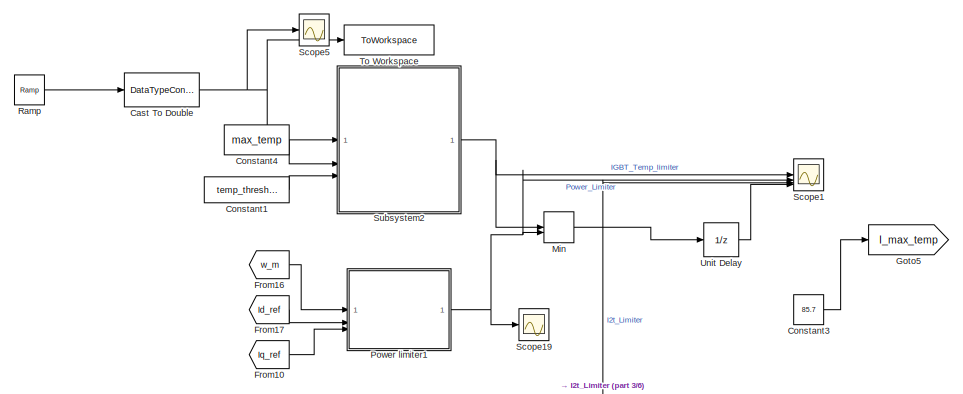
[diagram: root canvas - part 1/6, top center region]
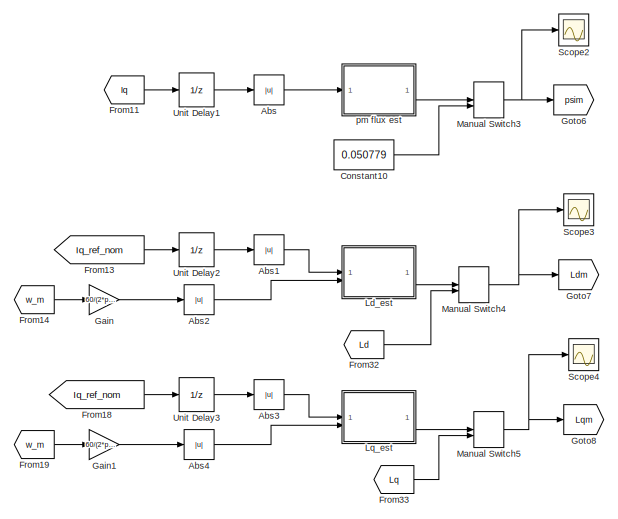
[diagram: root canvas - part 2/6, top left region]
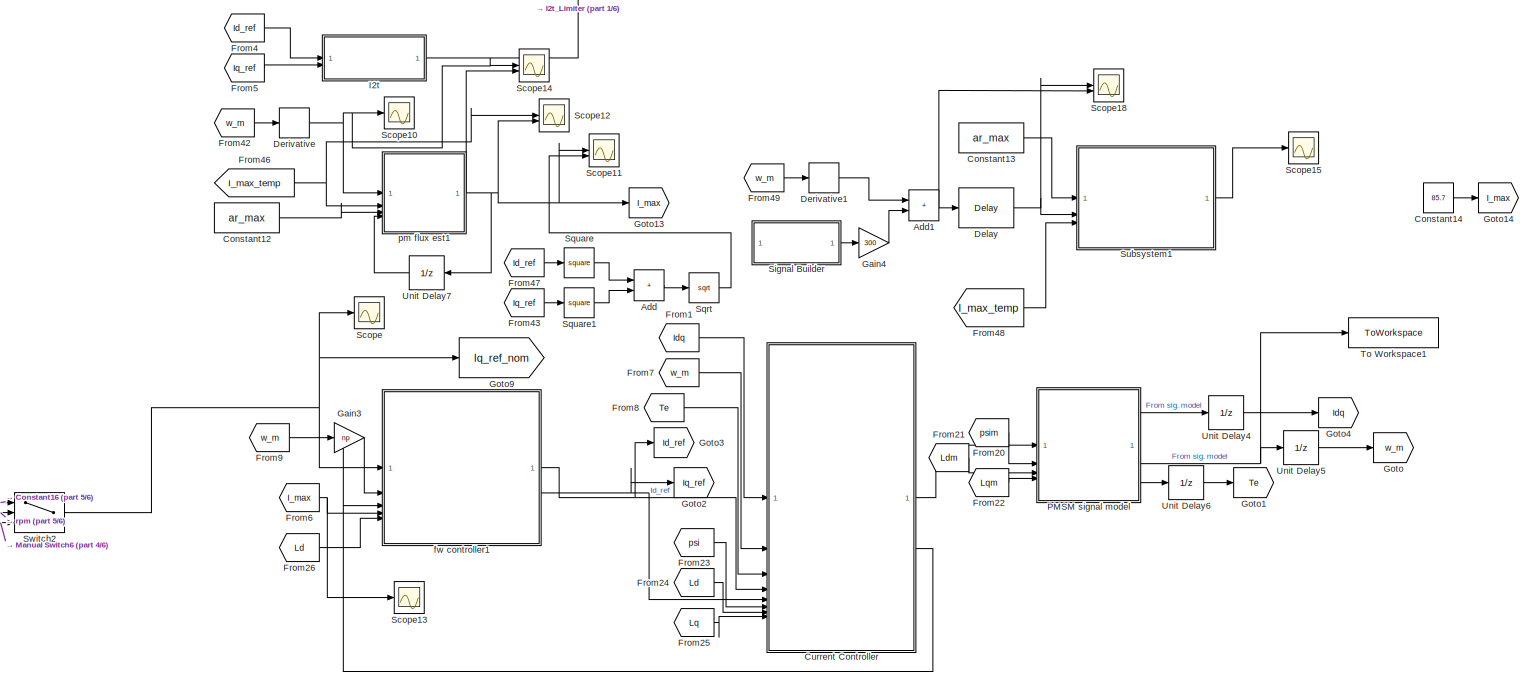
[diagram: root canvas - part 3/6, middle right region]
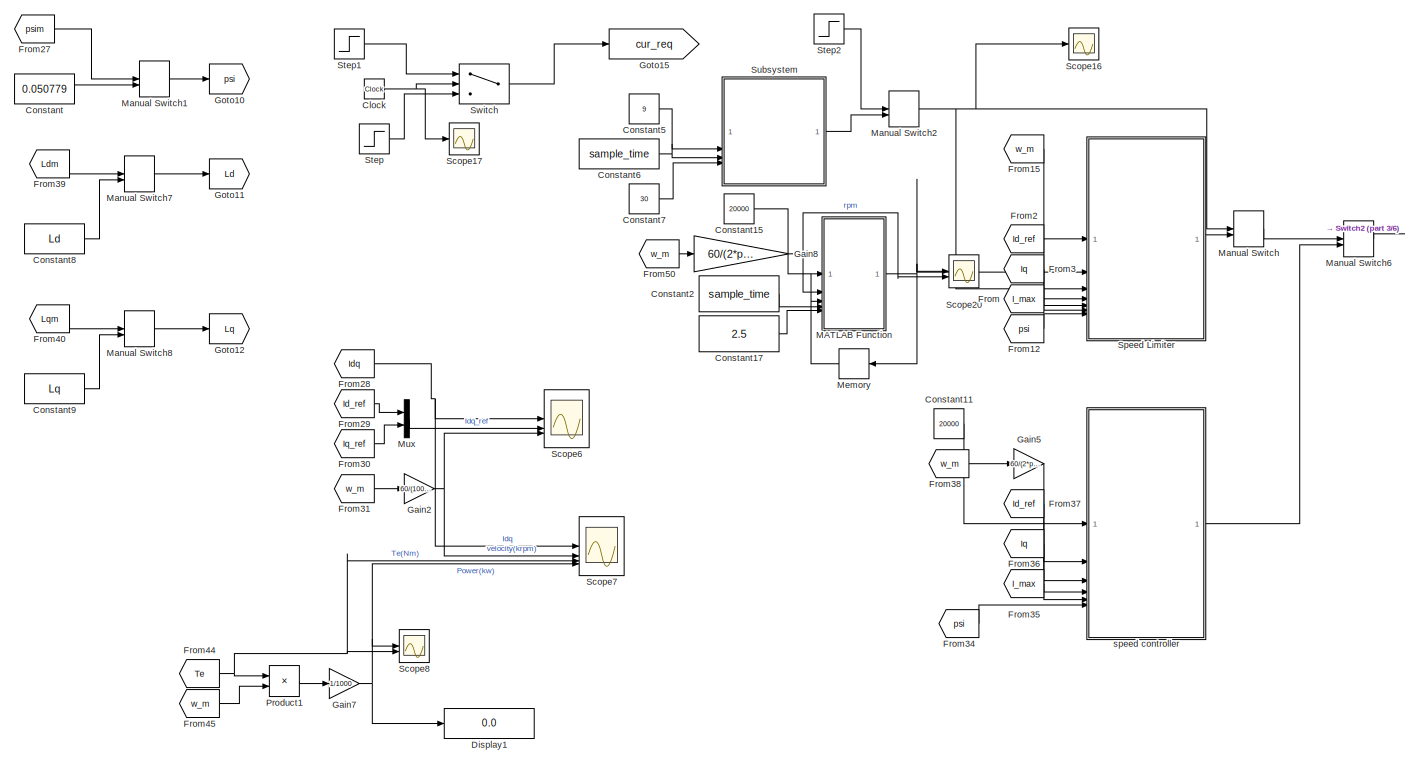
[diagram: root canvas - part 4/6, middle left region]
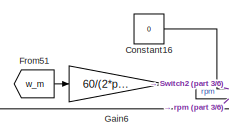
[diagram: root canvas - part 5/6, central region]
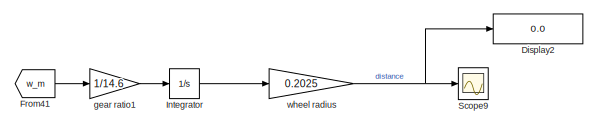
[diagram: root canvas - part 6/6, bottom left region]
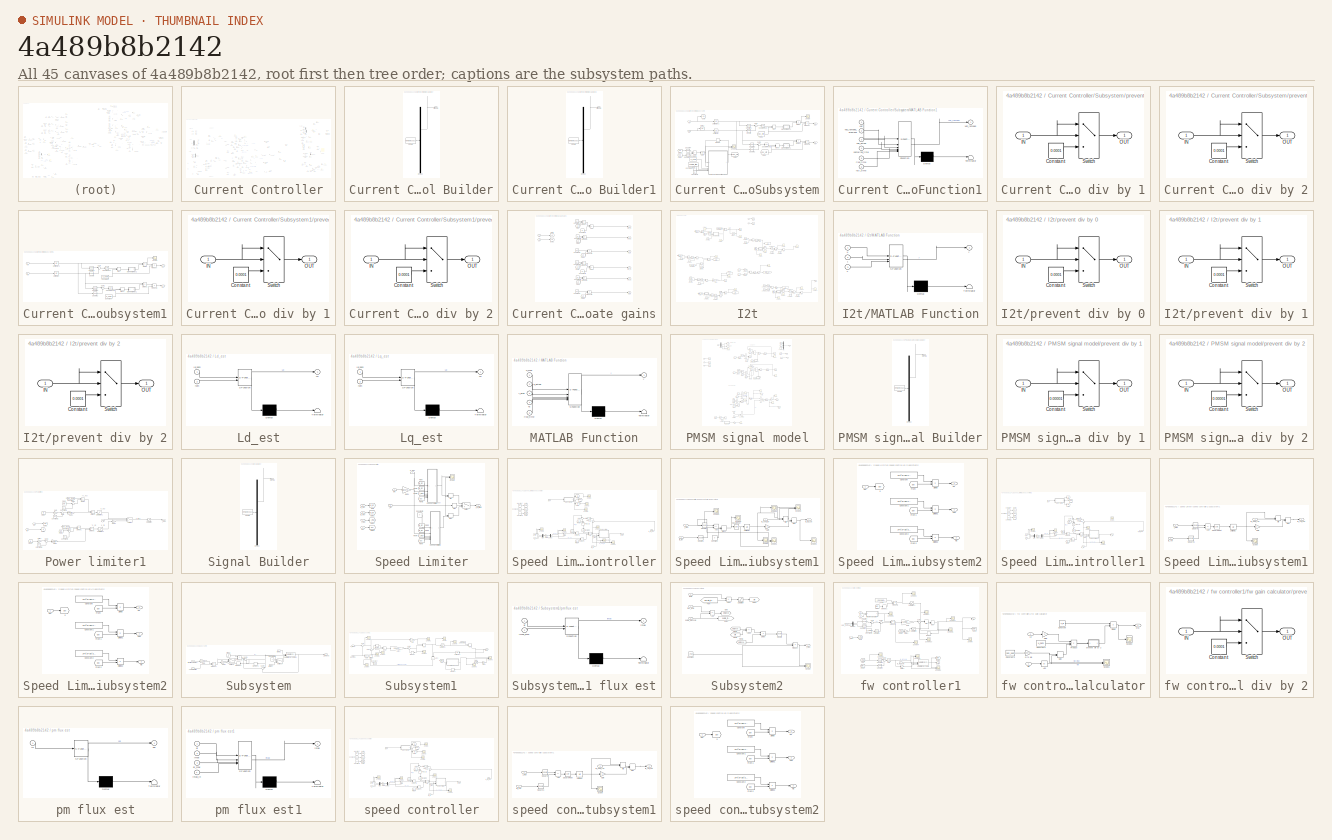
[diagram: thumbnail index - all 45 canvases of the model, root first then tree order]
MODEL slx_4a489b8b2142
KIND model
CONFIG AbsTol = auto
CONFIG EnableMultiTasking = off
CONFIG FixedStep = 1e-6
CONFIG MaxStep = 1e-5
CONFIG MinStep = 1e-6
CONFIG RelTol = 1e-3
CONFIG SampleTimeConstraint = Unconstrained
CONFIG SolverName = FixedStepAuto
CONFIG StartTime = 0.0
CONFIG StopTime = 4
BLOCK [Abs] Abs
  Commented = on
  SaturateOnIntegerOverflow = off
BLOCK [Abs] Abs1
  SaturateOnIntegerOverflow = off
BLOCK [Abs] Abs2
  SaturateOnIntegerOverflow = off
BLOCK [Abs] Abs3
  SaturateOnIntegerOverflow = off
BLOCK [Abs] Abs4
  SaturateOnIntegerOverflow = off
BLOCK [Sum] Add
  Commented = on
  IconShape = rectangular
BLOCK [Sum] Add1
  Commented = on
  IconShape = rectangular
BLOCK [DataTypeConversion] Cast To Double
  OutDataTypeStr = double
  RndMeth = Floor
  SaturateOnIntegerOverflow = off
BLOCK [Clock] Clock
  Commented = on
BLOCK [Constant] Constant
  Value = 0.050779
BLOCK [Constant] Constant1
  Value = temp_threshold
BLOCK [Constant] Constant10
  Value = 0.050779
BLOCK [Constant] Constant11
  Value = 20000
BLOCK [Constant] Constant12
  Commented = on
  Value = ar_max
BLOCK [Constant] Constant13
  Commented = on
  Value = ar_max
BLOCK [Constant] Constant14
  Value = 85.7
BLOCK [Constant] Constant15
  Value = 20000
BLOCK [Constant] Constant16
  Value = 0
BLOCK [Constant] Constant17
  Value = 2.5
BLOCK [Constant] Constant2
  Value = sample_time
BLOCK [Constant] Constant3
  Value = 85.7
BLOCK [Constant] Constant4
  Value = max_temp
BLOCK [Constant] Constant5
  Commented = on
  Value = 9
BLOCK [Constant] Constant6
  Commented = on
  Value = sample_time
BLOCK [Constant] Constant7
  Commented = on
  Value = 30
BLOCK [Constant] Constant8
  Value = Ld
BLOCK [Constant] Constant9
  Value = Lq
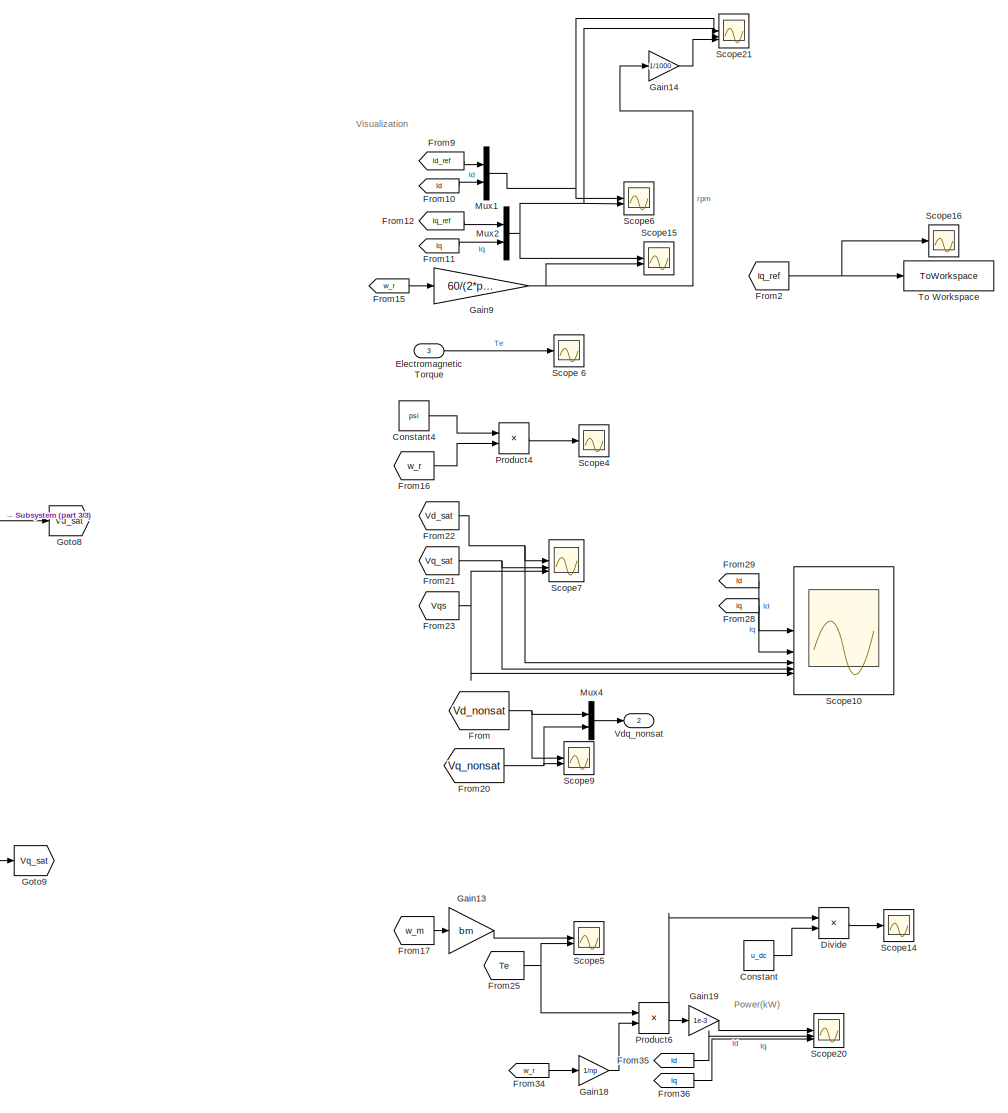
[diagram: Current Controller - part 1/3, right side, full height]
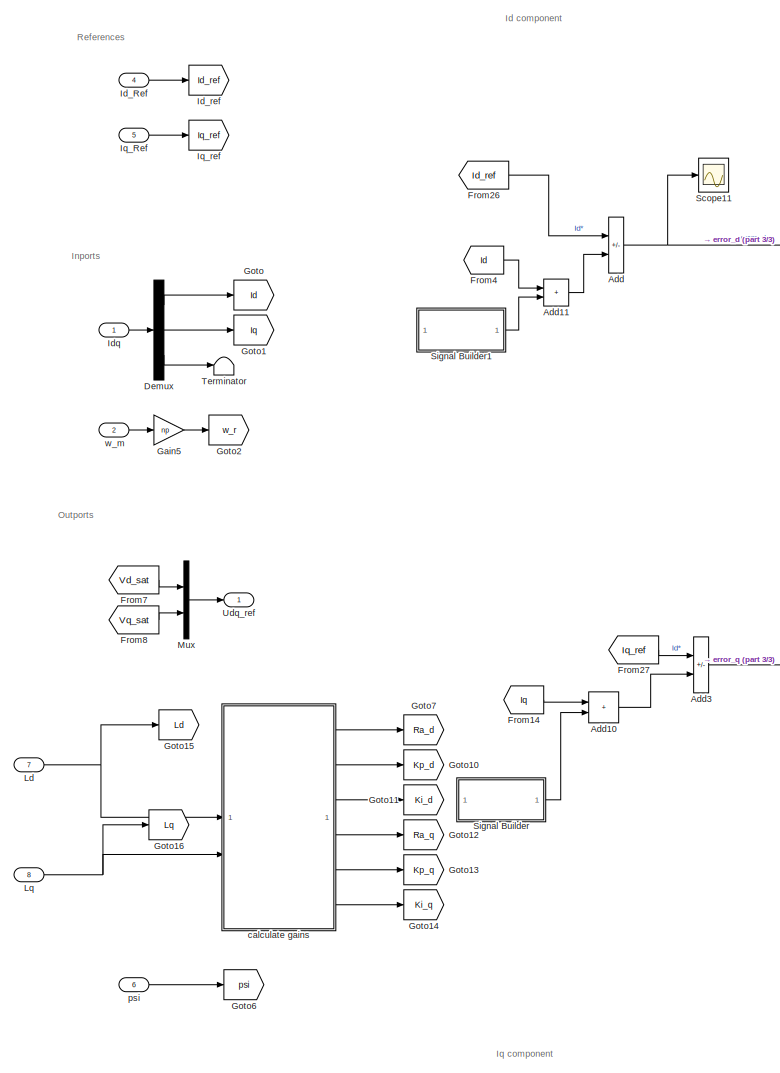
[diagram: Current Controller - part 2/3, left side, full height]
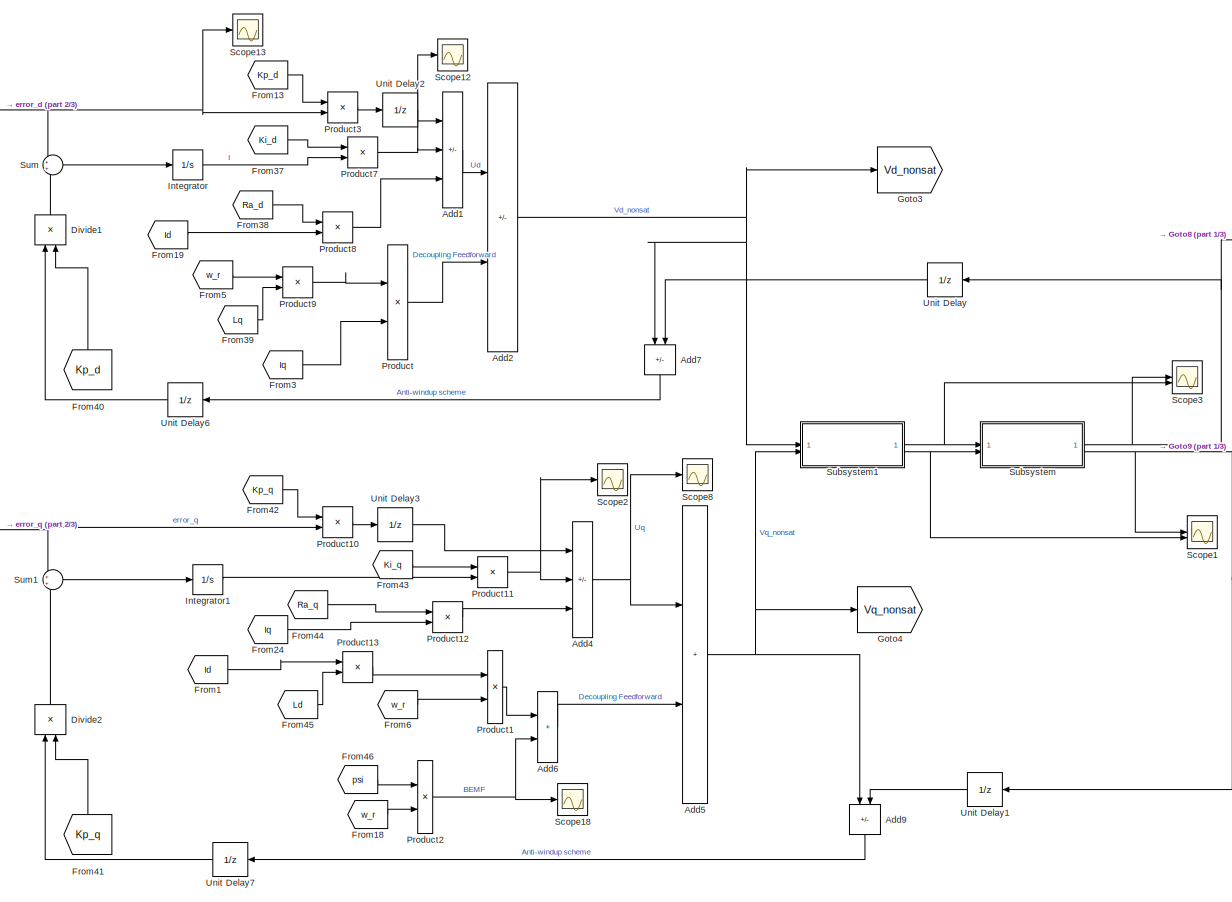
[diagram: Current Controller - part 3/3, central region]
BLOCK [SubSystem] Current Controller
BLOCK [Sum] Current Controller/Add
  IconShape = rectangular
  Inputs = +-
BLOCK [Sum] Current Controller/Add1
  IconShape = rectangular
  Inputs = ++-
BLOCK [Sum] Current Controller/Add10
  IconShape = rectangular
BLOCK [Sum] Current Controller/Add11
  IconShape = rectangular
BLOCK [Sum] Current Controller/Add2
  IconShape = rectangular
  Inputs = +-
BLOCK [Sum] Current Controller/Add3
  IconShape = rectangular
  Inputs = +-
BLOCK [Sum] Current Controller/Add4
  IconShape = rectangular
  Inputs = ++-
BLOCK [Sum] Current Controller/Add5
  IconShape = rectangular
BLOCK [Sum] Current Controller/Add6
  IconShape = rectangular
BLOCK [Sum] Current Controller/Add7
  IconShape = rectangular
  Inputs = -+
  NameLocation = left
BLOCK [Sum] Current Controller/Add9
  IconShape = rectangular
  Inputs = -+
  NameLocation = left
BLOCK [Constant] Current Controller/Constant
  Value = u_dc
BLOCK [Constant] Current Controller/Constant4
  Value = psi
BLOCK [Demux] Current Controller/Demux
  Outputs = 3
BLOCK [Product] Current Controller/Divide
  Inputs = */
BLOCK [Product] Current Controller/Divide1
  Inputs = */
  NameLocation = right
BLOCK [Product] Current Controller/Divide2
  Inputs = */
  NameLocation = right
BLOCK [Inport] Current Controller/Electromagnetic Torque
  Port = 3
BLOCK [From] Current Controller/From
  GotoTag = Vd_nonsat
  TagVisibility = global
BLOCK [From] Current Controller/From1
  GotoTag = Id
BLOCK [From] Current Controller/From10
  GotoTag = Id
BLOCK [From] Current Controller/From11
  GotoTag = Iq
BLOCK [From] Current Controller/From12
  GotoTag = Iq_ref
BLOCK [From] Current Controller/From13
  GotoTag = Kp_d
BLOCK [From] Current Controller/From14
  GotoTag = Iq
BLOCK [From] Current Controller/From15
  GotoTag = w_r
BLOCK [From] Current Controller/From16
  GotoTag = w_r
BLOCK [From] Current Controller/From17
  GotoTag = w_m
  TagVisibility = global
BLOCK [From] Current Controller/From18
  GotoTag = w_r
BLOCK [From] Current Controller/From19
  GotoTag = Id
BLOCK [From] Current Controller/From2
  GotoTag = Iq_ref
BLOCK [From] Current Controller/From20
  GotoTag = Vq_nonsat
  TagVisibility = global
BLOCK [From] Current Controller/From21
  GotoTag = Vq_sat
BLOCK [From] Current Controller/From22
  GotoTag = Vd_sat
BLOCK [From] Current Controller/From23
  GotoTag = Vqs
BLOCK [From] Current Controller/From24
  GotoTag = Iq
BLOCK [From] Current Controller/From25
  GotoTag = Te
  TagVisibility = global
BLOCK [From] Current Controller/From26
  GotoTag = Id_ref
BLOCK [From] Current Controller/From27
  GotoTag = Iq_ref
BLOCK [From] Current Controller/From28
  GotoTag = Iq
BLOCK [From] Current Controller/From29
  GotoTag = Id
BLOCK [From] Current Controller/From3
  GotoTag = Iq
BLOCK [From] Current Controller/From34
  GotoTag = w_r
BLOCK [From] Current Controller/From35
  GotoTag = Id
BLOCK [From] Current Controller/From36
  GotoTag = Iq
BLOCK [From] Current Controller/From37
  GotoTag = Ki_d
BLOCK [From] Current Controller/From38
  GotoTag = Ra_d
BLOCK [From] Current Controller/From39
  GotoTag = Lq
BLOCK [From] Current Controller/From4
  GotoTag = Id
BLOCK [From] Current Controller/From40
  GotoTag = Kp_d
  NameLocation = left
BLOCK [From] Current Controller/From41
  GotoTag = Kp_q
  NameLocation = left
BLOCK [From] Current Controller/From42
  GotoTag = Kp_q
BLOCK [From] Current Controller/From43
  GotoTag = Ki_q
BLOCK [From] Current Controller/From44
  GotoTag = Ra_q
BLOCK [From] Current Controller/From45
  GotoTag = Ld
BLOCK [From] Current Controller/From46
  GotoTag = psi
BLOCK [From] Current Controller/From5
  GotoTag = w_r
BLOCK [From] Current Controller/From6
  GotoTag = w_r
BLOCK [From] Current Controller/From7
  GotoTag = Vd_sat
BLOCK [From] Current Controller/From8
  GotoTag = Vq_sat
BLOCK [From] Current Controller/From9
  GotoTag = Id_ref
BLOCK [Gain] Current Controller/Gain13
  Gain = bm
BLOCK [Gain] Current Controller/Gain14
  Gain = 1/1000
BLOCK [Gain] Current Controller/Gain18
  Gain = 1/np
BLOCK [Gain] Current Controller/Gain19
  Gain = 1e-3
BLOCK [Gain] Current Controller/Gain5
  Gain = np
BLOCK [Gain] Current Controller/Gain9
  Gain = 60/(2*pi*np)
BLOCK [Goto] Current Controller/Goto
  GotoTag = Id
BLOCK [Goto] Current Controller/Goto1
  GotoTag = Iq
BLOCK [Goto] Current Controller/Goto10
  GotoTag = Kp_d
BLOCK [Goto] Current Controller/Goto11
  GotoTag = Ki_d
BLOCK [Goto] Current Controller/Goto12
  GotoTag = Ra_q
BLOCK [Goto] Current Controller/Goto13
  GotoTag = Kp_q
BLOCK [Goto] Current Controller/Goto14
  GotoTag = Ki_q
BLOCK [Goto] Current Controller/Goto15
  GotoTag = Ld
BLOCK [Goto] Current Controller/Goto16
  GotoTag = Lq
BLOCK [Goto] Current Controller/Goto2
  GotoTag = w_r
BLOCK [Goto] Current Controller/Goto3
  GotoTag = Vd_nonsat
  TagVisibility = global
BLOCK [Goto] Current Controller/Goto4
  GotoTag = Vq_nonsat
  TagVisibility = global
BLOCK [Goto] Current Controller/Goto6
  GotoTag = psi
BLOCK [Goto] Current Controller/Goto7
  GotoTag = Ra_d
BLOCK [Goto] Current Controller/Goto8
  GotoTag = Vd_sat
BLOCK [Goto] Current Controller/Goto9
  GotoTag = Vq_sat
BLOCK [Inport] Current Controller/Id_Ref
  Port = 4
BLOCK [Goto] Current Controller/Id_ref
  GotoTag = Id_ref
BLOCK [Inport] Current Controller/Idq
BLOCK [Integrator] Current Controller/Integrator
BLOCK [Integrator] Current Controller/Integrator1
BLOCK [Inport] Current Controller/Iq_Ref
  Port = 5
BLOCK [Goto] Current Controller/Iq_ref
  GotoTag = Iq_ref
BLOCK [Inport] Current Controller/Ld
  Port = 7
BLOCK [Inport] Current Controller/Lq
  Port = 8
BLOCK [Mux] Current Controller/Mux
  DisplayOption = bar
  Inputs = 2
BLOCK [Mux] Current Controller/Mux1
  DisplayOption = bar
  Inputs = 2
BLOCK [Mux] Current Controller/Mux2
  DisplayOption = bar
  Inputs = 2
BLOCK [Mux] Current Controller/Mux4
  DisplayOption = bar
  Inputs = 2
BLOCK [Product] Current Controller/Product
BLOCK [Product] Current Controller/Product1
BLOCK [Product] Current Controller/Product10
BLOCK [Product] Current Controller/Product11
BLOCK [Product] Current Controller/Product12
BLOCK [Product] Current Controller/Product13
BLOCK [Product] Current Controller/Product2
BLOCK [Product] Current Controller/Product3
BLOCK [Product] Current Controller/Product4
BLOCK [Product] Current Controller/Product6
BLOCK [Product] Current Controller/Product7
BLOCK [Product] Current Controller/Product8
BLOCK [Product] Current Controller/Product9
BLOCK [Scope] Current Controller/Scope 6
  Floating = off
  NumInputPorts = 1
  ScopeSpecificationString = Simulink.scopes.TimeScopeBlockCfg('CurrentConfiguration', extmgr.ConfigurationSet(extmgr.Configuration('Core','General UI',true),extmgr.Configuration('Core','Source UI',true),extmgr.Configuration('Sources','WiredSimulink',true,'DataLoggingVariableName','ScopeData6'),extmgr.Configuration('Visuals','Time Domain',true,'SerializedDisplays',{struct('MinYLimReal','-14.57819','MaxYLimReal','131.20375','Y...<+1854ch>
BLOCK [Scope] Current Controller/Scope1
  Floating = off
  NumInputPorts = 2
  ScopeSpecificationString = Simulink.scopes.TimeScopeBlockCfg('CurrentConfiguration', extmgr.ConfigurationSet(extmgr.Configuration('Core','General UI',true),extmgr.Configuration('Core','Source UI',true),extmgr.Configuration('Sources','WiredSimulink',true,'DataLoggingVariableName','ScopeData2'),extmgr.Configuration('Visuals','Time Domain',true,'SerializedDisplays',{struct('MinYLimReal','517.59961','MaxYLimReal','517.61073','Y...<+1882ch>
BLOCK [Scope] Current Controller/Scope10
  Floating = off
  NumInputPorts = 5
  ScopeSpecificationString = Simulink.scopes.TimeScopeBlockCfg('CurrentConfiguration', extmgr.ConfigurationSet(extmgr.Configuration('Core','General UI',true),extmgr.Configuration('Core','Source UI',true),extmgr.Configuration('Sources','WiredSimulink',true,'DataLoggingVariableName','ScopeData3'),extmgr.Configuration('Visuals','Time Domain',true,'SerializedDisplays',{struct('MinYLimReal','-2.50223','MaxYLimReal','6.06651','YLab...<+1989ch>
BLOCK [Scope] Current Controller/Scope11
  Floating = off
  NumInputPorts = 1
  ScopeSpecificationString = Simulink.scopes.TimeScopeBlockCfg('CurrentConfiguration', extmgr.ConfigurationSet(extmgr.Configuration('Core','General UI',true),extmgr.Configuration('Core','Source UI',true),extmgr.Configuration('Sources','WiredSimulink',true,'DataLoggingVariableName','ScopeData2'),extmgr.Configuration('Visuals','Time Domain',true,'SerializedDisplays',{struct('MinYLimReal','-0.0000000000005','MaxYLimReal','0.0000...<+1803ch>
BLOCK [Scope] Current Controller/Scope12
  Floating = off
  NumInputPorts = 1
  ScopeSpecificationString = Simulink.scopes.TimeScopeBlockCfg('CurrentConfiguration', extmgr.ConfigurationSet(extmgr.Configuration('Core','General UI',true),extmgr.Configuration('Core','Source UI',true),extmgr.Configuration('Sources','WiredSimulink',true,'DataLoggingVariableName','ScopeData1'),extmgr.Configuration('Visuals','Time Domain',true,'SerializedDisplays',{struct('MinYLimReal','-94.98776','MaxYLimReal','12.89536','YL...<+1453ch>
BLOCK [Scope] Current Controller/Scope13
  Floating = off
  NumInputPorts = 1
  ScopeSpecificationString = Simulink.scopes.TimeScopeBlockCfg('CurrentConfiguration', extmgr.ConfigurationSet(extmgr.Configuration('Core','General UI',true),extmgr.Configuration('Core','Source UI',true),extmgr.Configuration('Sources','WiredSimulink',true,'DataLoggingVariableName','ScopeData4'),extmgr.Configuration('Visuals','Time Domain',true,'SerializedDisplays',{struct('MinYLimReal','-43.48201','MaxYLimReal','4.83133','YLa...<+1441ch>
BLOCK [Scope] Current Controller/Scope14
  Floating = off
  NumInputPorts = 1
  ScopeSpecificationString = Simulink.scopes.TimeScopeBlockCfg('CurrentConfiguration', extmgr.ConfigurationSet(extmgr.Configuration('Core','General UI',true),extmgr.Configuration('Core','Source UI',true),extmgr.Configuration('Sources','WiredSimulink',true,'DataLoggingVariableName','ScopeData2'),extmgr.Configuration('Visuals','Time Domain',true,'SerializedDisplays',{struct('MinYLimReal','-96.83067','MaxYLimReal','145.26869','Y...<+1471ch>
BLOCK [Scope] Current Controller/Scope15
  Floating = off
  NumInputPorts = 2
  ScopeSpecificationString = Simulink.scopes.TimeScopeBlockCfg('CurrentConfiguration', extmgr.ConfigurationSet(extmgr.Configuration('Core','General UI',true),extmgr.Configuration('Core','Source UI',true),extmgr.Configuration('Sources','WiredSimulink',true,'DataLoggingVariableName','ScopeData3'),extmgr.Configuration('Visuals','Time Domain',true,'SerializedDisplays',{struct('MinYLimReal','-2927.81278','MaxYLimReal','23788.45841...<+1955ch>
BLOCK [Scope] Current Controller/Scope16
  Floating = off
  NumInputPorts = 1
  ScopeSpecificationString = Simulink.scopes.TimeScopeBlockCfg('CurrentConfiguration', extmgr.ConfigurationSet(extmgr.Configuration('Core','General UI',true),extmgr.Configuration('Core','Source UI',true),extmgr.Configuration('Sources','WiredSimulink',true,'DataLoggingVariableName','ScopeData10'),extmgr.Configuration('Visuals','Time Domain',true,'SerializedDisplays',{struct('MinYLimReal','-12.5','MaxYLimReal','112.5','YLabelRe...<+1504ch>
BLOCK [Scope] Current Controller/Scope18
  Floating = off
  NumInputPorts = 1
  ScopeSpecificationString = Simulink.scopes.TimeScopeBlockCfg('CurrentConfiguration', extmgr.ConfigurationSet(extmgr.Configuration('Core','General UI',true),extmgr.Configuration('Core','Source UI',true),extmgr.Configuration('Sources','WiredSimulink',true,'DataLoggingVariableName','ScopeData5'),extmgr.Configuration('Visuals','Time Domain',true,'SerializedDisplays',{struct('MinYLimReal','-61.10442','MaxYLimReal','549.93981','Y...<+1576ch>
BLOCK [Scope] Current Controller/Scope2
  Floating = off
  NumInputPorts = 1
  ScopeSpecificationString = Simulink.scopes.TimeScopeBlockCfg('CurrentConfiguration', extmgr.ConfigurationSet(extmgr.Configuration('Core','General UI',true),extmgr.Configuration('Core','Source UI',true),extmgr.Configuration('Sources','WiredSimulink',true,'DataLoggingVariableName','ScopeData1'),extmgr.Configuration('Visuals','Time Domain',true,'SerializedDisplays',{struct('MinYLimReal','-11.95621','MaxYLimReal','107.60588','Y...<+1430ch>
BLOCK [Scope] Current Controller/Scope20
  Floating = off
  NumInputPorts = 3
  ScopeSpecificationString = Simulink.scopes.TimeScopeBlockCfg('CurrentConfiguration', extmgr.ConfigurationSet(extmgr.Configuration('Core','General UI',true),extmgr.Configuration('Core','Source UI',true),extmgr.Configuration('Sources','WiredSimulink',true,'DataLoggingVariableName','ScopeData3'),extmgr.Configuration('Visuals','Time Domain',true,'SerializedDisplays',{struct('MinYLimReal','-175.01281','MaxYLimReal','184.37925','...<+1902ch>
BLOCK [Scope] Current Controller/Scope21
  Floating = off
  NumInputPorts = 3
  ScopeSpecificationString = Simulink.scopes.TimeScopeBlockCfg('CurrentConfiguration', extmgr.ConfigurationSet(extmgr.Configuration('Core','General UI',true),extmgr.Configuration('Core','Source UI',true),extmgr.Configuration('Sources','WiredSimulink',true,'DataLoggingVariableName','ScopeData5'),extmgr.Configuration('Visuals','Time Domain',true,'SerializedDisplays',{struct('MinYLimReal','-45.77721','MaxYLimReal','98.07551','YL...<+1927ch>
BLOCK [Scope] Current Controller/Scope3
  Floating = off
  NumInputPorts = 2
  ScopeSpecificationString = Simulink.scopes.TimeScopeBlockCfg('CurrentConfiguration', extmgr.ConfigurationSet(extmgr.Configuration('Core','General UI',true),extmgr.Configuration('Core','Source UI',true),extmgr.Configuration('Sources','WiredSimulink',true,'DataLoggingVariableName','ScopeData3'),extmgr.Configuration('Visuals','Time Domain',true,'SerializedDisplays',{struct('MinYLimReal','-206.60555','MaxYLimReal','500.20932','...<+1836ch>
BLOCK [Scope] Current Controller/Scope4
  Floating = off
  NumInputPorts = 1
  ScopeSpecificationString = Simulink.scopes.TimeScopeBlockCfg('CurrentConfiguration', extmgr.ConfigurationSet(extmgr.Configuration('Core','General UI',true),extmgr.Configuration('Core','Source UI',true),extmgr.Configuration('Sources','WiredSimulink',true,'DataLoggingVariableName','ScopeData8'),extmgr.Configuration('Visuals','Time Domain',true,'SerializedDisplays',{struct('MinYLimReal','-4.59536','MaxYLimReal','41.35823','YLa...<+1765ch>
BLOCK [Scope] Current Controller/Scope5
  Floating = off
  NumInputPorts = 2
  ScopeSpecificationString = Simulink.scopes.TimeScopeBlockCfg('CurrentConfiguration', extmgr.ConfigurationSet(extmgr.Configuration('Core','General UI',true),extmgr.Configuration('Core','Source UI',true),extmgr.Configuration('Sources','WiredSimulink',true,'DataLoggingVariableName','ScopeData3'),extmgr.Configuration('Visuals','Time Domain',true,'SerializedDisplays',{struct('MinYLimReal','-2.89763','MaxYLimReal','26.07866','YLa...<+1850ch>
BLOCK [Scope] Current Controller/Scope6
  Floating = off
  NumInputPorts = 2
  ScopeSpecificationString = Simulink.scopes.TimeScopeBlockCfg('CurrentConfiguration', extmgr.ConfigurationSet(extmgr.Configuration('Core','General UI',true),extmgr.Configuration('Core','Source UI',true),extmgr.Configuration('Sources','WiredSimulink',true,'DataLoggingVariableName','ScopeData1'),extmgr.Configuration('Visuals','Time Domain',true,'SerializedDisplays',{struct('MinYLimReal','-27.59451','MaxYLimReal','89.96127','YL...<+1915ch>
BLOCK [Scope] Current Controller/Scope7
  Floating = off
  NumInputPorts = 3
  ScopeSpecificationString = Simulink.scopes.TimeScopeBlockCfg('CurrentConfiguration', extmgr.ConfigurationSet(extmgr.Configuration('Core','General UI',true),extmgr.Configuration('Core','Source UI',true),extmgr.Configuration('Sources','WiredSimulink',true,'DataLoggingVariableName','ScopeData2'),extmgr.Configuration('Visuals','Time Domain',true,'SerializedDisplays',{struct('MinYLimReal','-271.93391','MaxYLimReal','580.21488','...<+1906ch>
BLOCK [Scope] Current Controller/Scope8
  Floating = off
  NumInputPorts = 1
  ScopeSpecificationString = Simulink.scopes.TimeScopeBlockCfg('CurrentConfiguration', extmgr.ConfigurationSet(extmgr.Configuration('Core','General UI',true),extmgr.Configuration('Core','Source UI',true),extmgr.Configuration('Sources','WiredSimulink',true,'DataLoggingVariableName','ScopeData2'),extmgr.Configuration('Visuals','Time Domain',true,'SerializedDisplays',{struct('MinYLimReal','-12.2665','MaxYLimReal','110.39853','YL...<+1398ch>
BLOCK [Scope] Current Controller/Scope9
  Floating = off
  NumInputPorts = 2
  ScopeSpecificationString = Simulink.scopes.TimeScopeBlockCfg('CurrentConfiguration', extmgr.ConfigurationSet(extmgr.Configuration('Core','General UI',true),extmgr.Configuration('Core','Source UI',true),extmgr.Configuration('Sources','WiredSimulink',true,'DataLoggingVariableName','ScopeData4'),extmgr.Configuration('Visuals','Time Domain',true,'SerializedDisplays',{struct('MinYLimReal','-206.60555','MaxYLimReal','500.20932','...<+1836ch>
BLOCK [SubSystem] Current Controller/Signal Builder
  ClipboardFcn = sigbuilder_block('clipboard');
  CloseFcn = sigbuilder_block('close');
  ContinueFcn = sigbuilder_block('continue');
  CopyFcn = sigbuilder_block('copy');
  DeleteFcn = sigbuilder_block('delete');
  LoadFcn = sigbuilder_block('load');
  MaskHideContents = on
  ModelCloseFcn = sigbuilder_block('modelClose');
  NameChangeFcn = sigbuilder_block('namechange');
  OpenFcn = sigbuilder_block('open',[437.6 199.2 550.4 400 ]);
  PauseFcn = sigbuilder_block('pause');
  PreSaveFcn = sigbuilder_block('preSave');
  StartFcn = sigbuilder_block('start');
  StopFcn = sigbuilder_block('stop');
  Tag = STV Subsys
BLOCK [Demux] Current Controller/Signal Builder/Demux
  DisplayOption = none
  Outputs = 1
  Tag = STV Demux
BLOCK [FromWorkspace] Current Controller/Signal Builder/FromWs
  Tag = STV FromWs
  VariableName = tuvar
BLOCK [Outport] Current Controller/Signal Builder/Signal 2
  Tag = STV Outport
BLOCK [SubSystem] Current Controller/Signal Builder1
  ClipboardFcn = sigbuilder_block('clipboard');
  CloseFcn = sigbuilder_block('close');
  ContinueFcn = sigbuilder_block('continue');
  CopyFcn = sigbuilder_block('copy');
  DeleteFcn = sigbuilder_block('delete');
  LoadFcn = sigbuilder_block('load');
  MaskHideContents = on
  ModelCloseFcn = sigbuilder_block('modelClose');
  NameChangeFcn = sigbuilder_block('namechange');
  OpenFcn = sigbuilder_block('open',[437.6 199.2 550.4 400 ]);
  PauseFcn = sigbuilder_block('pause');
  PreSaveFcn = sigbuilder_block('preSave');
  StartFcn = sigbuilder_block('start');
  StopFcn = sigbuilder_block('stop');
  Tag = STV Subsys
BLOCK [Demux] Current Controller/Signal Builder1/Demux
  DisplayOption = none
  Outputs = 1
  Tag = STV Demux
BLOCK [FromWorkspace] Current Controller/Signal Builder1/FromWs
  Tag = STV FromWs
  VariableName = tuvar
BLOCK [Outport] Current Controller/Signal Builder1/Signal 2
  Tag = STV Outport
BLOCK [SubSystem] Current Controller/Subsystem
BLOCK [Sum] Current Controller/Subsystem/Add
  IconShape = rectangular
BLOCK [Constant] Current Controller/Subsystem/Constant1
  Value = sample_time
BLOCK [Constant] Current Controller/Subsystem/Constant2
  Value = u_nom
BLOCK [Constant] Current Controller/Subsystem/Constant3
  Value = 1.5
BLOCK [Constant] Current Controller/Subsystem/Constant4
  Value = 0.1
BLOCK [Product] Current Controller/Subsystem/Divide
  Inputs = */
BLOCK [Product] Current Controller/Subsystem/Divide1
  Inputs = */
BLOCK [From] Current Controller/Subsystem/From
  GotoTag = Vd
BLOCK [From] Current Controller/Subsystem/From1
  GotoTag = Vq
BLOCK [From] Current Controller/Subsystem/From2
  GotoTag = vdc_vrtl
BLOCK [From] Current Controller/Subsystem/From3
  GotoTag = vdc_vrtl
BLOCK [Goto] Current Controller/Subsystem/Goto
  GotoTag = Vd
BLOCK [Goto] Current Controller/Subsystem/Goto1
  GotoTag = Vq
BLOCK [Goto] Current Controller/Subsystem/Goto2
  GotoTag = vdc_vrtl
BLOCK [SubSystem] Current Controller/Subsystem/MATLAB Function1
  ErrorFcn = Stateflow.Translate.translate
  LibrarySourceBlock = simulink/User-Defined\nFunctions/MATLAB Function
  PermitHierarchicalResolution = ExplicitOnly
  SFBlockType = MATLAB Function
  TreatAsAtomicUnit = on
BLOCK [Demux] Current Controller/Subsystem/MATLAB Function1/ Demux 
  Outputs = 1
BLOCK [S-Function] Current Controller/Subsystem/MATLAB Function1/ SFunction 
  EnableBusSupport = on
  FunctionName = sf_sfun
  PortCounts = [6 2]
  SFcnIsStateOwnerBlock = off
  SFunctionDeploymentMode = off
  Tag = Stateflow S-Function 7
BLOCK [Terminator] Current Controller/Subsystem/MATLAB Function1/ Terminator 
BLOCK [Inport] Current Controller/Subsystem/MATLAB Function1/fall_time
  Port = 6
BLOCK [Inport] Current Controller/Subsystem/MATLAB Function1/rise_time
  Port = 5
BLOCK [Inport] Current Controller/Subsystem/MATLAB Function1/sampling_time
  Port = 4
BLOCK [Inport] Current Controller/Subsystem/MATLAB Function1/vdc
BLOCK [Inport] Current Controller/Subsystem/MATLAB Function1/vdc_actual
  Port = 3
BLOCK [Outport] Current Controller/Subsystem/MATLAB Function1/vdc_ramped
BLOCK [Inport] Current Controller/Subsystem/MATLAB Function1/vdc_ramped_previous
  Port = 2
BLOCK [MinMax] Current Controller/Subsystem/Max
  Function = max
  Inputs = 2
BLOCK [MinMax] Current Controller/Subsystem/Max1
  Function = max
  Inputs = 2
BLOCK [Memory] Current Controller/Subsystem/Memory
BLOCK [Product] Current Controller/Subsystem/Product
BLOCK [Product] Current Controller/Subsystem/Product1
BLOCK [Scope] Current Controller/Subsystem/Scope
  Floating = off
  NumInputPorts = 1
  ScopeSpecificationString = Simulink.scopes.TimeScopeBlockCfg('CurrentConfiguration', extmgr.ConfigurationSet(extmgr.Configuration('Core','General UI',true),extmgr.Configuration('Core','Source UI',true),extmgr.Configuration('Sources','WiredSimulink',true,'DataLoggingVariableName','ScopeData3'),extmgr.Configuration('Visuals','Time Domain',true,'SerializedDisplays',{struct('MinYLimReal','-0.03324','MaxYLimReal','0.74071','YLab...<+1407ch>
BLOCK [Scope] Current Controller/Subsystem/Scope1
  Floating = off
  NumInputPorts = 2
  ScopeSpecificationString = Simulink.scopes.TimeScopeBlockCfg('CurrentConfiguration', extmgr.ConfigurationSet(extmgr.Configuration('Core','General UI',true),extmgr.Configuration('Core','Source UI',true),extmgr.Configuration('Sources','WiredSimulink',true,'DataLoggingVariableName','ScopeData1'),extmgr.Configuration('Visuals','Time Domain',true,'SerializedDisplays',{struct('MinYLimReal','-68.75','MaxYLimReal','618.75','YLabelR...<+1470ch>
BLOCK [Sqrt] Current Controller/Subsystem/Sqrt
BLOCK [Math] Current Controller/Subsystem/Square
  Operator = square
BLOCK [Sqrt] Current Controller/Subsystem/Square Root
BLOCK [Sqrt] Current Controller/Subsystem/Square Root1
BLOCK [Math] Current Controller/Subsystem/Square1
  Operator = square
BLOCK [Math] Current Controller/Subsystem/Square2
  Operator = square
BLOCK [Math] Current Controller/Subsystem/Square3
  Operator = square
BLOCK [Math] Current Controller/Subsystem/Square4
  Operator = square
BLOCK [Math] Current Controller/Subsystem/Square5
  Operator = square
BLOCK [Sum] Current Controller/Subsystem/Sum
  Inputs = |++
BLOCK [Sum] Current Controller/Subsystem/Sum1
  Inputs = |++
BLOCK [UnitDelay] Current Controller/Subsystem/Unit Delay
  HasFrameUpgradeWarning = on
  SampleTime = -1
BLOCK [UnitDelay] Current Controller/Subsystem/Unit Delay1
  HasFrameUpgradeWarning = on
  SampleTime = -1
BLOCK [Inport] Current Controller/Subsystem/Vd
BLOCK [Outport] Current Controller/Subsystem/Vd\
BLOCK [Inport] Current Controller/Subsystem/Vq
  Port = 2
BLOCK [Outport] Current Controller/Subsystem/Vq\
  Port = 2
BLOCK [SubSystem] Current Controller/Subsystem/prevent div by 1
BLOCK [Constant] Current Controller/Subsystem/prevent div by 1/Constant
  Value = 0.0001
BLOCK [Inport] Current Controller/Subsystem/prevent div by 1/IN
BLOCK [Outport] Current Controller/Subsystem/prevent div by 1/OUT
  VectorParamsAs1DForOutWhenUnconnected = off
BLOCK [Switch] Current Controller/Subsystem/prevent div by 1/Switch
  Criteria = u2 > Threshold
  InputSameDT = off
  OutDataTypeStr = Inherit: Same as first input
  SaturateOnIntegerOverflow = off
  Threshold = 0.0001
BLOCK [SubSystem] Current Controller/Subsystem/prevent div by 2
BLOCK [Constant] Current Controller/Subsystem/prevent div by 2/Constant
  Value = 0.0001
BLOCK [Inport] Current Controller/Subsystem/prevent div by 2/IN
BLOCK [Outport] Current Controller/Subsystem/prevent div by 2/OUT
  VectorParamsAs1DForOutWhenUnconnected = off
BLOCK [Switch] Current Controller/Subsystem/prevent div by 2/Switch
  Criteria = u2 > Threshold
  InputSameDT = off
  OutDataTypeStr = Inherit: Same as first input
  SaturateOnIntegerOverflow = off
  Threshold = 0.0001
BLOCK [SubSystem] Current Controller/Subsystem1
BLOCK [Constant] Current Controller/Subsystem1/Constant
  Value = u_nom
BLOCK [Constant] Current Controller/Subsystem1/Constant1
  Value = u_nom
BLOCK [Product] Current Controller/Subsystem1/Divide
  Inputs = */
BLOCK [Product] Current Controller/Subsystem1/Divide1
  Inputs = */
BLOCK [MinMax] Current Controller/Subsystem1/Max
  Function = max
  Inputs = 2
BLOCK [MinMax] Current Controller/Subsystem1/Max1
  Function = max
  Inputs = 2
BLOCK [Product] Current Controller/Subsystem1/Product
BLOCK [Product] Current Controller/Subsystem1/Product1
BLOCK [Scope] Current Controller/Subsystem1/Scope
  Floating = off
  NumInputPorts = 1
  ScopeSpecificationString = Simulink.scopes.TimeScopeBlockCfg('CurrentConfiguration', extmgr.ConfigurationSet(extmgr.Configuration('Core','General UI',true),extmgr.Configuration('Core','Source UI',true),extmgr.Configuration('Sources','WiredSimulink',true,'DataLoggingVariableName','ScopeData3'),extmgr.Configuration('Visuals','Time Domain',true,'SerializedDisplays',{struct('MinYLimReal','-0.03324','MaxYLimReal','0.74071','YLab...<+1407ch>
BLOCK [Math] Current Controller/Subsystem1/Square
  Operator = square
BLOCK [Sqrt] Current Controller/Subsystem1/Square Root
BLOCK [Sqrt] Current Controller/Subsystem1/Square Root1
BLOCK [Math] Current Controller/Subsystem1/Square1
  Operator = square
BLOCK [Math] Current Controller/Subsystem1/Square2
  Operator = square
BLOCK [Math] Current Controller/Subsystem1/Square3
  Operator = square
BLOCK [Sum] Current Controller/Subsystem1/Sum
  Inputs = |++
BLOCK [Sum] Current Controller/Subsystem1/Sum1
  Inputs = |++
BLOCK [UnitDelay] Current Controller/Subsystem1/Unit Delay
  HasFrameUpgradeWarning = on
  SampleTime = -1
BLOCK [UnitDelay] Current Controller/Subsystem1/Unit Delay1
  HasFrameUpgradeWarning = on
  SampleTime = -1
BLOCK [Inport] Current Controller/Subsystem1/Vd
BLOCK [Outport] Current Controller/Subsystem1/Vd\
BLOCK [Inport] Current Controller/Subsystem1/Vq
  Port = 2
BLOCK [Outport] Current Controller/Subsystem1/Vq\
  Port = 2
BLOCK [SubSystem] Current Controller/Subsystem1/prevent div by 1
BLOCK [Constant] Current Controller/Subsystem1/prevent div by 1/Constant
  Value = 0.0001
BLOCK [Inport] Current Controller/Subsystem1/prevent div by 1/IN
BLOCK [Outport] Current Controller/Subsystem1/prevent div by 1/OUT
  VectorParamsAs1DForOutWhenUnconnected = off
BLOCK [Switch] Current Controller/Subsystem1/prevent div by 1/Switch
  Criteria = u2 > Threshold
  InputSameDT = off
  OutDataTypeStr = Inherit: Same as first input
  SaturateOnIntegerOverflow = off
  Threshold = 0.0001
BLOCK [SubSystem] Current Controller/Subsystem1/prevent div by 2
BLOCK [Constant] Current Controller/Subsystem1/prevent div by 2/Constant
  Value = 0.0001
BLOCK [Inport] Current Controller/Subsystem1/prevent div by 2/IN
BLOCK [Outport] Current Controller/Subsystem1/prevent div by 2/OUT
  VectorParamsAs1DForOutWhenUnconnected = off
BLOCK [Switch] Current Controller/Subsystem1/prevent div by 2/Switch
  Criteria = u2 > Threshold
  InputSameDT = off
  OutDataTypeStr = Inherit: Same as first input
  SaturateOnIntegerOverflow = off
  Threshold = 0.0001
BLOCK [Sum] Current Controller/Sum
BLOCK [Sum] Current Controller/Sum1
BLOCK [Terminator] Current Controller/Terminator
BLOCK [ToWorkspace] Current Controller/To Workspace
  FixptAsFi = on
  MaxDataPoints = inf
  SampleTime = -1
  VariableName = Stator_current
BLOCK [Outport] Current Controller/Udq_ref 
  VectorParamsAs1DForOutWhenUnconnected = off
BLOCK [UnitDelay] Current Controller/Unit Delay
  HasFrameUpgradeWarning = on
  SampleTime = -1
BLOCK [UnitDelay] Current Controller/Unit Delay1
  HasFrameUpgradeWarning = on
  SampleTime = -1
BLOCK [UnitDelay] Current Controller/Unit Delay2
  HasFrameUpgradeWarning = on
  SampleTime = -1
BLOCK [UnitDelay] Current Controller/Unit Delay3
  HasFrameUpgradeWarning = on
  SampleTime = -1
BLOCK [UnitDelay] Current Controller/Unit Delay6
  HasFrameUpgradeWarning = on
  SampleTime = -1
BLOCK [UnitDelay] Current Controller/Unit Delay7
  HasFrameUpgradeWarning = on
  SampleTime = -1
BLOCK [Outport] Current Controller/Vdq_nonsat
  Port = 2
BLOCK [SubSystem] Current Controller/calculate gains
BLOCK [Sum] Current Controller/calculate gains/Add
  IconShape = rectangular
  Inputs = +-
BLOCK [Sum] Current Controller/calculate gains/Add1
  IconShape = rectangular
  Inputs = +-
BLOCK [Constant] Current Controller/calculate gains/Constant
  Value = ac
BLOCK [Constant] Current Controller/calculate gains/Constant1
  Value = Rs
BLOCK [Constant] Current Controller/calculate gains/Constant2
  Value = ac
BLOCK [Constant] Current Controller/calculate gains/Constant3
  Value = ac^2
BLOCK [Constant] Current Controller/calculate gains/Constant4
  Value = ac
BLOCK [Constant] Current Controller/calculate gains/Constant5
  Value = Rs
BLOCK [Constant] Current Controller/calculate gains/Constant6
  Value = ac
BLOCK [Constant] Current Controller/calculate gains/Constant7
  Value = ac^2
BLOCK [From] Current Controller/calculate gains/From
  GotoTag = Ld
BLOCK [From] Current Controller/calculate gains/From1
  GotoTag = Ld
BLOCK [From] Current Controller/calculate gains/From2
  GotoTag = Ld
BLOCK [From] Current Controller/calculate gains/From3
  GotoTag = Lq
BLOCK [From] Current Controller/calculate gains/From4
  GotoTag = Lq
BLOCK [From] Current Controller/calculate gains/From5
  GotoTag = Lq
BLOCK [Goto] Current Controller/calculate gains/Goto
  GotoTag = Ld
BLOCK [Goto] Current Controller/calculate gains/Goto1
  GotoTag = Lq
BLOCK [Outport] Current Controller/calculate gains/Ki_d
  Port = 3
BLOCK [Outport] Current Controller/calculate gains/Ki_q
  Port = 6
BLOCK [Outport] Current Controller/calculate gains/Kp_d
  Port = 2
BLOCK [Outport] Current Controller/calculate gains/Kp_q
  Port = 5
BLOCK [Inport] Current Controller/calculate gains/Ld
BLOCK [Inport] Current Controller/calculate gains/Lq
  Port = 2
BLOCK [Product] Current Controller/calculate gains/Product
BLOCK [Product] Current Controller/calculate gains/Product1
BLOCK [Product] Current Controller/calculate gains/Product2
BLOCK [Product] Current Controller/calculate gains/Product3
BLOCK [Product] Current Controller/calculate gains/Product4
BLOCK [Product] Current Controller/calculate gains/Product5
BLOCK [Outport] Current Controller/calculate gains/Ra_d
BLOCK [Outport] Current Controller/calculate gains/Ra_q
  Port = 4
BLOCK [Inport] Current Controller/psi
  Port = 6
BLOCK [Inport] Current Controller/w_m
  Port = 2
BLOCK [Delay] Delay
  Commented = on
  DelayLength = 1200
  InitialCondition = 0
  InputPortMap = u0
  UseCircularBuffer = on
  UserDataPersistent = on
BLOCK [Derivative] Derivative
  Commented = on
BLOCK [Derivative] Derivative1
  Commented = on
BLOCK [Display] Display1
  Decimation = 1
BLOCK [Display] Display2
  Decimation = 1
BLOCK [From] From
  GotoTag = I_max
BLOCK [From] From1
  GotoTag = Idq
BLOCK [From] From10
  GotoTag = Iq_ref
BLOCK [From] From11
  Commented = on
  GotoTag = Iq
  TagVisibility = global
BLOCK [From] From12
  GotoTag = psi
BLOCK [From] From13
  GotoTag = Iq_ref_nom
BLOCK [From] From14
  GotoTag = w_m
BLOCK [From] From15
  GotoTag = w_m
BLOCK [From] From16
  GotoTag = w_m
BLOCK [From] From17
  GotoTag = Id_ref
BLOCK [From] From18
  GotoTag = Iq_ref_nom
BLOCK [From] From19
  GotoTag = w_m
BLOCK [From] From2
  GotoTag = Id_ref
BLOCK [From] From20
  GotoTag = psim
BLOCK [From] From21
  GotoTag = Ldm
BLOCK [From] From22
  GotoTag = Lqm
BLOCK [From] From23
  GotoTag = psi
BLOCK [From] From24
  GotoTag = Ld
BLOCK [From] From25
  GotoTag = Lq
BLOCK [From] From26
  GotoTag = Ld
BLOCK [From] From27
  GotoTag = psim
BLOCK [From] From28
  GotoTag = Idq
BLOCK [From] From29
  GotoTag = Id_ref
BLOCK [From] From3
  GotoTag = Iq
  TagVisibility = global
BLOCK [From] From30
  GotoTag = Iq_ref
BLOCK [From] From31
  GotoTag = w_m
BLOCK [From] From32
  GotoTag = Ld
BLOCK [From] From33
  GotoTag = Lq
BLOCK [From] From34
  GotoTag = psi
BLOCK [From] From35
  GotoTag = I_max
BLOCK [From] From36
  GotoTag = Iq
  TagVisibility = global
BLOCK [From] From37
  GotoTag = Id_ref
BLOCK [From] From38
  GotoTag = w_m
BLOCK [From] From39
  GotoTag = Ldm
BLOCK [From] From4
  Commented = on
  GotoTag = Id_ref
BLOCK [From] From40
  GotoTag = Lqm
BLOCK [From] From41
  GotoTag = w_m
BLOCK [From] From42
  Commented = on
  GotoTag = w_m
BLOCK [From] From43
  Commented = on
  GotoTag = Iq_ref
BLOCK [From] From44
  GotoTag = Te
BLOCK [From] From45
  GotoTag = w_m
BLOCK [From] From46
  Commented = on
  GotoTag = I_max_temp
BLOCK [From] From47
  Commented = on
  GotoTag = Id_ref
BLOCK [From] From48
  Commented = on
  GotoTag = I_max_temp
BLOCK [From] From49
  Commented = on
  GotoTag = w_m
BLOCK [From] From5
  Commented = on
  GotoTag = Iq_ref
BLOCK [From] From50
  GotoTag = w_m
BLOCK [From] From51
  GotoTag = w_m
BLOCK [From] From6
  GotoTag = I_max
BLOCK [From] From7
  GotoTag = w_m
BLOCK [From] From8
  GotoTag = Te
BLOCK [From] From9
  GotoTag = w_m
BLOCK [Gain] Gain
  Gain = 60/(2*pi)
BLOCK [Gain] Gain1
  Gain = 60/(2*pi)
BLOCK [Gain] Gain2
  Gain = 60/(1000*2*pi)
BLOCK [Gain] Gain3
  Gain = np
BLOCK [Gain] Gain4
  Commented = on
  Gain = 300
BLOCK [Gain] Gain5
  Gain = 60/(2*pi)
BLOCK [Gain] Gain6
  Gain = 60/(2*pi)
BLOCK [Gain] Gain7
  Gain = 1/1000
BLOCK [Gain] Gain8
  Gain = 60/(2*pi)
BLOCK [Goto] Goto
  GotoTag = w_m
BLOCK [Goto] Goto1
  GotoTag = Te
BLOCK [Goto] Goto10
  GotoTag = psi
BLOCK [Goto] Goto11
  GotoTag = Ld
BLOCK [Goto] Goto12
  GotoTag = Lq
BLOCK [Goto] Goto13
  Commented = on
  GotoTag = I_max
BLOCK [Goto] Goto14
  GotoTag = I_max
BLOCK [Goto] Goto15
  Commented = on
  GotoTag = cur_req
BLOCK [Goto] Goto2
  GotoTag = Iq_ref
BLOCK [Goto] Goto3
  GotoTag = Id_ref
BLOCK [Goto] Goto4
  GotoTag = Idq
BLOCK [Goto] Goto5
  GotoTag = I_max_temp
BLOCK [Goto] Goto6
  GotoTag = psim
BLOCK [Goto] Goto7
  GotoTag = Ldm
BLOCK [Goto] Goto8
  GotoTag = Lqm
BLOCK [Goto] Goto9
  GotoTag = Iq_ref_nom
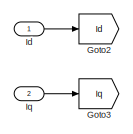
[diagram: I2t - part 1/3, top center region]
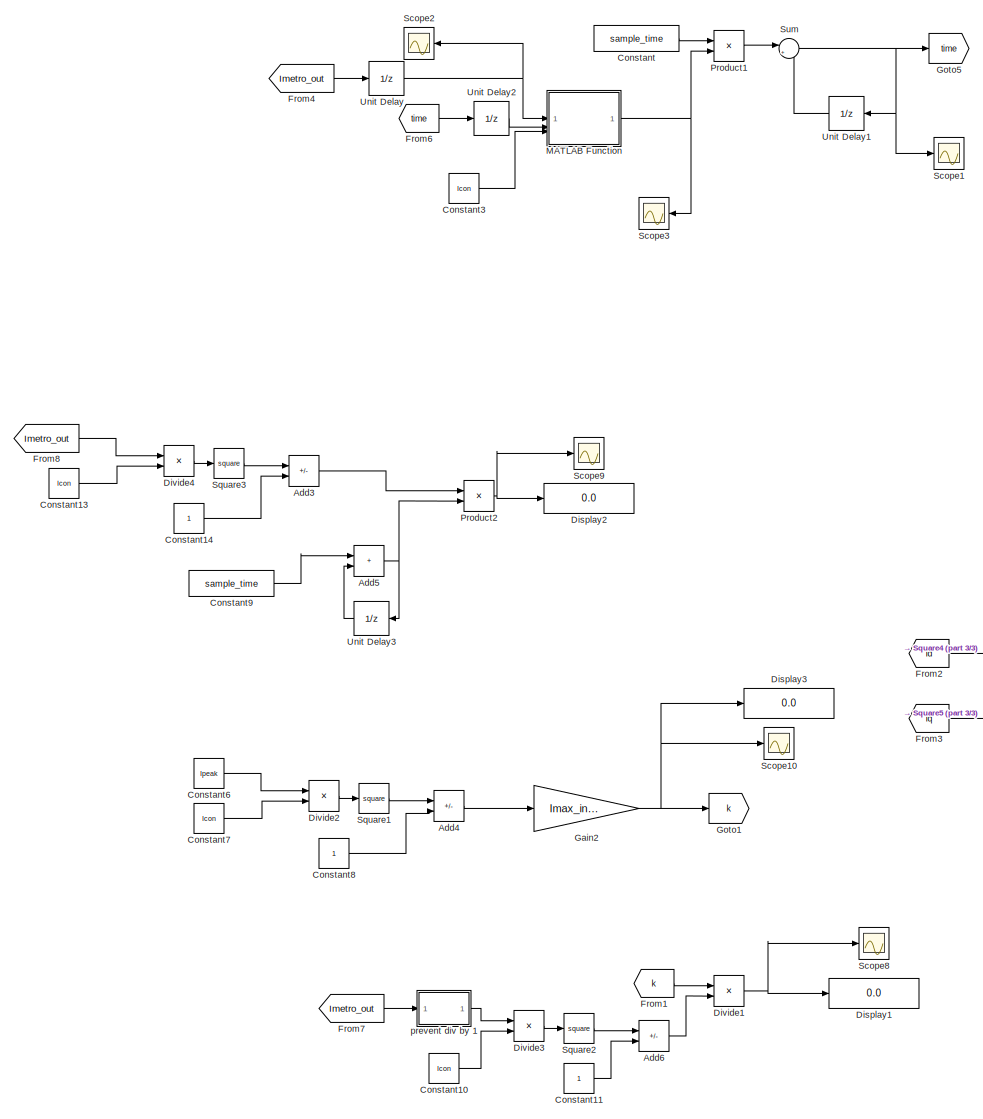
[diagram: I2t - part 2/3, left side, full height]
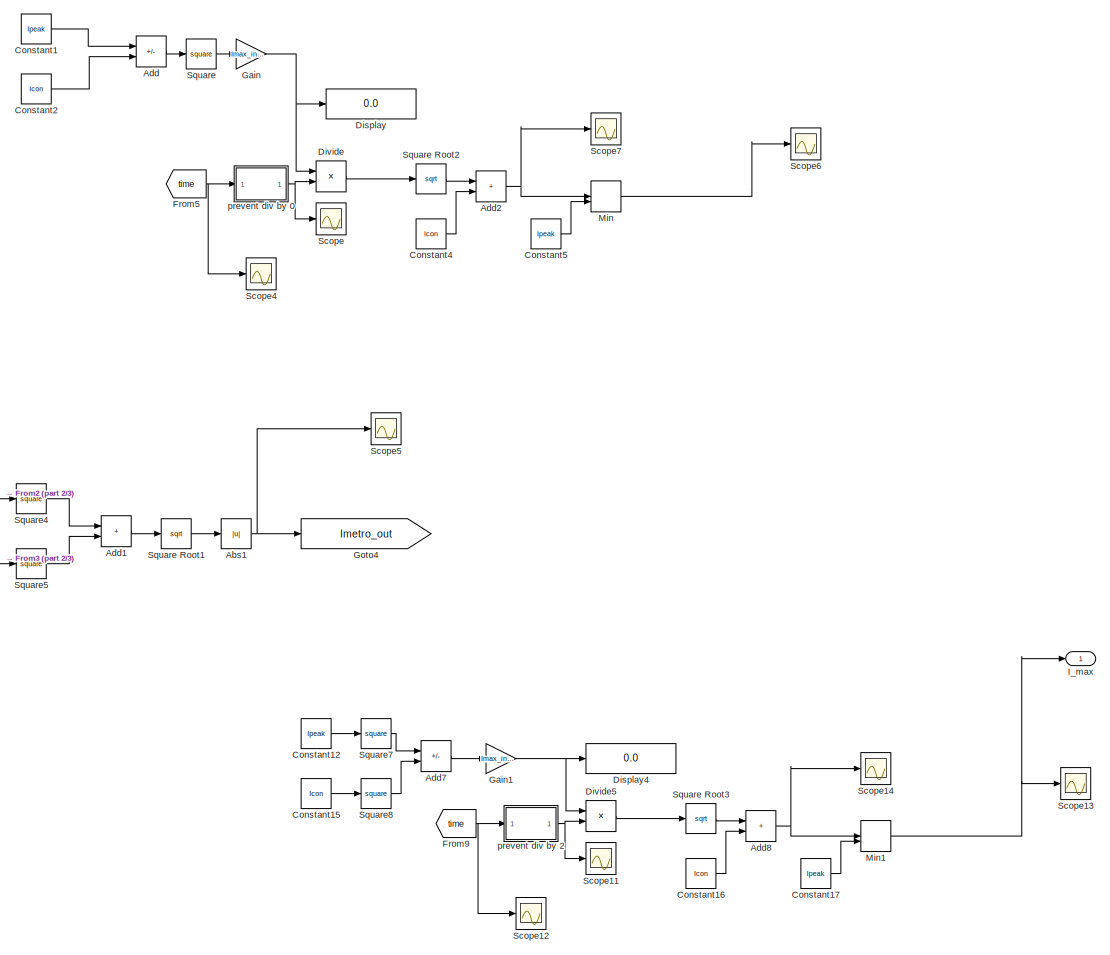
[diagram: I2t - part 3/3, right side, full height]
BLOCK [SubSystem] I2t
  Commented = on
BLOCK [Abs] I2t/Abs1
  SaturateOnIntegerOverflow = off
BLOCK [Sum] I2t/Add
  Commented = on
  IconShape = rectangular
  Inputs = +-
BLOCK [Sum] I2t/Add1
  IconShape = rectangular
BLOCK [Sum] I2t/Add2
  Commented = on
  IconShape = rectangular
BLOCK [Sum] I2t/Add3
  IconShape = rectangular
  Inputs = +-
BLOCK [Sum] I2t/Add4
  IconShape = rectangular
  Inputs = +-
BLOCK [Sum] I2t/Add5
  IconShape = rectangular
BLOCK [Sum] I2t/Add6
  IconShape = rectangular
  Inputs = +-
BLOCK [Sum] I2t/Add7
  IconShape = rectangular
  Inputs = +-
BLOCK [Sum] I2t/Add8
  IconShape = rectangular
BLOCK [Constant] I2t/Constant
  Value = sample_time
BLOCK [Constant] I2t/Constant1
  Commented = on
  Value = Ipeak
BLOCK [Constant] I2t/Constant10
  Value = Icon
BLOCK [Constant] I2t/Constant11
BLOCK [Constant] I2t/Constant12
  Value = Ipeak
BLOCK [Constant] I2t/Constant13
  Value = Icon
BLOCK [Constant] I2t/Constant14
BLOCK [Constant] I2t/Constant15
  Value = Icon
BLOCK [Constant] I2t/Constant16
  Value = Icon
BLOCK [Constant] I2t/Constant17
  Value = Ipeak
BLOCK [Constant] I2t/Constant2
  Commented = on
  Value = Icon
BLOCK [Constant] I2t/Constant3
  Value = Icon
BLOCK [Constant] I2t/Constant4
  Commented = on
  Value = Icon
BLOCK [Constant] I2t/Constant5
  Commented = on
  Value = Ipeak
BLOCK [Constant] I2t/Constant6
  Value = Ipeak
BLOCK [Constant] I2t/Constant7
  Value = Icon
BLOCK [Constant] I2t/Constant8
BLOCK [Constant] I2t/Constant9
  Value = sample_time
BLOCK [Display] I2t/Display
  Commented = on
  Decimation = 1
BLOCK [Display] I2t/Display1
  Decimation = 1
BLOCK [Display] I2t/Display2
  Decimation = 1
  NameLocation = top
BLOCK [Display] I2t/Display3
  Decimation = 1
  NameLocation = top
BLOCK [Display] I2t/Display4
  Decimation = 1
BLOCK [Product] I2t/Divide
  Commented = on
  Inputs = */
BLOCK [Product] I2t/Divide1
  Inputs = */
BLOCK [Product] I2t/Divide2
  Inputs = */
BLOCK [Product] I2t/Divide3
  Inputs = */
BLOCK [Product] I2t/Divide4
  Inputs = */
BLOCK [Product] I2t/Divide5
  Inputs = */
BLOCK [From] I2t/From1
  GotoTag = k
BLOCK [From] I2t/From2
  GotoTag = Id
BLOCK [From] I2t/From3
  GotoTag = Iq
BLOCK [From] I2t/From4
  GotoTag = Imetro_out
BLOCK [From] I2t/From5
  Commented = on
  GotoTag = time
BLOCK [From] I2t/From6
  GotoTag = time
BLOCK [From] I2t/From7
  GotoTag = Imetro_out
BLOCK [From] I2t/From8
  GotoTag = Imetro_out
BLOCK [From] I2t/From9
  GotoTag = time
BLOCK [Gain] I2t/Gain
  Commented = on
  Gain = Imax_interval/2
BLOCK [Gain] I2t/Gain1
  Gain = Imax_interval/2
BLOCK [Gain] I2t/Gain2
  Gain = Imax_interval
BLOCK [Goto] I2t/Goto1
  GotoTag = k
BLOCK [Goto] I2t/Goto2
  GotoTag = Id
BLOCK [Goto] I2t/Goto3
  GotoTag = Iq
BLOCK [Goto] I2t/Goto4
  GotoTag = Imetro_out
BLOCK [Goto] I2t/Goto5
  GotoTag = time
BLOCK [Outport] I2t/I_max
BLOCK [Inport] I2t/Id
BLOCK [Inport] I2t/Iq
  Port = 2
BLOCK [SubSystem] I2t/MATLAB Function
  ErrorFcn = Stateflow.Translate.translate
  LibrarySourceBlock = simulink/User-Defined\nFunctions/MATLAB Function
  PermitHierarchicalResolution = ExplicitOnly
  SFBlockType = MATLAB Function
  TreatAsAtomicUnit = on
BLOCK [Demux] I2t/MATLAB Function/ Demux 
  Outputs = 1
BLOCK [S-Function] I2t/MATLAB Function/ SFunction 
  EnableBusSupport = on
  FunctionName = sf_sfun
  PortCounts = [3 2]
  SFcnIsStateOwnerBlock = off
  SFunctionDeploymentMode = off
  Tag = Stateflow S-Function 2
BLOCK [Terminator] I2t/MATLAB Function/ Terminator 
BLOCK [Inport] I2t/MATLAB Function/c
  Port = 3
BLOCK [Inport] I2t/MATLAB Function/t
  Port = 2
BLOCK [Inport] I2t/MATLAB Function/u
BLOCK [Outport] I2t/MATLAB Function/y
BLOCK [MinMax] I2t/Min
  Commented = on
  Inputs = 2
BLOCK [MinMax] I2t/Min1
  Inputs = 2
BLOCK [Product] I2t/Product1
BLOCK [Product] I2t/Product2
BLOCK [Scope] I2t/Scope
  Commented = on
  Floating = off
  NumInputPorts = 1
  ScopeSpecificationString = Simulink.scopes.TimeScopeBlockCfg('CurrentConfiguration', extmgr.ConfigurationSet(extmgr.Configuration('Core','General UI',true),extmgr.Configuration('Core','Source UI',true),extmgr.Configuration('Sources','WiredSimulink',true,'DataLoggingVariableName','ScopeData11'),extmgr.Configuration('Visuals','Time Domain',true,'SerializedDisplays',{struct('MinYLimReal','-0.17668','MaxYLimReal','1.59114','YLa...<+1717ch>
BLOCK [Scope] I2t/Scope1
  Floating = off
  NumInputPorts = 1
  ScopeSpecificationString = Simulink.scopes.TimeScopeBlockCfg('CurrentConfiguration', extmgr.ConfigurationSet(extmgr.Configuration('Core','General UI',true),extmgr.Configuration('Core','Source UI',true),extmgr.Configuration('Sources','WiredSimulink',true,'DataLoggingVariableName','ScopeData4'),extmgr.Configuration('Visuals','Time Domain',true,'SerializedDisplays',{struct('MinYLimReal','-0.17679','MaxYLimReal','1.59115','YLab...<+1728ch>
BLOCK [Scope] I2t/Scope10
  Floating = off
  NumInputPorts = 1
  ScopeSpecificationString = Simulink.scopes.TimeScopeBlockCfg('CurrentConfiguration', extmgr.ConfigurationSet(extmgr.Configuration('Core','General UI',true),extmgr.Configuration('Core','Source UI',true),extmgr.Configuration('Sources','WiredSimulink',true,'DataLoggingVariableName','ScopeData3'),extmgr.Configuration('Visuals','Time Domain',true,'SerializedDisplays',{struct('MinYLimReal','1.64265','MaxYLimReal','2.51671','YLabe...<+1774ch>
BLOCK [Scope] I2t/Scope11
  Floating = off
  NumInputPorts = 1
  ScopeSpecificationString = Simulink.scopes.TimeScopeBlockCfg('CurrentConfiguration', extmgr.ConfigurationSet(extmgr.Configuration('Core','General UI',true),extmgr.Configuration('Core','Source UI',true),extmgr.Configuration('Sources','WiredSimulink',true,'DataLoggingVariableName','ScopeData4'),extmgr.Configuration('Visuals','Time Domain',true,'SerializedDisplays',{struct('MinYLimReal','-0.17668','MaxYLimReal','1.59114','YLab...<+1716ch>
BLOCK [Scope] I2t/Scope12
  Floating = off
  NumInputPorts = 1
  ScopeSpecificationString = Simulink.scopes.TimeScopeBlockCfg('CurrentConfiguration', extmgr.ConfigurationSet(extmgr.Configuration('Core','General UI',true),extmgr.Configuration('Core','Source UI',true),extmgr.Configuration('Sources','WiredSimulink',true,'DataLoggingVariableName','ScopeData5'),extmgr.Configuration('Visuals','Time Domain',true,'SerializedDisplays',{struct('MinYLimReal','-0.00341','MaxYLimReal','0.03071','YLab...<+1442ch>
BLOCK [Scope] I2t/Scope13
  Floating = off
  NumInputPorts = 1
  ScopeSpecificationString = Simulink.scopes.TimeScopeBlockCfg('CurrentConfiguration', extmgr.ConfigurationSet(extmgr.Configuration('Core','General UI',true),extmgr.Configuration('Core','Source UI',true),extmgr.Configuration('Sources','WiredSimulink',true,'DataLoggingVariableName','ScopeData6'),extmgr.Configuration('Visuals','Time Domain',true,'SerializedDisplays',{struct('MinYLimReal','29.86423','MaxYLimReal','91.90397','YLa...<+1761ch>
BLOCK [Scope] I2t/Scope14
  Floating = off
  NumInputPorts = 1
  ScopeSpecificationString = Simulink.scopes.TimeScopeBlockCfg('CurrentConfiguration', extmgr.ConfigurationSet(extmgr.Configuration('Core','General UI',true),extmgr.Configuration('Core','Source UI',true),extmgr.Configuration('Sources','WiredSimulink',true,'DataLoggingVariableName','ScopeData7'),extmgr.Configuration('Visuals','Time Domain',true,'SerializedDisplays',{struct('MinYLimReal','-633.37739','MaxYLimReal','6566.20415',...<+1793ch>
BLOCK [Scope] I2t/Scope2
  Floating = off
  NumInputPorts = 1
  ScopeSpecificationString = Simulink.scopes.TimeScopeBlockCfg('CurrentConfiguration', extmgr.ConfigurationSet(extmgr.Configuration('Core','General UI',true),extmgr.Configuration('Core','Source UI',true),extmgr.Configuration('Sources','WiredSimulink',true,'DataLoggingVariableName','ScopeData5'),extmgr.Configuration('Visuals','Time Domain',true,'SerializedDisplays',{struct('MinYLimReal','32.1','MaxYLimReal','113.1','YLabelReal...<+1421ch>
BLOCK [Scope] I2t/Scope3
  Floating = off
  NumInputPorts = 1
  ScopeSpecificationString = Simulink.scopes.TimeScopeBlockCfg('CurrentConfiguration', extmgr.ConfigurationSet(extmgr.Configuration('Core','General UI',true),extmgr.Configuration('Core','Source UI',true),extmgr.Configuration('Sources','WiredSimulink',true,'DataLoggingVariableName','ScopeData6'),extmgr.Configuration('Visuals','Time Domain',true,'SerializedDisplays',{struct('MinYLimReal','-1.25','MaxYLimReal','1.25','YLabelReal...<+1440ch>
BLOCK [Scope] I2t/Scope4
  Commented = on
  Floating = off
  NumInputPorts = 1
  ScopeSpecificationString = Simulink.scopes.TimeScopeBlockCfg('CurrentConfiguration', extmgr.ConfigurationSet(extmgr.Configuration('Core','General UI',true),extmgr.Configuration('Core','Source UI',true),extmgr.Configuration('Sources','WiredSimulink',true,'DataLoggingVariableName','ScopeData12'),extmgr.Configuration('Visuals','Time Domain',true,'SerializedDisplays',{struct('MinYLimReal','-0.00341','MaxYLimReal','0.03071','YLa...<+1443ch>
BLOCK [Scope] I2t/Scope5
  Floating = off
  NumInputPorts = 1
  ScopeSpecificationString = Simulink.scopes.TimeScopeBlockCfg('CurrentConfiguration', extmgr.ConfigurationSet(extmgr.Configuration('Core','General UI',true),extmgr.Configuration('Core','Source UI',true),extmgr.Configuration('Sources','WiredSimulink',true,'DataLoggingVariableName','ScopeData13'),extmgr.Configuration('Visuals','Time Domain',true,'SerializedDisplays',{struct('MinYLimReal','-10.7125','MaxYLimReal','96.4125','YLa...<+1774ch>
BLOCK [Scope] I2t/Scope6
  Commented = on
  Floating = off
  NumInputPorts = 1
  ScopeSpecificationString = Simulink.scopes.TimeScopeBlockCfg('CurrentConfiguration', extmgr.ConfigurationSet(extmgr.Configuration('Core','General UI',true),extmgr.Configuration('Core','Source UI',true),extmgr.Configuration('Sources','WiredSimulink',true,'DataLoggingVariableName','ScopeData15'),extmgr.Configuration('Visuals','Time Domain',true,'SerializedDisplays',{struct('MinYLimReal','29.86423','MaxYLimReal','91.90397','YL...<+1821ch>
BLOCK [Scope] I2t/Scope7
  Commented = on
  Floating = off
  NumInputPorts = 1
  ScopeSpecificationString = Simulink.scopes.TimeScopeBlockCfg('CurrentConfiguration', extmgr.ConfigurationSet(extmgr.Configuration('Core','General UI',true),extmgr.Configuration('Core','Source UI',true),extmgr.Configuration('Sources','WiredSimulink',true,'DataLoggingVariableName','ScopeData4'),extmgr.Configuration('Visuals','Time Domain',true,'SerializedDisplays',{struct('MinYLimReal','-633.37739','MaxYLimReal','6566.20415',...<+1793ch>
BLOCK [Scope] I2t/Scope8
  Floating = off
  NumInputPorts = 1
  ScopeSpecificationString = Simulink.scopes.TimeScopeBlockCfg('CurrentConfiguration', extmgr.ConfigurationSet(extmgr.Configuration('Core','General UI',true),extmgr.Configuration('Core','Source UI',true),extmgr.Configuration('Sources','WiredSimulink',true,'DataLoggingVariableName','ScopeData1'),extmgr.Configuration('Visuals','Time Domain',true,'SerializedDisplays',{struct('MinYLimReal','-14.05543','MaxYLimReal','57.74793','YL...<+1782ch>
BLOCK [Scope] I2t/Scope9
  Floating = off
  NumInputPorts = 1
  ScopeSpecificationString = Simulink.scopes.TimeScopeBlockCfg('CurrentConfiguration', extmgr.ConfigurationSet(extmgr.Configuration('Core','General UI',true),extmgr.Configuration('Core','Source UI',true),extmgr.Configuration('Sources','WiredSimulink',true,'DataLoggingVariableName','ScopeData2'),extmgr.Configuration('Visuals','Time Domain',true,'SerializedDisplays',{struct('MinYLimReal','-0.28865','MaxYLimReal','2.5978','YLabe...<+1736ch>
BLOCK [Math] I2t/Square
  Commented = on
  Operator = square
BLOCK [Sqrt] I2t/Square Root1
BLOCK [Sqrt] I2t/Square Root2
  Commented = on
BLOCK [Sqrt] I2t/Square Root3
BLOCK [Math] I2t/Square1
  Operator = square
BLOCK [Math] I2t/Square2
  Operator = square
BLOCK [Math] I2t/Square3
  Operator = square
BLOCK [Math] I2t/Square4
  Operator = square
BLOCK [Math] I2t/Square5
  Operator = square
BLOCK [Math] I2t/Square7
  Operator = square
BLOCK [Math] I2t/Square8
  Operator = square
BLOCK [Sum] I2t/Sum
  Inputs = |++
BLOCK [UnitDelay] I2t/Unit Delay
  HasFrameUpgradeWarning = on
  SampleTime = -1
BLOCK [UnitDelay] I2t/Unit Delay1
  HasFrameUpgradeWarning = on
  SampleTime = -1
BLOCK [UnitDelay] I2t/Unit Delay2
  HasFrameUpgradeWarning = on
  SampleTime = -1
BLOCK [UnitDelay] I2t/Unit Delay3
  HasFrameUpgradeWarning = on
  SampleTime = -1
BLOCK [SubSystem] I2t/prevent div by 0
  Commented = on
BLOCK [Constant] I2t/prevent div by 0/Constant
  Value = 0.0001
BLOCK [Inport] I2t/prevent div by 0/IN
BLOCK [Outport] I2t/prevent div by 0/OUT
  VectorParamsAs1DForOutWhenUnconnected = off
BLOCK [Switch] I2t/prevent div by 0/Switch
  Criteria = u2 > Threshold
  InputSameDT = off
  OutDataTypeStr = Inherit: Same as first input
  SaturateOnIntegerOverflow = off
  Threshold = 0.0001
BLOCK [SubSystem] I2t/prevent div by 1
BLOCK [Constant] I2t/prevent div by 1/Constant
  Value = 0.0001
BLOCK [Inport] I2t/prevent div by 1/IN
BLOCK [Outport] I2t/prevent div by 1/OUT
  VectorParamsAs1DForOutWhenUnconnected = off
BLOCK [Switch] I2t/prevent div by 1/Switch
  Criteria = u2 > Threshold
  InputSameDT = off
  OutDataTypeStr = Inherit: Same as first input
  SaturateOnIntegerOverflow = off
  Threshold = 0.0001
BLOCK [SubSystem] I2t/prevent div by 2
BLOCK [Constant] I2t/prevent div by 2/Constant
  Value = 0.0001
BLOCK [Inport] I2t/prevent div by 2/IN
BLOCK [Outport] I2t/prevent div by 2/OUT
  VectorParamsAs1DForOutWhenUnconnected = off
BLOCK [Switch] I2t/prevent div by 2/Switch
  Criteria = u2 > Threshold
  InputSameDT = off
  OutDataTypeStr = Inherit: Same as first input
  SaturateOnIntegerOverflow = off
  Threshold = 0.0001
BLOCK [Integrator] Integrator
BLOCK [SubSystem] Ld_est
  Commented = on
  ErrorFcn = Stateflow.Translate.translate
  LibrarySourceBlock = simulink/User-Defined\nFunctions/MATLAB Function
  PermitHierarchicalResolution = ExplicitOnly
  SFBlockType = MATLAB Function
  TreatAsAtomicUnit = on
BLOCK [Demux] Ld_est/ Demux 
  Outputs = 1
BLOCK [S-Function] Ld_est/ SFunction 
  EnableBusSupport = on
  FunctionName = sf_sfun
  PortCounts = [2 2]
  SFcnIsStateOwnerBlock = off
  SFunctionDeploymentMode = off
  Tag = Stateflow S-Function 3
BLOCK [Terminator] Ld_est/ Terminator 
BLOCK [Inport] Ld_est/Iq_nom
BLOCK [Outport] Ld_est/Ld
BLOCK [Inport] Ld_est/rpm
  Port = 2
BLOCK [SubSystem] Lq_est
  Commented = on
  ErrorFcn = Stateflow.Translate.translate
  LibrarySourceBlock = simulink/User-Defined\nFunctions/MATLAB Function
  PermitHierarchicalResolution = ExplicitOnly
  SFBlockType = MATLAB Function
  TreatAsAtomicUnit = on
BLOCK [Demux] Lq_est/ Demux 
  Outputs = 1
BLOCK [S-Function] Lq_est/ SFunction 
  EnableBusSupport = on
  FunctionName = sf_sfun
  PortCounts = [2 2]
  SFcnIsStateOwnerBlock = off
  SFunctionDeploymentMode = off
  Tag = Stateflow S-Function 4
BLOCK [Terminator] Lq_est/ Terminator 
BLOCK [Inport] Lq_est/Iq_nom
BLOCK [Outport] Lq_est/Lq
BLOCK [Inport] Lq_est/rpm
  Port = 2
BLOCK [SubSystem] MATLAB Function
  ErrorFcn = Stateflow.Translate.translate
  LibrarySourceBlock = simulink/User-Defined\nFunctions/MATLAB Function
  PermitHierarchicalResolution = ExplicitOnly
  SFBlockType = MATLAB Function
  TreatAsAtomicUnit = on
BLOCK [Demux] MATLAB Function/ Demux 
  Outputs = 1
BLOCK [S-Function] MATLAB Function/ SFunction 
  EnableBusSupport = on
  FunctionName = sf_sfun
  PortCounts = [5 2]
  SFcnIsStateOwnerBlock = off
  SFunctionDeploymentMode = off
  Tag = Stateflow S-Function 8
BLOCK [Terminator] MATLAB Function/ Terminator 
BLOCK [Inport] MATLAB Function/Ts
  Port = 4
BLOCK [Inport] MATLAB Function/n_actual
  Port = 2
BLOCK [Inport] MATLAB Function/n_max
BLOCK [Inport] MATLAB Function/rise_time
  Port = 5
BLOCK [Outport] MATLAB Function/y
BLOCK [Inport] MATLAB Function/y_prev
  Port = 3
BLOCK [ManualSwitch] Manual Switch
  CurrentSetting = 0
BLOCK [ManualSwitch] Manual Switch1
  CurrentSetting = 0
BLOCK [ManualSwitch] Manual Switch2
BLOCK [ManualSwitch] Manual Switch3
  CurrentSetting = 0
BLOCK [ManualSwitch] Manual Switch4
  CurrentSetting = 0
BLOCK [ManualSwitch] Manual Switch5
  CurrentSetting = 0
BLOCK [ManualSwitch] Manual Switch6
BLOCK [ManualSwitch] Manual Switch7
  CurrentSetting = 0
BLOCK [ManualSwitch] Manual Switch8
  CurrentSetting = 0
BLOCK [Memory] Memory
BLOCK [MinMax] Min
  Inputs = 2
BLOCK [Mux] Mux
  DisplayOption = bar
  Inputs = 2
BLOCK [SubSystem] PMSM signal model
BLOCK [Sum] PMSM signal model/Add
  IconShape = rectangular
  Inputs = -++
BLOCK [Sum] PMSM signal model/Add1
  IconShape = rectangular
  Inputs = -+-
BLOCK [Sum] PMSM signal model/Add2
  IconShape = rectangular
BLOCK [Sum] PMSM signal model/Add3
  IconShape = rectangular
  Inputs = +-
BLOCK [Sum] PMSM signal model/Add4
  IconShape = rectangular
BLOCK [Sum] PMSM signal model/Add5
  IconShape = rectangular
  Inputs = +-
BLOCK [Sum] PMSM signal model/Add6
  IconShape = rectangular
BLOCK [Constant] PMSM signal model/Constant
  Value = 30
BLOCK [Constant] PMSM signal model/Constant1
  Value = 2
BLOCK [Constant] PMSM signal model/Constant2
  Value = 0
BLOCK [Constant] PMSM signal model/Constant3
  Value = 0
BLOCK [Demux] PMSM signal model/Demux
  Outputs = 2
BLOCK [Product] PMSM signal model/Divide
  Inputs = */
BLOCK [Product] PMSM signal model/Divide1
  Inputs = */
BLOCK [From] PMSM signal model/From
  GotoTag = Ud
BLOCK [From] PMSM signal model/From1
  GotoTag = Uq
BLOCK [From] PMSM signal model/From10
  GotoTag = Id
  TagVisibility = global
BLOCK [From] PMSM signal model/From11
  GotoTag = w_m
  TagVisibility = global
BLOCK [From] PMSM signal model/From12
  GotoTag = w_m
  TagVisibility = global
BLOCK [From] PMSM signal model/From13
  GotoTag = Te
  TagVisibility = global
BLOCK [From] PMSM signal model/From14
  GotoTag = psi
BLOCK [From] PMSM signal model/From15
  GotoTag = Lq
BLOCK [From] PMSM signal model/From16
  GotoTag = Ld
BLOCK [From] PMSM signal model/From17
  GotoTag = Ld
BLOCK [From] PMSM signal model/From18
  GotoTag = Lq
BLOCK [From] PMSM signal model/From19
  GotoTag = Ld
BLOCK [From] PMSM signal model/From2
  GotoTag = w_r
  TagVisibility = global
BLOCK [From] PMSM signal model/From20
  GotoTag = Lq
BLOCK [From] PMSM signal model/From21
  GotoTag = psi
BLOCK [From] PMSM signal model/From3
  GotoTag = Iq
  TagVisibility = global
BLOCK [From] PMSM signal model/From4
  GotoTag = Id
  TagVisibility = global
BLOCK [From] PMSM signal model/From5
  GotoTag = w_r
  TagVisibility = global
BLOCK [From] PMSM signal model/From6
  GotoTag = Iq
  TagVisibility = global
BLOCK [From] PMSM signal model/From7
  GotoTag = Iq
  TagVisibility = global
BLOCK [From] PMSM signal model/From8
  GotoTag = Id
  TagVisibility = global
BLOCK [From] PMSM signal model/From9
  GotoTag = Iq
  TagVisibility = global
BLOCK [Gain] PMSM signal model/Gain
  Gain = 8
BLOCK [Gain] PMSM signal model/Gain1
  Gain = Rs
BLOCK [Gain] PMSM signal model/Gain11
  Gain = bm
BLOCK [Gain] PMSM signal model/Gain4
  Gain = Rs
BLOCK [Gain] PMSM signal model/Gain5
  Gain = 1/J
BLOCK [Gain] PMSM signal model/Gain7
  Gain = 3*np/(2*k^2)
BLOCK [Gain] PMSM signal model/Gain9
  Gain = np
BLOCK [Goto] PMSM signal model/Goto
  GotoTag = Id
  TagVisibility = global
BLOCK [Goto] PMSM signal model/Goto1
  GotoTag = Iq
  TagVisibility = global
BLOCK [Goto] PMSM signal model/Goto2
  GotoTag = w_r
  TagVisibility = global
BLOCK [Goto] PMSM signal model/Goto3
  GotoTag = Ud
BLOCK [Goto] PMSM signal model/Goto4
  GotoTag = Uq
BLOCK [Goto] PMSM signal model/Goto5
  GotoTag = w_m
  TagVisibility = global
BLOCK [Goto] PMSM signal model/Goto6
  GotoTag = Te
  TagVisibility = global
BLOCK [Goto] PMSM signal model/Goto7
  GotoTag = psi
BLOCK [Goto] PMSM signal model/Goto8
  GotoTag = Ld
BLOCK [Goto] PMSM signal model/Goto9
  GotoTag = Lq
BLOCK [Outport] PMSM signal model/Idq
  VectorParamsAs1DForOutWhenUnconnected = off
BLOCK [Integrator] PMSM signal model/Integrator
BLOCK [Integrator] PMSM signal model/Integrator1
BLOCK [Integrator] PMSM signal model/Integrator2
BLOCK [Inport] PMSM signal model/Ld
  Port = 3
BLOCK [Inport] PMSM signal model/Lq
  Port = 4
BLOCK [ManualSwitch] PMSM signal model/Manual Switch
  CurrentSetting = 0
BLOCK [Mux] PMSM signal model/Mux
  DisplayOption = bar
  Inputs = 3
BLOCK [Product] PMSM signal model/Product
BLOCK [Product] PMSM signal model/Product1
BLOCK [Product] PMSM signal model/Product2
BLOCK [Product] PMSM signal model/Product3
BLOCK [Product] PMSM signal model/Product4
BLOCK [Product] PMSM signal model/Product5
BLOCK [Product] PMSM signal model/Product6
BLOCK [Scope] PMSM signal model/Scope
  Floating = off
  NumInputPorts = 1
  ScopeSpecificationString = Simulink.scopes.TimeScopeBlockCfg('CurrentConfiguration', extmgr.ConfigurationSet(extmgr.Configuration('Core','General UI',true),extmgr.Configuration('Core','Source UI',true),extmgr.Configuration('Sources','WiredSimulink',true,'DataLoggingVariableName','ScopeData1'),extmgr.Configuration('Visuals','Time Domain',true,'SerializedDisplays',{struct('MinYLimReal','-4.07969','MaxYLimReal','36.71717','YLa...<+1764ch>
BLOCK [Scope] PMSM signal model/Scope1
  Floating = off
  NumInputPorts = 1
  ScopeSpecificationString = Simulink.scopes.TimeScopeBlockCfg('CurrentConfiguration', extmgr.ConfigurationSet(extmgr.Configuration('Core','General UI',true),extmgr.Configuration('Core','Source UI',true),extmgr.Configuration('Sources','WiredSimulink',true,'DataLoggingVariableName','ScopeData1'),extmgr.Configuration('Visuals','Time Domain',true,'SerializedDisplays',{struct('MinYLimReal','-1.31929','MaxYLimReal','11.87365','YLa...<+1471ch>
BLOCK [Scope] PMSM signal model/Scope2
  Floating = off
  NumInputPorts = 1
  ScopeSpecificationString = Simulink.scopes.TimeScopeBlockCfg('CurrentConfiguration', extmgr.ConfigurationSet(extmgr.Configuration('Core','General UI',true),extmgr.Configuration('Core','Source UI',true),extmgr.Configuration('Sources','WiredSimulink',true,'DataLoggingVariableName','ScopeData2'),extmgr.Configuration('Visuals','Time Domain',true,'SerializedDisplays',{struct('MinYLimReal','-29.41293','MaxYLimReal','264.71635','Y...<+1821ch>
BLOCK [Scope] PMSM signal model/Scope3
  Floating = off
  NumInputPorts = 1
  ScopeSpecificationString = Simulink.scopes.TimeScopeBlockCfg('CurrentConfiguration', extmgr.ConfigurationSet(extmgr.Configuration('Core','General UI',true),extmgr.Configuration('Core','Source UI',true),extmgr.Configuration('Sources','WiredSimulink',true),extmgr.Configuration('Visuals','Time Domain',true,'SerializedDisplays',{struct('MinYLimReal','-153.33145','MaxYLimReal','1379.98307','YLabelReal','','MinYLimMag',' 0.00000'...<+1439ch>
BLOCK [Scope] PMSM signal model/Scope4
  Floating = off
  NumInputPorts = 1
  ScopeSpecificationString = Simulink.scopes.TimeScopeBlockCfg('CurrentConfiguration', extmgr.ConfigurationSet(extmgr.Configuration('Core','General UI',true),extmgr.Configuration('Core','Source UI',true),extmgr.Configuration('Sources','WiredSimulink',true),extmgr.Configuration('Visuals','Time Domain',true,'SerializedDisplays',{struct('MinYLimReal','-1739.81554','MaxYLimReal','15658.33988','YLabelReal','','MinYLimMag','  0.000...<+1474ch>
BLOCK [Scope] PMSM signal model/Scope5
  Floating = off
  NumInputPorts = 1
  ScopeSpecificationString = Simulink.scopes.TimeScopeBlockCfg('CurrentConfiguration', extmgr.ConfigurationSet(extmgr.Configuration('Core','General UI',true),extmgr.Configuration('Core','Source UI',true),extmgr.Configuration('Sources','WiredSimulink',true,'DataLoggingVariableName','ScopeData4'),extmgr.Configuration('Visuals','Time Domain',true,'SerializedDisplays',{struct('MinYLimReal','-0.02143','MaxYLimReal','0.1929','YLabe...<+1516ch>
BLOCK [Scope] PMSM signal model/Scope6
  Floating = off
  NumInputPorts = 1
  ScopeSpecificationString = Simulink.scopes.TimeScopeBlockCfg('CurrentConfiguration', extmgr.ConfigurationSet(extmgr.Configuration('Core','General UI',true),extmgr.Configuration('Core','Source UI',true),extmgr.Configuration('Sources','WiredSimulink',true,'DataLoggingVariableName','ScopeData16'),extmgr.Configuration('Visuals','Time Domain',true,'SerializedDisplays',{struct('MinYLimReal','-0.99279','MaxYLimReal','8.93511','YLa...<+1468ch>
BLOCK [Scope] PMSM signal model/Scope7
  Floating = off
  NumInputPorts = 1
  ScopeSpecificationString = Simulink.scopes.TimeScopeBlockCfg('CurrentConfiguration', extmgr.ConfigurationSet(extmgr.Configuration('Core','General UI',true),extmgr.Configuration('Core','Source UI',true),extmgr.Configuration('Sources','WiredSimulink',true,'DataLoggingVariableName','ScopeData2'),extmgr.Configuration('Visuals','Time Domain',true,'SerializedDisplays',{struct('MinYLimReal','-1.69528','MaxYLimReal','14.32594','YLa...<+1502ch>
BLOCK [Scope] PMSM signal model/Scope8
  Floating = off
  NumInputPorts = 1
  ScopeSpecificationString = Simulink.scopes.TimeScopeBlockCfg('CurrentConfiguration', extmgr.ConfigurationSet(extmgr.Configuration('Core','General UI',true),extmgr.Configuration('Core','Source UI',true),extmgr.Configuration('Sources','WiredSimulink',true,'DataLoggingVariableName','ScopeData1'),extmgr.Configuration('Visuals','Time Domain',true,'SerializedDisplays',{struct('MinYLimReal','0.03575','MaxYLimReal','0.0373','YLabel...<+1502ch>
BLOCK [Scope] PMSM signal model/Scope9
  Floating = off
  NumInputPorts = 2
  ScopeSpecificationString = Simulink.scopes.TimeScopeBlockCfg('CurrentConfiguration', extmgr.ConfigurationSet(extmgr.Configuration('Core','General UI',true),extmgr.Configuration('Core','Source UI',true),extmgr.Configuration('Sources','WiredSimulink',true,'DataLoggingVariableName','ScopeData2'),extmgr.Configuration('Visuals','Time Domain',true,'SerializedDisplays',{struct('MinYLimReal','-236.62424','MaxYLimReal','551.50093','...<+1467ch>
BLOCK [SubSystem] PMSM signal model/Signal Builder
  ClipboardFcn = sigbuilder_block('clipboard');
  CloseFcn = sigbuilder_block('close');
  ContinueFcn = sigbuilder_block('continue');
  CopyFcn = sigbuilder_block('copy');
  DeleteFcn = sigbuilder_block('delete');
  LoadFcn = sigbuilder_block('load');
  MaskHideContents = on
  ModelCloseFcn = sigbuilder_block('modelClose');
  NameChangeFcn = sigbuilder_block('namechange');
  OpenFcn = sigbuilder_block('open',[437.6 199.2 550.4 400 ]);
  PauseFcn = sigbuilder_block('pause');
  PreSaveFcn = sigbuilder_block('preSave');
  StartFcn = sigbuilder_block('start');
  StopFcn = sigbuilder_block('stop');
  Tag = STV Subsys
BLOCK [Demux] PMSM signal model/Signal Builder/Demux
  DisplayOption = none
  Outputs = 1
  Tag = STV Demux
BLOCK [FromWorkspace] PMSM signal model/Signal Builder/FromWs
  Tag = STV FromWs
  VariableName = tuvar
BLOCK [Outport] PMSM signal model/Signal Builder/Signal 1
  Tag = STV Outport
BLOCK [Outport] PMSM signal model/Te 
  Port = 3
  VectorParamsAs1DForOutWhenUnconnected = off
BLOCK [Inport] PMSM signal model/Udq
BLOCK [UnitDelay] PMSM signal model/Unit Delay2
  HasFrameUpgradeWarning = on
  SampleTime = -1
BLOCK [UnitDelay] PMSM signal model/Unit Delay3
  HasFrameUpgradeWarning = on
  SampleTime = -1
BLOCK [SubSystem] PMSM signal model/prevent div by 1
BLOCK [Constant] PMSM signal model/prevent div by 1/Constant
  Value = 0.00001
BLOCK [Inport] PMSM signal model/prevent div by 1/IN
BLOCK [Outport] PMSM signal model/prevent div by 1/OUT
  VectorParamsAs1DForOutWhenUnconnected = off
BLOCK [Switch] PMSM signal model/prevent div by 1/Switch
  Criteria = u2 > Threshold
  InputSameDT = off
  OutDataTypeStr = Inherit: Same as first input
  SaturateOnIntegerOverflow = off
  Threshold = 0.00001
BLOCK [SubSystem] PMSM signal model/prevent div by 2
BLOCK [Constant] PMSM signal model/prevent div by 2/Constant
  Value = 0.00001
BLOCK [Inport] PMSM signal model/prevent div by 2/IN
BLOCK [Outport] PMSM signal model/prevent div by 2/OUT
  VectorParamsAs1DForOutWhenUnconnected = off
BLOCK [Switch] PMSM signal model/prevent div by 2/Switch
  Criteria = u2 > Threshold
  InputSameDT = off
  OutDataTypeStr = Inherit: Same as first input
  SaturateOnIntegerOverflow = off
  Threshold = 0.00001
BLOCK [Inport] PMSM signal model/psi
  Port = 2
BLOCK [Outport] PMSM signal model/w_m 
  Port = 2
  VectorParamsAs1DForOutWhenUnconnected = off
BLOCK [SubSystem] Power limiter1
BLOCK [Constant] Power limiter1/Constant
  Value = Peak_power
BLOCK [Constant] Power limiter1/Constant1
  Value = Peak_regen
BLOCK [Constant] Power limiter1/Constant2
  Value = psi
BLOCK [Constant] Power limiter1/Constant3
  Value = 0.01
BLOCK [Constant] Power limiter1/Constant4
  Value = 0.01
BLOCK [Constant] Power limiter1/Constant5
  Value = psi
BLOCK [Product] Power limiter1/Divide
  Inputs = */
BLOCK [Product] Power limiter1/Divide1
  Inputs = */
BLOCK [Product] Power limiter1/Divide2
  Inputs = */
BLOCK [Product] Power limiter1/Divide3
  Inputs = */
BLOCK [From] Power limiter1/From1
  GotoTag = wm
BLOCK [From] Power limiter1/From2
  GotoTag = wm
BLOCK [From] Power limiter1/From3
  GotoTag = Id
BLOCK [From] Power limiter1/From4
  GotoTag = Id
BLOCK [Gain] Power limiter1/Gain
  Gain = Ld-Lq
BLOCK [Gain] Power limiter1/Gain1
  Gain = 3*np/(2)
BLOCK [Gain] Power limiter1/Gain2
  Gain = Ld-Lq
BLOCK [Gain] Power limiter1/Gain3
  Gain = 3*np/(2)
BLOCK [Gain] Power limiter1/Gain4
  Gain = -1
BLOCK [Goto] Power limiter1/Goto1
  GotoTag = Id
BLOCK [Goto] Power limiter1/Goto2
  GotoTag = wm
BLOCK [Outport] Power limiter1/I_max
BLOCK [Inport] Power limiter1/Id
  Port = 2
BLOCK [Inport] Power limiter1/Iq_ref
  Port = 3
BLOCK [Saturate] Power limiter1/Saturation
  LowerLimit = -I_max
  UpperLimit = I_max
BLOCK [Saturate] Power limiter1/Saturation1
  LowerLimit = -10000
  UpperLimit = 10000
BLOCK [Saturate] Power limiter1/Saturation2
  LowerLimit = -10000
  UpperLimit = 10000
BLOCK [Sum] Power limiter1/Sum
  Inputs = |++
BLOCK [Sum] Power limiter1/Sum1
  Inputs = |++
BLOCK [Sum] Power limiter1/Sum2
  Inputs = |++
BLOCK [Sum] Power limiter1/Sum3
  Inputs = |++
BLOCK [Switch] Power limiter1/Switch
  Criteria = u2 > Threshold
  InputSameDT = off
  SaturateOnIntegerOverflow = off
BLOCK [Inport] Power limiter1/wm
BLOCK [Product] Product1
BLOCK [Reference] Ramp  REF=simulink/Sources/Ramp
  SourceBlock = simulink/Sources/Ramp
  SourceType = Ramp
BLOCK [Scope] Scope
  Floating = off
  NumInputPorts = 1
  ScopeSpecificationString = Simulink.scopes.TimeScopeBlockCfg('CurrentConfiguration', extmgr.ConfigurationSet(extmgr.Configuration('Core','General UI',true),extmgr.Configuration('Core','Source UI',true),extmgr.Configuration('Sources','WiredSimulink',true,'DataLoggingVariableName','ScopeData7'),extmgr.Configuration('Visuals','Time Domain',true,'SerializedDisplays',{struct('MinYLimReal','-107.02637','MaxYLimReal','106.2373','Y...<+1600ch>
BLOCK [Scope] Scope1
  Floating = off
  NumInputPorts = 4
  ScopeSpecificationString = Simulink.scopes.TimeScopeBlockCfg('CurrentConfiguration', extmgr.ConfigurationSet(extmgr.Configuration('Core','General UI',true),extmgr.Configuration('Core','Source UI',true),extmgr.Configuration('Sources','WiredSimulink',true,'DataLoggingVariableName','ScopeData1'),extmgr.Configuration('Visuals','Time Domain',true,'SerializedDisplays',{struct('MinYLimReal','-10.7125','MaxYLimReal','96.4125','YLab...<+1897ch>
BLOCK [Scope] Scope10
  Commented = on
  Floating = off
  NumInputPorts = 1
  ScopeSpecificationString = Simulink.scopes.TimeScopeBlockCfg('CurrentConfiguration', extmgr.ConfigurationSet(extmgr.Configuration('Core','General UI',true),extmgr.Configuration('Core','Source UI',true),extmgr.Configuration('Sources','WiredSimulink',true,'DataLoggingVariableName','ScopeData1'),extmgr.Configuration('Visuals','Time Domain',true,'SerializedDisplays',{struct('MinYLimReal','-18653.57032','MaxYLimReal','79046.1314...<+1479ch>
BLOCK [Scope] Scope11
  Commented = on
  Floating = off
  NumInputPorts = 2
  ScopeSpecificationString = Simulink.scopes.TimeScopeBlockCfg('CurrentConfiguration', extmgr.ConfigurationSet(extmgr.Configuration('Core','General UI',true),extmgr.Configuration('Core','Source UI',true),extmgr.Configuration('Sources','WiredSimulink',true,'DataLoggingVariableName','ScopeData2'),extmgr.Configuration('Visuals','Time Domain',true,'SerializedDisplays',{struct('MinYLimReal','-10.825','MaxYLimReal','96.425','YLabel...<+1471ch>
BLOCK [Scope] Scope12
  Commented = on
  Floating = off
  NumInputPorts = 2
  ScopeSpecificationString = Simulink.scopes.TimeScopeBlockCfg('CurrentConfiguration', extmgr.ConfigurationSet(extmgr.Configuration('Core','General UI',true),extmgr.Configuration('Core','Source UI',true),extmgr.Configuration('Sources','WiredSimulink',true,'DataLoggingVariableName','ScopeData1'),extmgr.Configuration('Visuals','Time Domain',true,'SerializedDisplays',{struct('MinYLimReal','-10.825','MaxYLimReal','96.425','YLabel...<+1520ch>
BLOCK [Scope] Scope13
  Floating = off
  NumInputPorts = 1
  ScopeSpecificationString = Simulink.scopes.TimeScopeBlockCfg('CurrentConfiguration', extmgr.ConfigurationSet(extmgr.Configuration('Core','General UI',true),extmgr.Configuration('Core','Source UI',true),extmgr.Configuration('Sources','WiredSimulink',true,'DataLoggingVariableName','ScopeData2'),extmgr.Configuration('Visuals','Time Domain',true,'SerializedDisplays',{struct('MinYLimReal','-10.9375','MaxYLimReal','96.4375','YLab...<+1581ch>
BLOCK [Scope] Scope14
  Commented = on
  Floating = off
  NumInputPorts = 2
  ScopeSpecificationString = Simulink.scopes.TimeScopeBlockCfg('CurrentConfiguration', extmgr.ConfigurationSet(extmgr.Configuration('Core','General UI',true),extmgr.Configuration('Core','Source UI',true),extmgr.Configuration('Sources','WiredSimulink',true,'DataLoggingVariableName','ScopeData3'),extmgr.Configuration('Visuals','Time Domain',true,'SerializedDisplays',{struct('MinYLimReal','-18653.57032','MaxYLimReal','79046.1314...<+1553ch>
BLOCK [Scope] Scope15
  Commented = on
  Floating = off
  NumInputPorts = 1
  ScopeSpecificationString = Simulink.scopes.TimeScopeBlockCfg('CurrentConfiguration', extmgr.ConfigurationSet(extmgr.Configuration('Core','General UI',true),extmgr.Configuration('Core','Source UI',true),extmgr.Configuration('Sources','WiredSimulink',true,'DataLoggingVariableName','ScopeData4'),extmgr.Configuration('Visuals','Time Domain',true,'SerializedDisplays',{struct('MinYLimReal','-10.7125','MaxYLimReal','96.4125','YLab...<+1572ch>
BLOCK [Scope] Scope16
  Floating = off
  NumInputPorts = 1
  ScopeSpecificationString = Simulink.scopes.TimeScopeBlockCfg('CurrentConfiguration', extmgr.ConfigurationSet(extmgr.Configuration('Core','General UI',true),extmgr.Configuration('Core','Source UI',true),extmgr.Configuration('Sources','WiredSimulink',true,'DataLoggingVariableName','ScopeData11'),extmgr.Configuration('Visuals','Time Domain',true,'SerializedDisplays',{struct('MinYLimReal','-107.02637','MaxYLimReal','106.2373','...<+1630ch>
BLOCK [Scope] Scope17
  Commented = on
  Floating = off
  NumInputPorts = 1
  ScopeSpecificationString = Simulink.scopes.TimeScopeBlockCfg('CurrentConfiguration', extmgr.ConfigurationSet(extmgr.Configuration('Core','General UI',true),extmgr.Configuration('Core','Source UI',true),extmgr.Configuration('Sources','WiredSimulink',true,'DataLoggingVariableName','ScopeData5'),extmgr.Configuration('Visuals','Time Domain',true,'SerializedDisplays',{struct('MinYLimReal','-0.73209','MaxYLimReal','0.66978','YLab...<+1438ch>
BLOCK [Scope] Scope18
  Commented = on
  Floating = off
  NumInputPorts = 2
  ScopeSpecificationString = Simulink.scopes.TimeScopeBlockCfg('CurrentConfiguration', extmgr.ConfigurationSet(extmgr.Configuration('Core','General UI',true),extmgr.Configuration('Core','Source UI',true),extmgr.Configuration('Sources','WiredSimulink',true,'DataLoggingVariableName','ScopeData6'),extmgr.Configuration('Visuals','Time Domain',true,'SerializedDisplays',{struct('MinYLimReal','-2606.44276','MaxYLimReal','3527.06398'...<+1608ch>
BLOCK [Scope] Scope19
  Floating = off
  NumInputPorts = 4
  ScopeSpecificationString = Simulink.scopes.TimeScopeBlockCfg('CurrentConfiguration', extmgr.ConfigurationSet(extmgr.Configuration('Core','General UI',true),extmgr.Configuration('Core','Source UI',true),extmgr.Configuration('Sources','WiredSimulink',true,'DataLoggingVariableName','ScopeData15'),extmgr.Configuration('Visuals','Time Domain',true,'SerializedDisplays',{struct('MinYLimReal','-10.7125','MaxYLimReal','96.4125','YLa...<+1885ch>
BLOCK [Scope] Scope2
  Floating = off
  NumInputPorts = 1
  ScopeSpecificationString = Simulink.scopes.TimeScopeBlockCfg('CurrentConfiguration', extmgr.ConfigurationSet(extmgr.Configuration('Core','General UI',true),extmgr.Configuration('Core','Source UI',true),extmgr.Configuration('Sources','WiredSimulink',true,'DataLoggingVariableName','ScopeData4'),extmgr.Configuration('Visuals','Time Domain',true,'SerializedDisplays',{struct('MinYLimReal','0.03215','MaxYLimReal','0.0489','YLabel...<+1793ch>
BLOCK [Scope] Scope20
  Floating = off
  NumInputPorts = 2
  ScopeSpecificationString = Simulink.scopes.TimeScopeBlockCfg('CurrentConfiguration', extmgr.ConfigurationSet(extmgr.Configuration('Core','General UI',true),extmgr.Configuration('Core','Source UI',true),extmgr.Configuration('Sources','WiredSimulink',true,'DataLoggingVariableName','ScopeData1'),extmgr.Configuration('Visuals','Time Domain',true,'SerializedDisplays',{struct('MinYLimReal','-3489.7308','MaxYLimReal','23395.52664'...<+1490ch>
BLOCK [Scope] Scope3
  Floating = off
  NumInputPorts = 1
  ScopeSpecificationString = Simulink.scopes.TimeScopeBlockCfg('CurrentConfiguration', extmgr.ConfigurationSet(extmgr.Configuration('Core','General UI',true),extmgr.Configuration('Core','Source UI',true),extmgr.Configuration('Sources','WiredSimulink',true,'DataLoggingVariableName','ScopeData6'),extmgr.Configuration('Visuals','Time Domain',true,'SerializedDisplays',{struct('MinYLimReal','0.0003','MaxYLimReal','0.0005','YLabelR...<+1431ch>
BLOCK [Scope] Scope4
  Floating = off
  NumInputPorts = 1
  ScopeSpecificationString = Simulink.scopes.TimeScopeBlockCfg('CurrentConfiguration', extmgr.ConfigurationSet(extmgr.Configuration('Core','General UI',true),extmgr.Configuration('Core','Source UI',true),extmgr.Configuration('Sources','WiredSimulink',true,'DataLoggingVariableName','ScopeData7'),extmgr.Configuration('Visuals','Time Domain',true,'SerializedDisplays',{struct('MinYLimReal','0.00042','MaxYLimReal','0.00062','YLabe...<+1439ch>
BLOCK [Scope] Scope5
  Floating = off
  NumInputPorts = 1
  ScopeSpecificationString = Simulink.scopes.TimeScopeBlockCfg('CurrentConfiguration', extmgr.ConfigurationSet(extmgr.Configuration('Core','General UI',true),extmgr.Configuration('Core','Source UI',true),extmgr.Configuration('Sources','WiredSimulink',true,'DataLoggingVariableName','ScopeData18'),extmgr.Configuration('Visuals','Time Domain',true,'SerializedDisplays',{struct('MinYLimReal','17.5','MaxYLimReal','142.5','YLabelRea...<+1432ch>
BLOCK [Scope] Scope6
  Floating = off
  NumInputPorts = 3
  ScopeSpecificationString = Simulink.scopes.TimeScopeBlockCfg('CurrentConfiguration', extmgr.ConfigurationSet(extmgr.Configuration('Core','General UI',true),extmgr.Configuration('Core','Source UI',true),extmgr.Configuration('Sources','WiredSimulink',true,'DataLoggingVariableName','ScopeData1'),extmgr.Configuration('Visuals','Time Domain',true,'SerializedDisplays',{struct('MinYLimReal','-56.47211','MaxYLimReal','101.4969','YL...<+1995ch>
BLOCK [Scope] Scope7
  Floating = off
  NumInputPorts = 4
  ScopeSpecificationString = Simulink.scopes.TimeScopeBlockCfg('CurrentConfiguration', extmgr.ConfigurationSet(extmgr.Configuration('Core','General UI',true),extmgr.Configuration('Core','Source UI',true),extmgr.Configuration('Sources','WiredSimulink',true,'DataLoggingVariableName','ScopeData1'),extmgr.Configuration('Visuals','Time Domain',true,'SerializedDisplays',{struct('MinYLimReal','-31.07317','MaxYLimReal','96.47401','YL...<+1988ch>
BLOCK [Scope] Scope8
  Floating = off
  NumInputPorts = 2
  ScopeSpecificationString = Simulink.scopes.TimeScopeBlockCfg('CurrentConfiguration', extmgr.ConfigurationSet(extmgr.Configuration('Core','General UI',true),extmgr.Configuration('Core','Source UI',true),extmgr.Configuration('Sources','WiredSimulink',true,'DataLoggingVariableName','ScopeData2'),extmgr.Configuration('Visuals','Time Domain',true,'SerializedDisplays',{struct('MinYLimReal','-7.35386','MaxYLimReal','66.18475','YLa...<+1458ch>
BLOCK [Scope] Scope9
  Floating = off
  NumInputPorts = 1
  ScopeSpecificationString = Simulink.scopes.TimeScopeBlockCfg('CurrentConfiguration', extmgr.ConfigurationSet(extmgr.Configuration('Core','General UI',true),extmgr.Configuration('Core','Source UI',true),extmgr.Configuration('Sources','WiredSimulink',true,'DataLoggingVariableName','ScopeData3'),extmgr.Configuration('Visuals','Time Domain',true,'SerializedDisplays',{struct('MinYLimReal','-3.56004','MaxYLimReal','32.04034','YLa...<+1451ch>
BLOCK [SubSystem] Signal Builder
  ClipboardFcn = sigbuilder_block('clipboard');
  CloseFcn = sigbuilder_block('close');
  Commented = on
  ContinueFcn = sigbuilder_block('continue');
  CopyFcn = sigbuilder_block('copy');
  DeleteFcn = sigbuilder_block('delete');
  LoadFcn = sigbuilder_block('load');
  MaskHideContents = on
  ModelCloseFcn = sigbuilder_block('modelClose');
  NameChangeFcn = sigbuilder_block('namechange');
  OpenFcn = sigbuilder_block('open',[437.6 199.2 550.4 400 ]);
  PauseFcn = sigbuilder_block('pause');
  PreSaveFcn = sigbuilder_block('preSave');
  StartFcn = sigbuilder_block('start');
  StopFcn = sigbuilder_block('stop');
  Tag = STV Subsys
BLOCK [Demux] Signal Builder/Demux
  DisplayOption = none
  Outputs = 1
  Tag = STV Demux
BLOCK [FromWorkspace] Signal Builder/FromWs
  Tag = STV FromWs
  VariableName = tuvar
BLOCK [Outport] Signal Builder/Signal 1
  Tag = STV Outport
BLOCK [SubSystem] Speed Limiter
BLOCK [Constant] Speed Limiter/Constant2
  Value = 0
BLOCK [From] Speed Limiter/From
  GotoTag = Id_ref
BLOCK [From] Speed Limiter/From1
  GotoTag = Iq_ref
BLOCK [From] Speed Limiter/From2
  GotoTag = Id_ref
BLOCK [From] Speed Limiter/From3
  GotoTag = Iq_ref
BLOCK [From] Speed Limiter/From4
  GotoTag = I_max
BLOCK [From] Speed Limiter/From5
  GotoTag = I_max
BLOCK [From] Speed Limiter/From6
  GotoTag = psi
BLOCK [From] Speed Limiter/From7
  GotoTag = psi
BLOCK [Gain] Speed Limiter/Gain4
  Gain = 60/(2*pi)
BLOCK [Goto] Speed Limiter/Goto
  GotoTag = Id_ref
BLOCK [Goto] Speed Limiter/Goto1
  GotoTag = Iq_ref
BLOCK [Goto] Speed Limiter/Goto2
  GotoTag = I_max
BLOCK [Goto] Speed Limiter/Goto3
  GotoTag = psi
BLOCK [Inport] Speed Limiter/I_max
  Port = 6
BLOCK [Inport] Speed Limiter/I_ref
  Port = 3
BLOCK [Outport] Speed Limiter/I_ref_limited
BLOCK [Inport] Speed Limiter/Id_Ref
  Port = 4
BLOCK [Inport] Speed Limiter/Iq_Ref
  Port = 5
BLOCK [MinMax] Speed Limiter/Max
  Function = max
  Inputs = 2
BLOCK [MinMax] Speed Limiter/Min
  Inputs = 2
BLOCK [Inport] Speed Limiter/N_max
  Port = 2
BLOCK [Scope] Speed Limiter/Scope
  Floating = off
  NumInputPorts = 2
  ScopeSpecificationString = Simulink.scopes.TimeScopeBlockCfg('CurrentConfiguration', extmgr.ConfigurationSet(extmgr.Configuration('Core','General UI',true),extmgr.Configuration('Core','Source UI',true),extmgr.Configuration('Sources','WiredSimulink',true,'DataLoggingVariableName','ScopeData8'),extmgr.Configuration('Visuals','Time Domain',true,'SerializedDisplays',{struct('MinYLimReal','-10.7125','MaxYLimReal','96.4125','YLab...<+1437ch>
BLOCK [Signum] Speed Limiter/Sign
BLOCK [Switch] Speed Limiter/Switch
  Criteria = u2 > Threshold
  InputSameDT = off
  SaturateOnIntegerOverflow = off
BLOCK [Inport] Speed Limiter/psi
  Port = 7
BLOCK [SubSystem] Speed Limiter/speed controller
BLOCK [Gain] Speed Limiter/speed controller/1//Kps
  Gain = 1/kp_s
BLOCK [Sum] Speed Limiter/speed controller/Add
  IconShape = rectangular
  Inputs = ++-
BLOCK [Constant] Speed Limiter/speed controller/Constant
  Value = ba
BLOCK [Constant] Speed Limiter/speed controller/Constant1
  Value = kp_s
BLOCK [Constant] Speed Limiter/speed controller/Constant2
  Value = ki_s
BLOCK [Demux] Speed Limiter/speed controller/Demux
  Outputs = 2
BLOCK [From] Speed Limiter/speed controller/From
  GotoTag = kps
BLOCK [From] Speed Limiter/speed controller/From1
  GotoTag = kis
BLOCK [From] Speed Limiter/speed controller/From2
  GotoTag = ba
BLOCK [Goto] Speed Limiter/speed controller/Goto
  Commented = on
  GotoTag = ba
BLOCK [Goto] Speed Limiter/speed controller/Goto1
  Commented = on
  GotoTag = kps
BLOCK [Goto] Speed Limiter/speed controller/Goto2
  Commented = on
  GotoTag = kis
BLOCK [Goto] Speed Limiter/speed controller/Goto3
  GotoTag = ba
BLOCK [Goto] Speed Limiter/speed controller/Goto4
  GotoTag = kps
BLOCK [Goto] Speed Limiter/speed controller/Goto5
  GotoTag = kis
BLOCK [Inport] Speed Limiter/speed controller/I_max
  Port = 5
BLOCK [Inport] Speed Limiter/speed controller/Id_ref
  Port = 3
BLOCK [Integrator] Speed Limiter/speed controller/Integrator1
  NameLocation = left
BLOCK [Outport] Speed Limiter/speed controller/Iq_ref
BLOCK [Inport] Speed Limiter/speed controller/Iq_ref_sat
  Port = 4
BLOCK [Mux] Speed Limiter/speed controller/Mux
  DisplayOption = bar
  Inputs = 2
BLOCK [Inport] Speed Limiter/speed controller/N
  Port = 2
BLOCK [Gain] Speed Limiter/speed controller/N to we
  Gain = 2*np*pi/60
BLOCK [Inport] Speed Limiter/speed controller/N_ref
BLOCK [Product] Speed Limiter/speed controller/Product
BLOCK [Product] Speed Limiter/speed controller/Product1
BLOCK [Product] Speed Limiter/speed controller/Product2
  NameLocation = left
BLOCK [Scope] Speed Limiter/speed controller/Scope
  Commented = on
  Floating = off
  NumInputPorts = 1
  ScopeSpecificationString = Simulink.scopes.TimeScopeBlockCfg('CurrentConfiguration', extmgr.ConfigurationSet(extmgr.Configuration('Core','General UI',true),extmgr.Configuration('Core','Source UI',true),extmgr.Configuration('Sources','WiredSimulink',true,'DataLoggingVariableName','ScopeData3'),extmgr.Configuration('Visuals','Time Domain',true,'SerializedDisplays',{struct('MinYLimReal','0.0531','MaxYLimReal','0.08034','YLabel...<+1465ch>
BLOCK [Scope] Speed Limiter/speed controller/Scope1
  Floating = off
  NumInputPorts = 2
  ScopeSpecificationString = Simulink.scopes.TimeScopeBlockCfg('CurrentConfiguration', extmgr.ConfigurationSet(extmgr.Configuration('Core','General UI',true),extmgr.Configuration('Core','Source UI',true),extmgr.Configuration('Sources','WiredSimulink',true,'DataLoggingVariableName','ScopeData1'),extmgr.Configuration('Visuals','Time Domain',true,'SerializedDisplays',{struct('MinYLimReal','-1309.8637','MaxYLimReal','11788.77327'...<+1870ch>  <repeated x3 — deduplicated; at blocks: Scope1>
BLOCK [Scope] Speed Limiter/speed controller/Scope2
  Floating = off
  NumInputPorts = 1
  ScopeSpecificationString = Simulink.scopes.TimeScopeBlockCfg('CurrentConfiguration', extmgr.ConfigurationSet(extmgr.Configuration('Core','General UI',true),extmgr.Configuration('Core','Source UI',true),extmgr.Configuration('Sources','WiredSimulink',true,'DataLoggingVariableName','ScopeData7'),extmgr.Configuration('Visuals','Time Domain',true,'SerializedDisplays',{struct('MinYLimReal','-104.15891','MaxYLimReal','937.43021','...<+1496ch>
BLOCK [Scope] Speed Limiter/speed controller/Scope3
  Commented = on
  Floating = off
  NumInputPorts = 1
  ScopeSpecificationString = Simulink.scopes.TimeScopeBlockCfg('CurrentConfiguration', extmgr.ConfigurationSet(extmgr.Configuration('Core','General UI',true),extmgr.Configuration('Core','Source UI',true),extmgr.Configuration('Sources','WiredSimulink',true,'DataLoggingVariableName','ScopeData9'),extmgr.Configuration('Visuals','Time Domain',true,'SerializedDisplays',{struct('MinYLimReal','0.0531','MaxYLimReal','0.08034','YLabel...<+1478ch>
BLOCK [Scope] Speed Limiter/speed controller/Scope4
  Floating = off
  NumInputPorts = 2
  ScopeSpecificationString = Simulink.scopes.TimeScopeBlockCfg('CurrentConfiguration', extmgr.ConfigurationSet(extmgr.Configuration('Core','General UI',true),extmgr.Configuration('Core','Source UI',true),extmgr.Configuration('Sources','WiredSimulink',true,'DataLoggingVariableName','ScopeData9'),extmgr.Configuration('Visuals','Time Domain',true,'SerializedDisplays',{struct('MinYLimReal','-197.42104','MaxYLimReal','414.39496','...<+1535ch>
BLOCK [Scope] Speed Limiter/speed controller/Scope5
  Floating = off
  NumInputPorts = 2
  ScopeSpecificationString = Simulink.scopes.TimeScopeBlockCfg('CurrentConfiguration', extmgr.ConfigurationSet(extmgr.Configuration('Core','General UI',true),extmgr.Configuration('Core','Source UI',true),extmgr.Configuration('Sources','WiredSimulink',true,'DataLoggingVariableName','ScopeData4'),extmgr.Configuration('Visuals','Time Domain',true,'SerializedDisplays',{struct('MinYLimReal','-2500.00000','MaxYLimReal','22500.00000...<+1894ch>
BLOCK [Scope] Speed Limiter/speed controller/Scope6
  Commented = on
  Floating = off
  NumInputPorts = 1
  ScopeSpecificationString = Simulink.scopes.TimeScopeBlockCfg('CurrentConfiguration', extmgr.ConfigurationSet(extmgr.Configuration('Core','General UI',true),extmgr.Configuration('Core','Source UI',true),extmgr.Configuration('Sources','WiredSimulink',true,'DataLoggingVariableName','ScopeData10'),extmgr.Configuration('Visuals','Time Domain',true,'SerializedDisplays',{struct('MinYLimReal','-30.00000','MaxYLimReal','270.00000','...<+1451ch>
BLOCK [Scope] Speed Limiter/speed controller/Scope7
  Floating = off
  NumInputPorts = 2
  ScopeSpecificationString = Simulink.scopes.TimeScopeBlockCfg('CurrentConfiguration', extmgr.ConfigurationSet(extmgr.Configuration('Core','General UI',true),extmgr.Configuration('Core','Source UI',true),extmgr.Configuration('Sources','WiredSimulink',true,'DataLoggingVariableName','ScopeData6'),extmgr.Configuration('Visuals','Time Domain',true,'SerializedDisplays',{struct('MinYLimReal','-123.66871','MaxYLimReal','1111.01837',...<+1534ch>
BLOCK [SubSystem] Speed Limiter/speed controller/Subsystem1
BLOCK [Sum] Speed Limiter/speed controller/Subsystem1/Add
  IconShape = rectangular
  Inputs = +-
BLOCK [Constant] Speed Limiter/speed controller/Subsystem1/Constant
  Value = 0
BLOCK [Gain] Speed Limiter/speed controller/Subsystem1/Gain
  Gain = -1
BLOCK [Inport] Speed Limiter/speed controller/Subsystem1/I_max
  Port = 3
BLOCK [Inport] Speed Limiter/speed controller/Subsystem1/Id_ref
  Port = 2
BLOCK [MinMax] Speed Limiter/speed controller/Subsystem1/Max
  Function = max
  Inputs = 2
BLOCK [MinMax] Speed Limiter/speed controller/Subsystem1/Max1
  Function = max
  Inputs = 2
BLOCK [MinMax] Speed Limiter/speed controller/Subsystem1/Min
  Inputs = 2
BLOCK [Scope] Speed Limiter/speed controller/Subsystem1/Scope
  Floating = off
  NumInputPorts = 1
  ScopeSpecificationString = Simulink.scopes.TimeScopeBlockCfg('CurrentConfiguration', extmgr.ConfigurationSet(extmgr.Configuration('Core','General UI',true),extmgr.Configuration('Core','Source UI',true),extmgr.Configuration('Sources','WiredSimulink',true,'DataLoggingVariableName','ScopeData6'),extmgr.Configuration('Visuals','Time Domain',true,'SerializedDisplays',{struct('MinYLimReal','-10.7125','MaxYLimReal','96.4125','YLab...<+1503ch>
BLOCK [Scope] Speed Limiter/speed controller/Subsystem1/Scope1
  Floating = off
  NumInputPorts = 2
  ScopeSpecificationString = Simulink.scopes.TimeScopeBlockCfg('CurrentConfiguration', extmgr.ConfigurationSet(extmgr.Configuration('Core','General UI',true),extmgr.Configuration('Core','Source UI',true),extmgr.Configuration('Sources','WiredSimulink',true,'DataLoggingVariableName','ScopeData7'),extmgr.Configuration('Visuals','Time Domain',true,'SerializedDisplays',{struct('MinYLimReal','-10.825','MaxYLimReal','96.425','YLabel...<+1443ch>
BLOCK [Scope] Speed Limiter/speed controller/Subsystem1/Scope2
  Floating = off
  NumInputPorts = 2
  ScopeSpecificationString = Simulink.scopes.TimeScopeBlockCfg('CurrentConfiguration', extmgr.ConfigurationSet(extmgr.Configuration('Core','General UI',true),extmgr.Configuration('Core','Source UI',true),extmgr.Configuration('Sources','WiredSimulink',true,'DataLoggingVariableName','ScopeData8'),extmgr.Configuration('Visuals','Time Domain',true,'SerializedDisplays',{struct('MinYLimReal','-10.825','MaxYLimReal','96.425','YLabel...<+1439ch>
BLOCK [Scope] Speed Limiter/speed controller/Subsystem1/Scope3
  Floating = off
  NumInputPorts = 3
  ScopeSpecificationString = Simulink.scopes.TimeScopeBlockCfg('CurrentConfiguration', extmgr.ConfigurationSet(extmgr.Configuration('Core','General UI',true),extmgr.Configuration('Core','Source UI',true),extmgr.Configuration('Sources','WiredSimulink',true,'DataLoggingVariableName','ScopeData9'),extmgr.Configuration('Visuals','Time Domain',true,'SerializedDisplays',{struct('MinYLimReal','-121.55965','MaxYLimReal','1094.03683',...<+1545ch>
BLOCK [Scope] Speed Limiter/speed controller/Subsystem1/Scope4
  Floating = off
  NumInputPorts = 2
  ScopeSpecificationString = Simulink.scopes.TimeScopeBlockCfg('CurrentConfiguration', extmgr.ConfigurationSet(extmgr.Configuration('Core','General UI',true),extmgr.Configuration('Core','Source UI',true),extmgr.Configuration('Sources','WiredSimulink',true,'DataLoggingVariableName','ScopeData3'),extmgr.Configuration('Visuals','Time Domain',true,'SerializedDisplays',{struct('MinYLimReal','-10.9375','MaxYLimReal','96.4375','YLab...<+1543ch>
BLOCK [Scope] Speed Limiter/speed controller/Subsystem1/Scope5
  Floating = off
  NumInputPorts = 2
  ScopeSpecificationString = Simulink.scopes.TimeScopeBlockCfg('CurrentConfiguration', extmgr.ConfigurationSet(extmgr.Configuration('Core','General UI',true),extmgr.Configuration('Core','Source UI',true),extmgr.Configuration('Sources','WiredSimulink',true,'DataLoggingVariableName','ScopeData4'),extmgr.Configuration('Visuals','Time Domain',true,'SerializedDisplays',{struct('MinYLimReal','-10.9375','MaxYLimReal','96.4375','YLab...<+1477ch>
BLOCK [Scope] Speed Limiter/speed controller/Subsystem1/Scope6
  Floating = off
  NumInputPorts = 2
  ScopeSpecificationString = Simulink.scopes.TimeScopeBlockCfg('CurrentConfiguration', extmgr.ConfigurationSet(extmgr.Configuration('Core','General UI',true),extmgr.Configuration('Core','Source UI',true),extmgr.Configuration('Sources','WiredSimulink',true,'DataLoggingVariableName','ScopeData5'),extmgr.Configuration('Visuals','Time Domain',true,'SerializedDisplays',{struct('MinYLimReal','-918.06308','MaxYLimReal','8262.55145',...<+1533ch>
BLOCK [Sqrt] Speed Limiter/speed controller/Subsystem1/Square Root
BLOCK [Math] Speed Limiter/speed controller/Subsystem1/Square1
  Operator = square
BLOCK [Math] Speed Limiter/speed controller/Subsystem1/Square2
  Operator = square
BLOCK [UnitDelay] Speed Limiter/speed controller/Subsystem1/Unit Delay
  HasFrameUpgradeWarning = on
  SampleTime = -1
BLOCK [Inport] Speed Limiter/speed controller/Subsystem1/iq_nom_ref
BLOCK [Outport] Speed Limiter/speed controller/Subsystem1/iq_ref_sat
BLOCK [SubSystem] Speed Limiter/speed controller/Subsystem2
  Commented = on
BLOCK [Goto] Speed Limiter/speed controller/Subsystem2/0
  GotoTag = psi
BLOCK [Constant] Speed Limiter/speed controller/Subsystem2/Constant
  Value = 2*k^2*(as*J)/np^2
BLOCK [Constant] Speed Limiter/speed controller/Subsystem2/Constant1
  Value = 2*k^2*(as*J)/np^2
BLOCK [Constant] Speed Limiter/speed controller/Subsystem2/Constant2
  Value = 2*k^2*(as^2*J)/np^2
BLOCK [Product] Speed Limiter/speed controller/Subsystem2/Divide
  Inputs = */
BLOCK [Product] Speed Limiter/speed controller/Subsystem2/Divide1
  Inputs = */
BLOCK [Product] Speed Limiter/speed controller/Subsystem2/Divide2
  Inputs = */
BLOCK [From] Speed Limiter/speed controller/Subsystem2/From
  GotoTag = psi
BLOCK [From] Speed Limiter/speed controller/Subsystem2/From1
  GotoTag = psi
BLOCK [From] Speed Limiter/speed controller/Subsystem2/From2
  GotoTag = psi
BLOCK [Outport] Speed Limiter/speed controller/Subsystem2/ba
BLOCK [Outport] Speed Limiter/speed controller/Subsystem2/kis
  Port = 3
BLOCK [Outport] Speed Limiter/speed controller/Subsystem2/kps
  Port = 2
BLOCK [Inport] Speed Limiter/speed controller/Subsystem2/psi
BLOCK [Sum] Speed Limiter/speed controller/Sum1
  Inputs = |+-
BLOCK [Sum] Speed Limiter/speed controller/Sum6
  Inputs = |++
  NameLocation = left
BLOCK [Sum] Speed Limiter/speed controller/Sum7
  Inputs = |-+
  NameLocation = right
BLOCK [Inport] Speed Limiter/speed controller/psi
  Port = 6
BLOCK [SubSystem] Speed Limiter/speed controller1
BLOCK [Gain] Speed Limiter/speed controller1/1//Kps
  Gain = 1/kp_s
BLOCK [Sum] Speed Limiter/speed controller1/Add
  IconShape = rectangular
  Inputs = ++-
BLOCK [Constant] Speed Limiter/speed controller1/Constant
  Value = ba
BLOCK [Constant] Speed Limiter/speed controller1/Constant1
  Value = kp_s
BLOCK [Constant] Speed Limiter/speed controller1/Constant2
  Value = ki_s
BLOCK [Demux] Speed Limiter/speed controller1/Demux
  Outputs = 2
BLOCK [From] Speed Limiter/speed controller1/From
  GotoTag = kps
BLOCK [From] Speed Limiter/speed controller1/From1
  GotoTag = kis
BLOCK [From] Speed Limiter/speed controller1/From2
  GotoTag = ba
BLOCK [Goto] Speed Limiter/speed controller1/Goto
  Commented = on
  GotoTag = ba
BLOCK [Goto] Speed Limiter/speed controller1/Goto1
  Commented = on
  GotoTag = kps
BLOCK [Goto] Speed Limiter/speed controller1/Goto2
  Commented = on
  GotoTag = kis
BLOCK [Goto] Speed Limiter/speed controller1/Goto3
  GotoTag = ba
BLOCK [Goto] Speed Limiter/speed controller1/Goto4
  GotoTag = kps
BLOCK [Goto] Speed Limiter/speed controller1/Goto5
  GotoTag = kis
BLOCK [Inport] Speed Limiter/speed controller1/I_max
  Port = 5
BLOCK [Inport] Speed Limiter/speed controller1/Id_ref
  Port = 3
BLOCK [Integrator] Speed Limiter/speed controller1/Integrator1
  NameLocation = left
BLOCK [Outport] Speed Limiter/speed controller1/Iq_ref
BLOCK [Inport] Speed Limiter/speed controller1/Iq_ref_sat
  Port = 4
BLOCK [Mux] Speed Limiter/speed controller1/Mux
  DisplayOption = bar
  Inputs = 2
BLOCK [Inport] Speed Limiter/speed controller1/N
  Port = 2
BLOCK [Gain] Speed Limiter/speed controller1/N to we
  Gain = 2*np*pi/60
BLOCK [Inport] Speed Limiter/speed controller1/N_ref
BLOCK [Product] Speed Limiter/speed controller1/Product
BLOCK [Product] Speed Limiter/speed controller1/Product1
BLOCK [Product] Speed Limiter/speed controller1/Product2
  NameLocation = left
BLOCK [Scope] Speed Limiter/speed controller1/Scope
  Floating = off
  NumInputPorts = 1
  ScopeSpecificationString = Simulink.scopes.TimeScopeBlockCfg('CurrentConfiguration', extmgr.ConfigurationSet(extmgr.Configuration('Core','General UI',true),extmgr.Configuration('Core','Source UI',true),extmgr.Configuration('Sources','WiredSimulink',true,'DataLoggingVariableName','ScopeData3'),extmgr.Configuration('Visuals','Time Domain',true,'SerializedDisplays',{struct('MinYLimReal','-30.00000','MaxYLimReal','270.00000','Y...<+1450ch>
BLOCK [Scope] Speed Limiter/speed controller1/Scope1
  Floating = off
  NumInputPorts = 2
BLOCK [Scope] Speed Limiter/speed controller1/Scope2
  Floating = off
  NumInputPorts = 1
  ScopeSpecificationString = Simulink.scopes.TimeScopeBlockCfg('CurrentConfiguration', extmgr.ConfigurationSet(extmgr.Configuration('Core','General UI',true),extmgr.Configuration('Core','Source UI',true),extmgr.Configuration('Sources','WiredSimulink',true,'DataLoggingVariableName','ScopeData7'),extmgr.Configuration('Visuals','Time Domain',true,'SerializedDisplays',{struct('MinYLimReal','-104.15891','MaxYLimReal','937.43021','...<+1454ch>
BLOCK [Scope] Speed Limiter/speed controller1/Scope4
  Floating = off
  NumInputPorts = 2
  ScopeSpecificationString = Simulink.scopes.TimeScopeBlockCfg('CurrentConfiguration', extmgr.ConfigurationSet(extmgr.Configuration('Core','General UI',true),extmgr.Configuration('Core','Source UI',true),extmgr.Configuration('Sources','WiredSimulink',true,'DataLoggingVariableName','ScopeData9'),extmgr.Configuration('Visuals','Time Domain',true,'SerializedDisplays',{struct('MinYLimReal','-93.86684','MaxYLimReal','758.04156','Y...<+1547ch>
BLOCK [Scope] Speed Limiter/speed controller1/Scope5
  Floating = off
  NumInputPorts = 2
  ScopeSpecificationString = Simulink.scopes.TimeScopeBlockCfg('CurrentConfiguration', extmgr.ConfigurationSet(extmgr.Configuration('Core','General UI',true),extmgr.Configuration('Core','Source UI',true),extmgr.Configuration('Sources','WiredSimulink',true,'DataLoggingVariableName','ScopeData4'),extmgr.Configuration('Visuals','Time Domain',true,'SerializedDisplays',{struct('MinYLimReal','-338.58998','MaxYLimReal','1087.66234',...<+1912ch>
BLOCK [SubSystem] Speed Limiter/speed controller1/Subsystem1
BLOCK [Sum] Speed Limiter/speed controller1/Subsystem1/Add
  IconShape = rectangular
  Inputs = +-
BLOCK [Gain] Speed Limiter/speed controller1/Subsystem1/Gain
  Gain = -1
BLOCK [Inport] Speed Limiter/speed controller1/Subsystem1/I_max
  Port = 3
BLOCK [Inport] Speed Limiter/speed controller1/Subsystem1/Id_ref
  Port = 2
BLOCK [MinMax] Speed Limiter/speed controller1/Subsystem1/Max
  Function = max
  Inputs = 2
BLOCK [MinMax] Speed Limiter/speed controller1/Subsystem1/Min
  Inputs = 2
BLOCK [Scope] Speed Limiter/speed controller1/Subsystem1/Scope
  Floating = off
  NumInputPorts = 1
  ScopeSpecificationString = Simulink.scopes.TimeScopeBlockCfg('CurrentConfiguration', extmgr.ConfigurationSet(extmgr.Configuration('Core','General UI',true),extmgr.Configuration('Core','Source UI',true),extmgr.Configuration('Sources','WiredSimulink',true,'DataLoggingVariableName','ScopeData6'),extmgr.Configuration('Visuals','Time Domain',true,'SerializedDisplays',{struct('MinYLimReal','140.00000','MaxYLimReal','340.00000','Y...<+1500ch>
BLOCK [Sqrt] Speed Limiter/speed controller1/Subsystem1/Square Root
BLOCK [Math] Speed Limiter/speed controller1/Subsystem1/Square1
  Operator = square
BLOCK [Math] Speed Limiter/speed controller1/Subsystem1/Square2
  Operator = square
BLOCK [UnitDelay] Speed Limiter/speed controller1/Subsystem1/Unit Delay
  HasFrameUpgradeWarning = on
  SampleTime = -1
BLOCK [Inport] Speed Limiter/speed controller1/Subsystem1/iq_nom_ref
BLOCK [Outport] Speed Limiter/speed controller1/Subsystem1/iq_ref_sat
BLOCK [SubSystem] Speed Limiter/speed controller1/Subsystem2
  Commented = on
BLOCK [Goto] Speed Limiter/speed controller1/Subsystem2/0
  GotoTag = psi
BLOCK [Constant] Speed Limiter/speed controller1/Subsystem2/Constant
  Value = 2*k^2*(as*J)/np^2
BLOCK [Constant] Speed Limiter/speed controller1/Subsystem2/Constant1
  Value = 2*k^2*(as*J)/np^2
BLOCK [Constant] Speed Limiter/speed controller1/Subsystem2/Constant2
  Value = 2*k^2*(as^2*J)/np^2
BLOCK [Product] Speed Limiter/speed controller1/Subsystem2/Divide
  Inputs = */
BLOCK [Product] Speed Limiter/speed controller1/Subsystem2/Divide1
  Inputs = */
BLOCK [Product] Speed Limiter/speed controller1/Subsystem2/Divide2
  Inputs = */
BLOCK [From] Speed Limiter/speed controller1/Subsystem2/From
  GotoTag = psi
BLOCK [From] Speed Limiter/speed controller1/Subsystem2/From1
  GotoTag = psi
BLOCK [From] Speed Limiter/speed controller1/Subsystem2/From2
  GotoTag = psi
BLOCK [Outport] Speed Limiter/speed controller1/Subsystem2/ba
BLOCK [Outport] Speed Limiter/speed controller1/Subsystem2/kis
  Port = 3
BLOCK [Outport] Speed Limiter/speed controller1/Subsystem2/kps
  Port = 2
BLOCK [Inport] Speed Limiter/speed controller1/Subsystem2/psi
BLOCK [Sum] Speed Limiter/speed controller1/Sum1
  Inputs = |+-
BLOCK [Sum] Speed Limiter/speed controller1/Sum6
  Inputs = |++
  NameLocation = left
BLOCK [Sum] Speed Limiter/speed controller1/Sum7
  Inputs = |-+
  NameLocation = right
BLOCK [Inport] Speed Limiter/speed controller1/psi
  Port = 6
BLOCK [Inport] Speed Limiter/wm
BLOCK [Sqrt] Sqrt
  Commented = on
BLOCK [Math] Square
  Commented = on
  Operator = square
BLOCK [Math] Square1
  Commented = on
  Operator = square
BLOCK [Step] Step
  After = 90
  Commented = on
  SampleTime = 0
  Time = 0.3
BLOCK [Step] Step1
  After = 90
  Commented = on
  SampleTime = 0
BLOCK [Step] Step2
  After = 90
  Before = 90
  SampleTime = 0
  Time = 0.5
BLOCK [SubSystem] Subsystem
  Commented = on
BLOCK [Constant] Subsystem/Constant5
  Value = 0
BLOCK [Gain] Subsystem/Gain
  Gain = 1000
BLOCK [Gain] Subsystem/Gain1
  Gain = 0.1
BLOCK [Outport] Subsystem/I_ramped
BLOCK [Memory] Subsystem/Memory1
BLOCK [Memory] Subsystem/Memory2
BLOCK [Product] Subsystem/Product
BLOCK [Product] Subsystem/Product1
BLOCK [Reference] Subsystem/Saturation Dynamic1  REF=simulink/Discontinuities/Saturation
Dynamic
  SourceBlock = simulink/Discontinuities/Saturation\nDynamic
  SourceType = Saturation Dynamic
BLOCK [Step] Subsystem/Step3
  After = -1
  Before = 1
  SampleTime = 0
  Time = 0.25
BLOCK [Sum] Subsystem/Sum1
  Inputs = |+++
BLOCK [Sum] Subsystem/Sum4
  Inputs = |-+
BLOCK [Switch] Subsystem/Switch1
  Criteria = u2 > Threshold
  InputSameDT = off
  SaturateOnIntegerOverflow = off
BLOCK [Switch] Subsystem/Switch2
  Criteria = u2 > Threshold
  InputSameDT = off
  SaturateOnIntegerOverflow = off
BLOCK [Inport] Subsystem/ramp1
BLOCK [Inport] Subsystem/ramp2
  Port = 2
BLOCK [Inport] Subsystem/rise time (Amp//ms)
  Port = 4
BLOCK [Inport] Subsystem/sampling time
  Port = 3
BLOCK [SubSystem] Subsystem1
  Commented = on
BLOCK [Sum] Subsystem1/Add
  IconShape = rectangular
BLOCK [Sum] Subsystem1/Add1
  IconShape = rectangular
BLOCK [Sum] Subsystem1/Add3
  IconShape = rectangular
  Inputs = -+
  NameLocation = left
BLOCK [Constant] Subsystem1/Constant
  NameLocation = right
  Value = kp_ar
BLOCK [Product] Subsystem1/Divide2
  Inputs = */
  NameLocation = right
BLOCK [From] Subsystem1/From
  Commented = on
  GotoTag = ar_act
BLOCK [From] Subsystem1/From1
  GotoTag = ar_act
BLOCK [Gain] Subsystem1/Gain
  Gain = kp_ar
BLOCK [Gain] Subsystem1/Gain1
  Gain = 1e-3
BLOCK [Gain] Subsystem1/Gain2
  Gain = 0.5*sample_time*ki_ar
BLOCK [Goto] Subsystem1/Goto
  GotoTag = ar_act
BLOCK [Inport] Subsystem1/I_max_temp
  Port = 3
BLOCK [Outport] Subsystem1/Imax
BLOCK [Memory] Subsystem1/Memory
BLOCK [Memory] Subsystem1/Memory1
BLOCK [Memory] Subsystem1/Memory2
  Commented = on
BLOCK [MinMax] Subsystem1/Min
  Inputs = 2
BLOCK [Saturate] Subsystem1/Saturation1
  LowerLimit = 0
  UpperLimit = I_max
BLOCK [Scope] Subsystem1/Scope
  Floating = off
  NumInputPorts = 1
  ScopeSpecificationString = Simulink.scopes.TimeScopeBlockCfg('CurrentConfiguration', extmgr.ConfigurationSet(extmgr.Configuration('Core','General UI',true),extmgr.Configuration('Core','Source UI',true),extmgr.Configuration('Sources','WiredSimulink',true,'DataLoggingVariableName','ScopeData5'),extmgr.Configuration('Visuals','Time Domain',true,'SerializedDisplays',{struct('MinYLimReal','-31.9904','MaxYLimReal','90.10902','YLa...<+1462ch>
BLOCK [Scope] Subsystem1/Scope1
  Floating = off
  NumInputPorts = 1
  ScopeSpecificationString = Simulink.scopes.TimeScopeBlockCfg('CurrentConfiguration', extmgr.ConfigurationSet(extmgr.Configuration('Core','General UI',true),extmgr.Configuration('Core','Source UI',true),extmgr.Configuration('Sources','WiredSimulink',true,'DataLoggingVariableName','ScopeData6'),extmgr.Configuration('Visuals','Time Domain',true,'SerializedDisplays',{struct('MinYLimReal','-91231.28388','MaxYLimReal','15323.5987...<+1504ch>
BLOCK [Scope] Subsystem1/Scope2
  Floating = off
  NumInputPorts = 1
  ScopeSpecificationString = Simulink.scopes.TimeScopeBlockCfg('CurrentConfiguration', extmgr.ConfigurationSet(extmgr.Configuration('Core','General UI',true),extmgr.Configuration('Core','Source UI',true),extmgr.Configuration('Sources','WiredSimulink',true,'DataLoggingVariableName','ScopeData7'),extmgr.Configuration('Visuals','Time Domain',true,'SerializedDisplays',{struct('MinYLimReal','0.01182','MaxYLimReal','0.03628','YLabe...<+1441ch>
BLOCK [Scope] Subsystem1/Scope3
  Floating = off
  NumInputPorts = 1
  ScopeSpecificationString = Simulink.scopes.TimeScopeBlockCfg('CurrentConfiguration', extmgr.ConfigurationSet(extmgr.Configuration('Core','General UI',true),extmgr.Configuration('Core','Source UI',true),extmgr.Configuration('Sources','WiredSimulink',true,'DataLoggingVariableName','ScopeData8'),extmgr.Configuration('Visuals','Time Domain',true,'SerializedDisplays',{struct('MinYLimReal','-10.7125','MaxYLimReal','96.4125','YLab...<+1581ch>
BLOCK [Scope] Subsystem1/Scope4
  Floating = off
  NumInputPorts = 1
  ScopeSpecificationString = Simulink.scopes.TimeScopeBlockCfg('CurrentConfiguration', extmgr.ConfigurationSet(extmgr.Configuration('Core','General UI',true),extmgr.Configuration('Core','Source UI',true),extmgr.Configuration('Sources','WiredSimulink',true,'DataLoggingVariableName','ScopeData9'),extmgr.Configuration('Visuals','Time Domain',true,'SerializedDisplays',{struct('MinYLimReal','-301.43769','MaxYLimReal','263.17723','...<+1479ch>
BLOCK [Scope] Subsystem1/Scope5
  Floating = off
  NumInputPorts = 1
  ScopeSpecificationString = Simulink.scopes.TimeScopeBlockCfg('CurrentConfiguration', extmgr.ConfigurationSet(extmgr.Configuration('Core','General UI',true),extmgr.Configuration('Core','Source UI',true),extmgr.Configuration('Sources','WiredSimulink',true,'DataLoggingVariableName','ScopeData10'),extmgr.Configuration('Visuals','Time Domain',true,'SerializedDisplays',{struct('MinYLimReal','-6.72028','MaxYLimReal','91.44453','YL...<+1785ch>
BLOCK [Scope] Subsystem1/Scope6
  Floating = off
  NumInputPorts = 1
  ScopeSpecificationString = Simulink.scopes.TimeScopeBlockCfg('CurrentConfiguration', extmgr.ConfigurationSet(extmgr.Configuration('Core','General UI',true),extmgr.Configuration('Core','Source UI',true),extmgr.Configuration('Sources','WiredSimulink',true,'DataLoggingVariableName','ScopeData9'),extmgr.Configuration('Visuals','Time Domain',true,'SerializedDisplays',{struct('MinYLimReal','-0.02827','MaxYLimReal','0.00439','YLab...<+1457ch>
BLOCK [Scope] Subsystem1/Scope7
  Floating = off
  NumInputPorts = 1
  ScopeSpecificationString = Simulink.scopes.TimeScopeBlockCfg('CurrentConfiguration', extmgr.ConfigurationSet(extmgr.Configuration('Core','General UI',true),extmgr.Configuration('Core','Source UI',true),extmgr.Configuration('Sources','WiredSimulink',true,'DataLoggingVariableName','ScopeData12'),extmgr.Configuration('Visuals','Time Domain',true,'SerializedDisplays',{struct('MinYLimReal','-289.23478','MaxYLimReal','2603.11301'...<+1481ch>
BLOCK [Scope] Subsystem1/Scope8
  Floating = off
  NumInputPorts = 1
  ScopeSpecificationString = Simulink.scopes.TimeScopeBlockCfg('CurrentConfiguration', extmgr.ConfigurationSet(extmgr.Configuration('Core','General UI',true),extmgr.Configuration('Core','Source UI',true),extmgr.Configuration('Sources','WiredSimulink',true,'DataLoggingVariableName','ScopeData13'),extmgr.Configuration('Visuals','Time Domain',true,'SerializedDisplays',{struct('MinYLimReal','0.5375','MaxYLimReal','95.1625','YLabe...<+1464ch>
BLOCK [Scope] Subsystem1/Scope9
  Floating = off
  NumInputPorts = 3
  ScopeSpecificationString = Simulink.scopes.TimeScopeBlockCfg('CurrentConfiguration', extmgr.ConfigurationSet(extmgr.Configuration('Core','General UI',true),extmgr.Configuration('Core','Source UI',true),extmgr.Configuration('Sources','WiredSimulink',true,'DataLoggingVariableName','ScopeData14'),extmgr.Configuration('Visuals','Time Domain',true,'SerializedDisplays',{struct('MinYLimReal','-26.6023','MaxYLimReal','98.17803','YL...<+1838ch>
BLOCK [Sum] Subsystem1/Sum
  Inputs = |+-
BLOCK [Sum] Subsystem1/Sum1
  Inputs = |++
BLOCK [Sum] Subsystem1/Sum2
BLOCK [UnitDelay] Subsystem1/Unit Delay3
  HasFrameUpgradeWarning = on
  SampleTime = -1
BLOCK [Inport] Subsystem1/ar_actual
  Port = 2
BLOCK [Inport] Subsystem1/ar_target
BLOCK [SubSystem] Subsystem1/pm flux est
  Commented = on
  ErrorFcn = Stateflow.Translate.translate
  LibrarySourceBlock = simulink/User-Defined\nFunctions/MATLAB Function
  PermitHierarchicalResolution = ExplicitOnly
  SFBlockType = MATLAB Function
  TreatAsAtomicUnit = on
BLOCK [Demux] Subsystem1/pm flux est/ Demux 
  Outputs = 1
BLOCK [S-Function] Subsystem1/pm flux est/ SFunction 
  EnableBusSupport = on
  FunctionName = sf_sfun
  PortCounts = [2 2]
  SFcnIsStateOwnerBlock = off
  SFunctionDeploymentMode = off
  Tag = Stateflow S-Function 6
BLOCK [Terminator] Subsystem1/pm flux est/ Terminator 
BLOCK [Inport] Subsystem1/pm flux est/ar
BLOCK [Outport] Subsystem1/pm flux est/imax
BLOCK [Inport] Subsystem1/pm flux est/imax_prev
  Port = 2
BLOCK [SubSystem] Subsystem2
BLOCK [Sum] Subsystem2/Add
  IconShape = rectangular
  Inputs = +-
BLOCK [Sum] Subsystem2/Add1
  IconShape = rectangular
  Inputs = +-
BLOCK [Sum] Subsystem2/Add2
  IconShape = rectangular
  Inputs = +-
BLOCK [Constant] Subsystem2/Constant
  Value = I_max
BLOCK [Product] Subsystem2/Divide
  Inputs = */
BLOCK [From] Subsystem2/From
  GotoTag = derate_threshold
BLOCK [From] Subsystem2/From1
  GotoTag = distance
BLOCK [From] Subsystem2/From2
  GotoTag = diff
BLOCK [From] Subsystem2/From3
  GotoTag = distance
BLOCK [Goto] Subsystem2/Goto
  GotoTag = distance
BLOCK [Goto] Subsystem2/Goto1
  GotoTag = derate_threshold
BLOCK [Goto] Subsystem2/Goto2
  GotoTag = diff
BLOCK [Outport] Subsystem2/I_max
BLOCK [Product] Subsystem2/Product
BLOCK [Saturate] Subsystem2/Saturation
  LowerLimit = 0
  UpperLimit = 1000
BLOCK [Scope] Subsystem2/Scope
  Floating = off
  NumInputPorts = 2
  ScopeSpecificationString = Simulink.scopes.TimeScopeBlockCfg('CurrentConfiguration', extmgr.ConfigurationSet(extmgr.Configuration('Core','General UI',true),extmgr.Configuration('Core','Source UI',true),extmgr.Configuration('Sources','WiredSimulink',true,'DataLoggingVariableName','ScopeData2'),extmgr.Configuration('Visuals','Time Domain',true,'SerializedDisplays',{struct('MinYLimReal','75.7','MaxYLimReal','95.7','YLabelReal'...<+1416ch>
BLOCK [Math] Subsystem2/Square
  Operator = square
BLOCK [Inport] Subsystem2/derate_threshold
  Port = 3
BLOCK [Inport] Subsystem2/max_temp
  Port = 2
BLOCK [Inport] Subsystem2/temp
BLOCK [Switch] Switch
  Commented = on
  Criteria = u2 > Threshold
  InputSameDT = off
  SaturateOnIntegerOverflow = off
  Threshold = 0.8
BLOCK [Switch] Switch2
  Criteria = u2 > Threshold
  InputSameDT = off
  SaturateOnIntegerOverflow = off
  Threshold = 21000
BLOCK [ToWorkspace] To Workspace
  FixptAsFi = on
  MaxDataPoints = inf
  SampleTime = -1
  VariableName = IGBT_Temperature
BLOCK [ToWorkspace] To Workspace1
  FixptAsFi = on
  MaxDataPoints = inf
  SampleTime = -1
  VariableName = wm
BLOCK [UnitDelay] Unit Delay
  HasFrameUpgradeWarning = on
  SampleTime = -1
BLOCK [UnitDelay] Unit Delay1
  Commented = on
  HasFrameUpgradeWarning = on
  SampleTime = -1
BLOCK [UnitDelay] Unit Delay2
  HasFrameUpgradeWarning = on
  SampleTime = -1
BLOCK [UnitDelay] Unit Delay3
  HasFrameUpgradeWarning = on
  SampleTime = -1
BLOCK [UnitDelay] Unit Delay4
  HasFrameUpgradeWarning = on
  SampleTime = -1
BLOCK [UnitDelay] Unit Delay5
  HasFrameUpgradeWarning = on
  SampleTime = -1
BLOCK [UnitDelay] Unit Delay6
  HasFrameUpgradeWarning = on
  SampleTime = -1
BLOCK [UnitDelay] Unit Delay7
  Commented = on
  HasFrameUpgradeWarning = on
  SampleTime = -1
BLOCK [SubSystem] fw controller1
BLOCK [Constant] fw controller1/Constant2
  Value = u_nom
BLOCK [Demux] fw controller1/Demux
  Outputs = 2
BLOCK [From] fw controller1/From
  GotoTag = I_max
BLOCK [From] fw controller1/From1
  GotoTag = Idref
BLOCK [From] fw controller1/From2
  GotoTag = Iqref
BLOCK [From] fw controller1/From3
  GotoTag = I_max
BLOCK [Gain] fw controller1/Gain
  Gain = sample_time
BLOCK [Gain] fw controller1/Gain1
  Gain = -1
BLOCK [Gain] fw controller1/Gain2
  Gain = -1
BLOCK [Goto] fw controller1/Goto
  GotoTag = I_max
BLOCK [Goto] fw controller1/Goto2
  GotoTag = Idref
BLOCK [Goto] fw controller1/Goto3
  GotoTag = Iqref
BLOCK [Inport] fw controller1/I_max
  Port = 4
BLOCK [Constant] fw controller1/I_nom
  Value = I_base*(Ld-Lq)/psi
BLOCK [Outport] fw controller1/Id_ref
BLOCK [Outport] fw controller1/Iq_ref
  Port = 2
BLOCK [Inport] fw controller1/Iq_ref_nom
BLOCK [Inport] fw controller1/Ld
  Port = 5
BLOCK [MinMax] fw controller1/Max
  Function = max
  Inputs = 2
BLOCK [Memory] fw controller1/Memory
BLOCK [Memory] fw controller1/Memory1
BLOCK [MinMax] fw controller1/Min
  Inputs = 2
BLOCK [Product] fw controller1/Product1
BLOCK [Product] fw controller1/Product2
BLOCK [Saturate] fw controller1/Saturation
  LowerLimit = -200
  UpperLimit = -50
BLOCK [Reference] fw controller1/Saturation Dynamic  REF=simulink/Discontinuities/Saturation
Dynamic
  SourceBlock = simulink/Discontinuities/Saturation\nDynamic
  SourceType = Saturation Dynamic
BLOCK [Saturate] fw controller1/Saturation1
  LowerLimit = -20
  UpperLimit = 20
BLOCK [Scope] fw controller1/Scope
  Floating = off
  NumInputPorts = 1
  ScopeSpecificationString = Simulink.scopes.TimeScopeBlockCfg('CurrentConfiguration', extmgr.ConfigurationSet(extmgr.Configuration('Core','General UI',true),extmgr.Configuration('Core','Source UI',true),extmgr.Configuration('Sources','WiredSimulink',true,'DataLoggingVariableName','ScopeData3'),extmgr.Configuration('Visuals','Time Domain',true,'SerializedDisplays',{struct('MinYLimReal','-57.13086','MaxYLimReal','6.34787','YLa...<+1478ch>
BLOCK [Scope] fw controller1/Scope1
  Floating = off
  NumInputPorts = 1
  ScopeSpecificationString = Simulink.scopes.TimeScopeBlockCfg('CurrentConfiguration', extmgr.ConfigurationSet(extmgr.Configuration('Core','General UI',true),extmgr.Configuration('Core','Source UI',true),extmgr.Configuration('Sources','WiredSimulink',true,'DataLoggingVariableName','ScopeData4'),extmgr.Configuration('Visuals','Time Domain',true,'SerializedDisplays',{struct('MinYLimReal','-57.22978','MaxYLimReal','6.35886','YLa...<+1406ch>
BLOCK [Scope] fw controller1/Scope10
  Floating = off
  NumInputPorts = 1
  ScopeSpecificationString = Simulink.scopes.TimeScopeBlockCfg('CurrentConfiguration', extmgr.ConfigurationSet(extmgr.Configuration('Core','General UI',true),extmgr.Configuration('Core','Source UI',true),extmgr.Configuration('Sources','WiredSimulink',true,'DataLoggingVariableName','ScopeData5'),extmgr.Configuration('Visuals','Time Domain',true,'SerializedDisplays',{struct('MinYLimReal','-95.7','MaxYLimReal','-75.7','YLabelRea...<+1468ch>
BLOCK [Scope] fw controller1/Scope2
  Floating = off
  NumInputPorts = 2
  ScopeSpecificationString = Simulink.scopes.TimeScopeBlockCfg('CurrentConfiguration', extmgr.ConfigurationSet(extmgr.Configuration('Core','General UI',true),extmgr.Configuration('Core','Source UI',true),extmgr.Configuration('Sources','WiredSimulink',true,'DataLoggingVariableName','ScopeData3'),extmgr.Configuration('Visuals','Time Domain',true,'SerializedDisplays',{struct('MinYLimReal','-36.92188','MaxYLimReal','98.54688','YL...<+1826ch>
BLOCK [Scope] fw controller1/Scope3
  Floating = off
  NumInputPorts = 1
  ScopeSpecificationString = Simulink.scopes.TimeScopeBlockCfg('CurrentConfiguration', extmgr.ConfigurationSet(extmgr.Configuration('Core','General UI',true),extmgr.Configuration('Core','Source UI',true),extmgr.Configuration('Sources','WiredSimulink',true,'DataLoggingVariableName','ScopeData1'),extmgr.Configuration('Visuals','Time Domain',true,'SerializedDisplays',{struct('MinYLimReal','-27.63448','MaxYLimReal','3.01534','YLa...<+1889ch>
BLOCK [Scope] fw controller1/Scope4
  Floating = off
  NumInputPorts = 1
  ScopeSpecificationString = Simulink.scopes.TimeScopeBlockCfg('CurrentConfiguration', extmgr.ConfigurationSet(extmgr.Configuration('Core','General UI',true),extmgr.Configuration('Core','Source UI',true),extmgr.Configuration('Sources','WiredSimulink',true,'DataLoggingVariableName','ScopeData6'),extmgr.Configuration('Visuals','Time Domain',true),extmgr.Configuration('Tools','Plot Navigation',true),extmgr.Configuration('Tools',...<+40ch>
BLOCK [Scope] fw controller1/Scope5
  Floating = off
  NumInputPorts = 2
  ScopeSpecificationString = Simulink.scopes.TimeScopeBlockCfg('CurrentConfiguration', extmgr.ConfigurationSet(extmgr.Configuration('Core','General UI',true),extmgr.Configuration('Core','Source UI',true),extmgr.Configuration('Sources','WiredSimulink',true,'DataLoggingVariableName','ScopeData7'),extmgr.Configuration('Visuals','Time Domain',true,'SerializedDisplays',{struct('MinYLimReal','-72.73201','MaxYLimReal','8.17202','YLa...<+1457ch>
BLOCK [Scope] fw controller1/Scope6
  Floating = off
  NumInputPorts = 1
  ScopeSpecificationString = Simulink.scopes.TimeScopeBlockCfg('CurrentConfiguration', extmgr.ConfigurationSet(extmgr.Configuration('Core','General UI',true),extmgr.Configuration('Core','Source UI',true),extmgr.Configuration('Sources','WiredSimulink',true,'DataLoggingVariableName','ScopeData5'),extmgr.Configuration('Visuals','Time Domain',true,'SerializedDisplays',{struct('MinYLimReal','-3.27744','MaxYLimReal','2.8336','YLabe...<+1778ch>
BLOCK [Scope] fw controller1/Scope7
  Floating = off
  NumInputPorts = 1
  ScopeSpecificationString = Simulink.scopes.TimeScopeBlockCfg('CurrentConfiguration', extmgr.ConfigurationSet(extmgr.Configuration('Core','General UI',true),extmgr.Configuration('Core','Source UI',true),extmgr.Configuration('Sources','WiredSimulink',true,'DataLoggingVariableName','ScopeData6'),extmgr.Configuration('Visuals','Time Domain',true,'SerializedDisplays',{struct('MinYLimReal','-19.13019','MaxYLimReal','2.05807','YLa...<+1880ch>
BLOCK [Scope] fw controller1/Scope8
  Floating = off
  NumInputPorts = 1
  ScopeSpecificationString = Simulink.scopes.TimeScopeBlockCfg('CurrentConfiguration', extmgr.ConfigurationSet(extmgr.Configuration('Core','General UI',true),extmgr.Configuration('Core','Source UI',true),extmgr.Configuration('Sources','WiredSimulink',true,'DataLoggingVariableName','ScopeData3'),extmgr.Configuration('Visuals','Time Domain',true,'SerializedDisplays',{struct('MinYLimReal','-10.825','MaxYLimReal','96.425','YLabel...<+1414ch>
BLOCK [Scope] fw controller1/Scope9
  Floating = off
  NumInputPorts = 2
  ScopeSpecificationString = Simulink.scopes.TimeScopeBlockCfg('CurrentConfiguration', extmgr.ConfigurationSet(extmgr.Configuration('Core','General UI',true),extmgr.Configuration('Core','Source UI',true),extmgr.Configuration('Sources','WiredSimulink',true,'DataLoggingVariableName','ScopeData4'),extmgr.Configuration('Visuals','Time Domain',true,'SerializedDisplays',{struct('MinYLimReal','-107.125','MaxYLimReal','107.125','YLab...<+1475ch>
BLOCK [Sqrt] fw controller1/Sqrt
BLOCK [Math] fw controller1/Square1
  Operator = square
BLOCK [Math] fw controller1/Square2
  Operator = square
BLOCK [Math] fw controller1/Square3
  Operator = square
BLOCK [Math] fw controller1/Square4
  Operator = square
BLOCK [Math] fw controller1/Square5
  Operator = square
BLOCK [Sum] fw controller1/Sum
  Inputs = |++
BLOCK [Sum] fw controller1/Sum1
  Inputs = |-+
BLOCK [Sum] fw controller1/Sum2
  Inputs = |++
BLOCK [Sum] fw controller1/Sum3
  Inputs = |+-
BLOCK [Inport] fw controller1/Vdq_nonsat
  Port = 3
BLOCK [SubSystem] fw controller1/fw gain calculator
BLOCK [Abs] fw controller1/fw gain calculator/Abs
  SaturateOnIntegerOverflow = off
BLOCK [Constant] fw controller1/fw gain calculator/Constant
  Value = a_fw
BLOCK [Constant] fw controller1/fw gain calculator/Constant2
  Value = u_nom
BLOCK [Constant] fw controller1/fw gain calculator/Constant3
  Value = rpm_nom
BLOCK [Product] fw controller1/fw gain calculator/Divide
  Inputs = */
BLOCK [Gain] fw controller1/fw gain calculator/Gain
  Gain = 2
BLOCK [Outport] fw controller1/fw gain calculator/Kfw
BLOCK [Inport] fw controller1/fw gain calculator/Ld
  Port = 2
BLOCK [MinMax] fw controller1/fw gain calculator/Max
  Function = max
  Inputs = 2
BLOCK [Gain] fw controller1/fw gain calculator/N to we
  Gain = 2*np*pi/60
BLOCK [Product] fw controller1/fw gain calculator/Product
  Inputs = 3
BLOCK [Scope] fw controller1/fw gain calculator/Scope1
  Floating = off
  NumInputPorts = 2
  ScopeSpecificationString = Simulink.scopes.TimeScopeBlockCfg('CurrentConfiguration', extmgr.ConfigurationSet(extmgr.Configuration('Core','General UI',true),extmgr.Configuration('Core','Source UI',true),extmgr.Configuration('Sources','WiredSimulink',true,'DataLoggingVariableName','ScopeData3'),extmgr.Configuration('Visuals','Time Domain',true,'SerializedDisplays',{struct('MinYLimReal','-1047.19755','MaxYLimReal','9424.77796'...<+1827ch>
BLOCK [Scope] fw controller1/fw gain calculator/Scope2
  Floating = off
  NumInputPorts = 1
  ScopeSpecificationString = Simulink.scopes.TimeScopeBlockCfg('CurrentConfiguration', extmgr.ConfigurationSet(extmgr.Configuration('Core','General UI',true),extmgr.Configuration('Core','Source UI',true),extmgr.Configuration('Sources','WiredSimulink',true,'DataLoggingVariableName','ScopeData3'),extmgr.Configuration('Visuals','Time Domain',true,'SerializedDisplays',{struct('MinYLimReal','0.06654','MaxYLimReal','0.26654','YLabe...<+1457ch>
BLOCK [SubSystem] fw controller1/fw gain calculator/prevent div by 2
BLOCK [Constant] fw controller1/fw gain calculator/prevent div by 2/Constant
  Value = 0.0001
BLOCK [Inport] fw controller1/fw gain calculator/prevent div by 2/IN
BLOCK [Outport] fw controller1/fw gain calculator/prevent div by 2/OUT
  VectorParamsAs1DForOutWhenUnconnected = off
BLOCK [Switch] fw controller1/fw gain calculator/prevent div by 2/Switch
  Criteria = u2 > Threshold
  InputSameDT = off
  OutDataTypeStr = Inherit: Same as first input
  SaturateOnIntegerOverflow = off
  Threshold = 0.0001
BLOCK [Inport] fw controller1/fw gain calculator/we
BLOCK [Inport] fw controller1/we
  Port = 2
BLOCK [Gain] gear ratio1
  Gain = 1/14.6
BLOCK [SubSystem] pm flux est
  Commented = on
  ErrorFcn = Stateflow.Translate.translate
  LibrarySourceBlock = simulink/User-Defined\nFunctions/MATLAB Function
  PermitHierarchicalResolution = ExplicitOnly
  SFBlockType = MATLAB Function
  TreatAsAtomicUnit = on
BLOCK [Demux] pm flux est/ Demux 
  Outputs = 1
BLOCK [S-Function] pm flux est/ SFunction 
  EnableBusSupport = on
  FunctionName = sf_sfun
  PortCounts = [1 2]
  SFcnIsStateOwnerBlock = off
  SFunctionDeploymentMode = off
  Tag = Stateflow S-Function 1
BLOCK [Terminator] pm flux est/ Terminator 
BLOCK [Inport] pm flux est/Iq
BLOCK [Outport] pm flux est/psi
BLOCK [SubSystem] pm flux est1
  Commented = on
  ErrorFcn = Stateflow.Translate.translate
  LibrarySourceBlock = simulink/User-Defined\nFunctions/MATLAB Function
  PermitHierarchicalResolution = ExplicitOnly
  SFBlockType = MATLAB Function
  TreatAsAtomicUnit = on
BLOCK [Demux] pm flux est1/ Demux 
  Outputs = 1
BLOCK [S-Function] pm flux est1/ SFunction 
  EnableBusSupport = on
  FunctionName = sf_sfun
  PortCounts = [4 2]
  SFcnIsStateOwnerBlock = off
  SFunctionDeploymentMode = off
  Tag = Stateflow S-Function 5
BLOCK [Terminator] pm flux est1/ Terminator 
BLOCK [Inport] pm flux est1/Imax
  Port = 2
BLOCK [Inport] pm flux est1/ar
BLOCK [Inport] pm flux est1/ar_max
  Port = 3
BLOCK [Outport] pm flux est1/imax
BLOCK [Inport] pm flux est1/imax_in
  Port = 4
BLOCK [SubSystem] speed controller
BLOCK [Gain] speed controller/1//Kps
  Gain = 1/kp_s
BLOCK [Sum] speed controller/Add
  IconShape = rectangular
  Inputs = ++-
BLOCK [Constant] speed controller/Constant
  Commented = on
  Value = ba
BLOCK [Constant] speed controller/Constant1
  Commented = on
  Value = kp_s
BLOCK [Constant] speed controller/Constant2
  Commented = on
  Value = ki_s
BLOCK [Demux] speed controller/Demux
  Outputs = 2
BLOCK [From] speed controller/From
  GotoTag = kps
BLOCK [From] speed controller/From1
  GotoTag = kis
BLOCK [From] speed controller/From2
  GotoTag = ba
BLOCK [Goto] speed controller/Goto
  GotoTag = ba
BLOCK [Goto] speed controller/Goto1
  GotoTag = kps
BLOCK [Goto] speed controller/Goto2
  GotoTag = kis
BLOCK [Goto] speed controller/Goto3
  Commented = on
  GotoTag = ba
BLOCK [Goto] speed controller/Goto4
  Commented = on
  GotoTag = kps
BLOCK [Goto] speed controller/Goto5
  Commented = on
  GotoTag = kis
BLOCK [Inport] speed controller/I_max
  Port = 5
BLOCK [Inport] speed controller/Id_ref
  Port = 3
BLOCK [Integrator] speed controller/Integrator1
  NameLocation = left
BLOCK [Outport] speed controller/Iq_ref
BLOCK [Inport] speed controller/Iq_ref_sat
  Port = 4
BLOCK [Mux] speed controller/Mux
  DisplayOption = bar
  Inputs = 2
BLOCK [Inport] speed controller/N
  Port = 2
BLOCK [Gain] speed controller/N to we
  Gain = 2*np*pi/60
BLOCK [Inport] speed controller/N_ref
BLOCK [Product] speed controller/Product
BLOCK [Product] speed controller/Product1
BLOCK [Product] speed controller/Product2
  NameLocation = left
BLOCK [Scope] speed controller/Scope
  Floating = off
  NumInputPorts = 1
  ScopeSpecificationString = Simulink.scopes.TimeScopeBlockCfg('CurrentConfiguration', extmgr.ConfigurationSet(extmgr.Configuration('Core','General UI',true),extmgr.Configuration('Core','Source UI',true),extmgr.Configuration('Sources','WiredSimulink',true,'DataLoggingVariableName','ScopeData3'),extmgr.Configuration('Visuals','Time Domain',true,'SerializedDisplays',{struct('MinYLimReal','0.0531','MaxYLimReal','0.08034','YLabel...<+1465ch>
BLOCK [Scope] speed controller/Scope1
  Floating = off
  NumInputPorts = 2
BLOCK [Scope] speed controller/Scope2
  Floating = off
  NumInputPorts = 1
  ScopeSpecificationString = Simulink.scopes.TimeScopeBlockCfg('CurrentConfiguration', extmgr.ConfigurationSet(extmgr.Configuration('Core','General UI',true),extmgr.Configuration('Core','Source UI',true),extmgr.Configuration('Sources','WiredSimulink',true,'DataLoggingVariableName','ScopeData7'),extmgr.Configuration('Visuals','Time Domain',true,'SerializedDisplays',{struct('MinYLimReal','-104.15891','MaxYLimReal','937.43021','...<+1496ch>
BLOCK [Scope] speed controller/Scope3
  Floating = off
  NumInputPorts = 1
  ScopeSpecificationString = Simulink.scopes.TimeScopeBlockCfg('CurrentConfiguration', extmgr.ConfigurationSet(extmgr.Configuration('Core','General UI',true),extmgr.Configuration('Core','Source UI',true),extmgr.Configuration('Sources','WiredSimulink',true,'DataLoggingVariableName','ScopeData9'),extmgr.Configuration('Visuals','Time Domain',true,'SerializedDisplays',{struct('MinYLimReal','0.0531','MaxYLimReal','0.08034','YLabel...<+1478ch>
BLOCK [Scope] speed controller/Scope4
  Floating = off
  NumInputPorts = 2
  ScopeSpecificationString = Simulink.scopes.TimeScopeBlockCfg('CurrentConfiguration', extmgr.ConfigurationSet(extmgr.Configuration('Core','General UI',true),extmgr.Configuration('Core','Source UI',true),extmgr.Configuration('Sources','WiredSimulink',true,'DataLoggingVariableName','ScopeData9'),extmgr.Configuration('Visuals','Time Domain',true,'SerializedDisplays',{struct('MinYLimReal','-197.42104','MaxYLimReal','414.39496','...<+1551ch>
BLOCK [Scope] speed controller/Scope5
  Floating = off
  NumInputPorts = 2
  ScopeSpecificationString = Simulink.scopes.TimeScopeBlockCfg('CurrentConfiguration', extmgr.ConfigurationSet(extmgr.Configuration('Core','General UI',true),extmgr.Configuration('Core','Source UI',true),extmgr.Configuration('Sources','WiredSimulink',true,'DataLoggingVariableName','ScopeData4'),extmgr.Configuration('Visuals','Time Domain',true,'SerializedDisplays',{struct('MinYLimReal','-2500.00000','MaxYLimReal','22500.00000...<+1894ch>
BLOCK [Scope] speed controller/Scope6
  Floating = off
  NumInputPorts = 1
  ScopeSpecificationString = Simulink.scopes.TimeScopeBlockCfg('CurrentConfiguration', extmgr.ConfigurationSet(extmgr.Configuration('Core','General UI',true),extmgr.Configuration('Core','Source UI',true),extmgr.Configuration('Sources','WiredSimulink',true,'DataLoggingVariableName','ScopeData10'),extmgr.Configuration('Visuals','Time Domain',true,'SerializedDisplays',{struct('MinYLimReal','-30.00000','MaxYLimReal','270.00000','...<+1494ch>
BLOCK [SubSystem] speed controller/Subsystem1
BLOCK [Sum] speed controller/Subsystem1/Add
  IconShape = rectangular
  Inputs = +-
BLOCK [Gain] speed controller/Subsystem1/Gain
  Gain = -1
BLOCK [Inport] speed controller/Subsystem1/I_max
  Port = 3
BLOCK [Inport] speed controller/Subsystem1/Id_ref
  Port = 2
BLOCK [MinMax] speed controller/Subsystem1/Max
  Function = max
  Inputs = 2
BLOCK [MinMax] speed controller/Subsystem1/Min
  Inputs = 2
BLOCK [Scope] speed controller/Subsystem1/Scope
  Floating = off
  NumInputPorts = 1
  ScopeSpecificationString = Simulink.scopes.TimeScopeBlockCfg('CurrentConfiguration', extmgr.ConfigurationSet(extmgr.Configuration('Core','General UI',true),extmgr.Configuration('Core','Source UI',true),extmgr.Configuration('Sources','WiredSimulink',true,'DataLoggingVariableName','ScopeData6'),extmgr.Configuration('Visuals','Time Domain',true,'SerializedDisplays',{struct('MinYLimReal','140.00000','MaxYLimReal','340.00000','Y...<+1500ch>
BLOCK [Sqrt] speed controller/Subsystem1/Square Root
BLOCK [Math] speed controller/Subsystem1/Square1
  Operator = square
BLOCK [Math] speed controller/Subsystem1/Square2
  Operator = square
BLOCK [UnitDelay] speed controller/Subsystem1/Unit Delay
  HasFrameUpgradeWarning = on
  SampleTime = -1
BLOCK [Inport] speed controller/Subsystem1/iq_nom_ref
BLOCK [Outport] speed controller/Subsystem1/iq_ref_sat
BLOCK [SubSystem] speed controller/Subsystem2
BLOCK [Goto] speed controller/Subsystem2/0
  GotoTag = psi
BLOCK [Constant] speed controller/Subsystem2/Constant
  Value = 2*k^2*(as*J)/np^2
BLOCK [Constant] speed controller/Subsystem2/Constant1
  Value = 2*k^2*(as*J)/np^2
BLOCK [Constant] speed controller/Subsystem2/Constant2
  Value = 2*k^2*(as^2*J)/np^2
BLOCK [Product] speed controller/Subsystem2/Divide
  Inputs = */
BLOCK [Product] speed controller/Subsystem2/Divide1
  Inputs = */
BLOCK [Product] speed controller/Subsystem2/Divide2
  Inputs = */
BLOCK [From] speed controller/Subsystem2/From
  GotoTag = psi
BLOCK [From] speed controller/Subsystem2/From1
  GotoTag = psi
BLOCK [From] speed controller/Subsystem2/From2
  GotoTag = psi
BLOCK [Outport] speed controller/Subsystem2/ba
BLOCK [Outport] speed controller/Subsystem2/kis
  Port = 3
BLOCK [Outport] speed controller/Subsystem2/kps
  Port = 2
BLOCK [Inport] speed controller/Subsystem2/psi
BLOCK [Sum] speed controller/Sum1
  Inputs = |+-
BLOCK [Sum] speed controller/Sum6
  Inputs = |++
  NameLocation = left
BLOCK [Sum] speed controller/Sum7
  Inputs = |-+
  NameLocation = right
BLOCK [Inport] speed controller/psi
  Port = 6
BLOCK [Gain] wheel radius
  Gain = 0.2025
ANNOTATION Current Controller: Inports
ANNOTATION Current Controller: Outports
ANNOTATION Current Controller: References
ANNOTATION Current Controller: Visualization
ANNOTATION Current Controller: Id component
ANNOTATION Current Controller: Iq component
ANNOTATION Current Controller: Power(kW)
ANNOTATION PMSM signal model: Id component
ANNOTATION PMSM signal model: Iq component
ANNOTATION PMSM signal model: Electrical System
ANNOTATION PMSM signal model: Mechanical System
ANNOTATION Power limiter1: Iq_limited
ANNOTATION Power limiter1: Iq_max
ANNOTATION Power limiter1: Iq_min
ANNOTATION Power limiter1: Te_max
ANNOTATION Power limiter1: Te_min
ANNOTATION Speed Limiter: input
LINE Abs1:1 -> Ld_est:1
LINE Abs2:1 -> Ld_est:2
LINE Abs3:1 -> Lq_est:1
LINE Abs4:1 -> Lq_est:2
LINE Abs:1 -> pm flux est:1
NET Add1:1 -> Delay:1, Scope18:2
LINE Add:1 -> Sqrt:1
NET Cast To Double:1 -> Scope5:1, Subsystem2:1, To Workspace:1
NET Clock:1 -> Scope17:1, Switch:2
LINE Constant10:1 -> Manual Switch3:2
LINE Constant11:1 -> speed controller:1
LINE Constant12:1 -> pm flux est1:3
LINE Constant13:1 -> Subsystem1:1
LINE Constant14:1 -> Goto14:1
LINE Constant15:1 -> MATLAB Function:1
LINE Constant16:1 -> Switch2:1
LINE Constant17:1 -> MATLAB Function:5
LINE Constant1:1 -> Subsystem2:3
LINE Constant2:1 -> MATLAB Function:4
LINE Constant3:1 -> Goto5:1
LINE Constant4:1 -> Subsystem2:2
LINE Constant5:1 -> Subsystem:2
LINE Constant6:1 -> Subsystem:3
LINE Constant7:1 -> Subsystem:4
LINE Constant8:1 -> Manual Switch7:2
LINE Constant9:1 -> Manual Switch8:2
LINE Constant:1 -> Manual Switch1:2
LINE Current Controller/Add10:1 -> Current Controller/Add3:2
LINE Current Controller/Add11:1 -> Current Controller/Add:2
LINE Current Controller/Add1:1 -> Current Controller/Add2:1
NET Current Controller/Add2:1 -> Current Controller/Add7:1, Current Controller/Goto3:1, Current Controller/Subsystem1:1
NET Current Controller/Add3:1 -> Current Controller/Product10:2, Current Controller/Sum1:1
NET Current Controller/Add4:1 -> Current Controller/Add5:1, Current Controller/Scope8:1
NET Current Controller/Add5:1 -> Current Controller/Add9:1, Current Controller/Goto4:1, Current Controller/Subsystem1:2
LINE Current Controller/Add6:1 -> Current Controller/Add5:2
LINE Current Controller/Add7:1 -> Current Controller/Unit Delay6:1
LINE Current Controller/Add9:1 -> Current Controller/Unit Delay7:1
NET Current Controller/Add:1 -> Current Controller/Product3:2, Current Controller/Scope11:1, Current Controller/Scope13:1, Current Controller/Sum:1
LINE Current Controller/Constant4:1 -> Current Controller/Product4:1
LINE Current Controller/Constant:1 -> Current Controller/Divide:2
LINE Current Controller/Demux:1 -> Current Controller/Goto:1
LINE Current Controller/Demux:2 -> Current Controller/Goto1:1
LINE Current Controller/Demux:3 -> Current Controller/Terminator:1
LINE Current Controller/Divide1:1 -> Current Controller/Sum:2
LINE Current Controller/Divide2:1 -> Current Controller/Sum1:2
LINE Current Controller/Divide:1 -> Current Controller/Scope14:1
LINE Current Controller/Electromagnetic Torque:1 -> Current Controller/Scope 6:1
LINE Current Controller/From10:1 -> Current Controller/Mux1:2
LINE Current Controller/From11:1 -> Current Controller/Mux2:2
LINE Current Controller/From12:1 -> Current Controller/Mux2:1
LINE Current Controller/From13:1 -> Current Controller/Product3:1
LINE Current Controller/From14:1 -> Current Controller/Add10:1
LINE Current Controller/From15:1 -> Current Controller/Gain9:1
LINE Current Controller/From16:1 -> Current Controller/Product4:2
LINE Current Controller/From17:1 -> Current Controller/Gain13:1
LINE Current Controller/From18:1 -> Current Controller/Product2:2
LINE Current Controller/From19:1 -> Current Controller/Product8:2
LINE Current Controller/From1:1 -> Current Controller/Product13:1
NET Current Controller/From20:1 -> Current Controller/Mux4:2, Current Controller/Scope9:2
NET Current Controller/From21:1 -> Current Controller/Scope10:4, Current Controller/Scope7:2
NET Current Controller/From22:1 -> Current Controller/Scope10:3, Current Controller/Scope7:1
NET Current Controller/From23:1 -> Current Controller/Scope10:5, Current Controller/Scope7:3
LINE Current Controller/From24:1 -> Current Controller/Product12:2
NET Current Controller/From25:1 -> Current Controller/Product6:1, Current Controller/Scope5:2
LINE Current Controller/From26:1 -> Current Controller/Add:1
LINE Current Controller/From27:1 -> Current Controller/Add3:1
LINE Current Controller/From28:1 -> Current Controller/Scope10:2
LINE Current Controller/From29:1 -> Current Controller/Scope10:1
NET Current Controller/From2:1 -> Current Controller/Scope16:1, Current Controller/To Workspace:1
LINE Current Controller/From34:1 -> Current Controller/Gain18:1
LINE Current Controller/From35:1 -> Current Controller/Scope20:2
LINE Current Controller/From36:1 -> Current Controller/Scope20:3
LINE Current Controller/From37:1 -> Current Controller/Product7:1
LINE Current Controller/From38:1 -> Current Controller/Product8:1
LINE Current Controller/From39:1 -> Current Controller/Product9:2
LINE Current Controller/From3:1 -> Current Controller/Product:2
LINE Current Controller/From40:1 -> Current Controller/Divide1:2
LINE Current Controller/From41:1 -> Current Controller/Divide2:2
LINE Current Controller/From42:1 -> Current Controller/Product10:1
LINE Current Controller/From43:1 -> Current Controller/Product11:1
LINE Current Controller/From44:1 -> Current Controller/Product12:1
LINE Current Controller/From45:1 -> Current Controller/Product13:2
LINE Current Controller/From46:1 -> Current Controller/Product2:1
LINE Current Controller/From4:1 -> Current Controller/Add11:1
LINE Current Controller/From5:1 -> Current Controller/Product9:1
LINE Current Controller/From6:1 -> Current Controller/Product1:2
LINE Current Controller/From7:1 -> Current Controller/Mux:1
LINE Current Controller/From8:1 -> Current Controller/Mux:2
LINE Current Controller/From9:1 -> Current Controller/Mux1:1
NET Current Controller/From:1 -> Current Controller/Mux4:1, Current Controller/Scope9:1
LINE Current Controller/Gain13:1 -> Current Controller/Scope5:1
LINE Current Controller/Gain14:1 -> Current Controller/Scope21:3
LINE Current Controller/Gain18:1 -> Current Controller/Product6:2
LINE Current Controller/Gain19:1 -> Current Controller/Scope20:1
LINE Current Controller/Gain5:1 -> Current Controller/Goto2:1
NET Current Controller/Gain9:1 -> Current Controller/Gain14:1, Current Controller/Scope15:2
LINE Current Controller/Id_Ref:1 -> Current Controller/Id_ref:1
LINE Current Controller/Idq:1 -> Current Controller/Demux:1
LINE Current Controller/Integrator1:1 -> Current Controller/Product11:2
LINE Current Controller/Integrator:1 -> Current Controller/Product7:2
LINE Current Controller/Iq_Ref:1 -> Current Controller/Iq_ref:1
NET Current Controller/Ld:1 -> Current Controller/Goto15:1, Current Controller/calculate gains:1
NET Current Controller/Lq:1 -> Current Controller/Goto16:1, Current Controller/calculate gains:2
NET Current Controller/Mux1:1 -> Current Controller/Scope21:1, Current Controller/Scope6:1
NET Current Controller/Mux2:1 -> Current Controller/Scope15:1, Current Controller/Scope21:2, Current Controller/Scope6:2
LINE Current Controller/Mux4:1 -> Current Controller/Vdq_nonsat:1
LINE Current Controller/Mux:1 -> Current Controller/Udq_ref :1
LINE Current Controller/Product10:1 -> Current Controller/Unit Delay3:1
NET Current Controller/Product11:1 -> Current Controller/Add4:2, Current Controller/Scope2:1
LINE Current Controller/Product12:1 -> Current Controller/Add4:3
LINE Current Controller/Product13:1 -> Current Controller/Product1:1
LINE Current Controller/Product1:1 -> Current Controller/Add6:1
NET Current Controller/Product2:1 -> Current Controller/Add6:2, Current Controller/Scope18:1
LINE Current Controller/Product3:1 -> Current Controller/Unit Delay2:1
LINE Current Controller/Product4:1 -> Current Controller/Scope4:1
NET Current Controller/Product6:1 -> Current Controller/Divide:1, Current Controller/Gain19:1
NET Current Controller/Product7:1 -> Current Controller/Add1:2, Current Controller/Scope12:1
LINE Current Controller/Product8:1 -> Current Controller/Add1:3
LINE Current Controller/Product9:1 -> Current Controller/Product:1
LINE Current Controller/Product:1 -> Current Controller/Add2:2
LINE Current Controller/Signal Builder1:1 -> Current Controller/Add11:2
LINE Current Controller/Signal Builder:1 -> Current Controller/Add10:2
LINE Current Controller/Subsystem/Add:1 -> Current Controller/Subsystem/Sqrt:1
LINE Current Controller/Subsystem/Constant1:1 -> Current Controller/Subsystem/MATLAB Function1:4
LINE Current Controller/Subsystem/Constant2:1 -> Current Controller/Subsystem/MATLAB Function1:3
LINE Current Controller/Subsystem/Constant3:1 -> Current Controller/Subsystem/MATLAB Function1:5
LINE Current Controller/Subsystem/Constant4:1 -> Current Controller/Subsystem/MATLAB Function1:6
LINE Current Controller/Subsystem/Divide1:1 -> Current Controller/Subsystem/Product1:1
NET Current Controller/Subsystem/Divide:1 -> Current Controller/Subsystem/Product:1, Current Controller/Subsystem/Scope:1
LINE Current Controller/Subsystem/From1:1 -> Current Controller/Subsystem/Square5:1
NET Current Controller/Subsystem/From2:1 -> Current Controller/Subsystem/Max1:2, Current Controller/Subsystem/Product1:2
NET Current Controller/Subsystem/From3:1 -> Current Controller/Subsystem/Max:2, Current Controller/Subsystem/Product:2
LINE Current Controller/Subsystem/From:1 -> Current Controller/Subsystem/Square4:1
NET Current Controller/Subsystem/MATLAB Function1:1 -> Current Controller/Subsystem/Goto2:1, Current Controller/Subsystem/Memory:1, Current Controller/Subsystem/Scope1:2
LINE Current Controller/Subsystem/Max1:1 -> Current Controller/Subsystem/prevent div by 1:1
LINE Current Controller/Subsystem/Max:1 -> Current Controller/Subsystem/prevent div by 2:1
LINE Current Controller/Subsystem/Memory:1 -> Current Controller/Subsystem/MATLAB Function1:2
LINE Current Controller/Subsystem/Product1:1 -> Current Controller/Subsystem/Vq\:1
LINE Current Controller/Subsystem/Product:1 -> Current Controller/Subsystem/Vd\:1
NET Current Controller/Subsystem/Sqrt:1 -> Current Controller/Subsystem/MATLAB Function1:1, Current Controller/Subsystem/Scope1:1
LINE Current Controller/Subsystem/Square Root1:1 -> Current Controller/Subsystem/Max1:1
LINE Current Controller/Subsystem/Square Root:1 -> Current Controller/Subsystem/Max:1
LINE Current Controller/Subsystem/Square1:1 -> Current Controller/Subsystem/Sum:1
LINE Current Controller/Subsystem/Square2:1 -> Current Controller/Subsystem/Sum1:2
LINE Current Controller/Subsystem/Square3:1 -> Current Controller/Subsystem/Sum1:1
LINE Current Controller/Subsystem/Square4:1 -> Current Controller/Subsystem/Add:1
LINE Current Controller/Subsystem/Square5:1 -> Current Controller/Subsystem/Add:2
LINE Current Controller/Subsystem/Square:1 -> Current Controller/Subsystem/Sum:2
LINE Current Controller/Subsystem/Sum1:1 -> Current Controller/Subsystem/Square Root1:1
LINE Current Controller/Subsystem/Sum:1 -> Current Controller/Subsystem/Square Root:1
NET Current Controller/Subsystem/Unit Delay1:1 -> Current Controller/Subsystem/Divide:1, Current Controller/Subsystem/Square1:1, Current Controller/Subsystem/Square2:1
NET Current Controller/Subsystem/Unit Delay:1 -> Current Controller/Subsystem/Divide1:1, Current Controller/Subsystem/Square3:1, Current Controller/Subsystem/Square:1
NET Current Controller/Subsystem/Vd:1 -> Current Controller/Subsystem/Goto:1, Current Controller/Subsystem/Unit Delay1:1
NET Current Controller/Subsystem/Vq:1 -> Current Controller/Subsystem/Goto1:1, Current Controller/Subsystem/Unit Delay:1
LINE Current Controller/Subsystem/prevent div by 1/Constant:1 -> Current Controller/Subsystem/prevent div by 1/Switch:3
NET Current Controller/Subsystem/prevent div by 1/IN:1 -> Current Controller/Subsystem/prevent div by 1/Switch:1, Current Controller/Subsystem/prevent div by 1/Switch:2
LINE Current Controller/Subsystem/prevent div by 1/Switch:1 -> Current Controller/Subsystem/prevent div by 1/OUT:1
LINE Current Controller/Subsystem/prevent div by 1:1 -> Current Controller/Subsystem/Divide1:2
LINE Current Controller/Subsystem/prevent div by 2/Constant:1 -> Current Controller/Subsystem/prevent div by 2/Switch:3
NET Current Controller/Subsystem/prevent div by 2/IN:1 -> Current Controller/Subsystem/prevent div by 2/Switch:1, Current Controller/Subsystem/prevent div by 2/Switch:2
LINE Current Controller/Subsystem/prevent div by 2/Switch:1 -> Current Controller/Subsystem/prevent div by 2/OUT:1
LINE Current Controller/Subsystem/prevent div by 2:1 -> Current Controller/Subsystem/Divide:2
NET Current Controller/Subsystem1/Constant1:1 -> Current Controller/Subsystem1/Max:2, Current Controller/Subsystem1/Product:2
NET Current Controller/Subsystem1/Constant:1 -> Current Controller/Subsystem1/Max1:2, Current Controller/Subsystem1/Product1:2
LINE Current Controller/Subsystem1/Divide1:1 -> Current Controller/Subsystem1/Product1:1
NET Current Controller/Subsystem1/Divide:1 -> Current Controller/Subsystem1/Product:1, Current Controller/Subsystem1/Scope:1
LINE Current Controller/Subsystem1/Max1:1 -> Current Controller/Subsystem1/prevent div by 1:1
LINE Current Controller/Subsystem1/Max:1 -> Current Controller/Subsystem1/prevent div by 2:1
LINE Current Controller/Subsystem1/Product1:1 -> Current Controller/Subsystem1/Vq\:1
LINE Current Controller/Subsystem1/Product:1 -> Current Controller/Subsystem1/Vd\:1
LINE Current Controller/Subsystem1/Square Root1:1 -> Current Controller/Subsystem1/Max1:1
LINE Current Controller/Subsystem1/Square Root:1 -> Current Controller/Subsystem1/Max:1
LINE Current Controller/Subsystem1/Square1:1 -> Current Controller/Subsystem1/Sum:1
LINE Current Controller/Subsystem1/Square2:1 -> Current Controller/Subsystem1/Sum1:2
LINE Current Controller/Subsystem1/Square3:1 -> Current Controller/Subsystem1/Sum1:1
LINE Current Controller/Subsystem1/Square:1 -> Current Controller/Subsystem1/Sum:2
LINE Current Controller/Subsystem1/Sum1:1 -> Current Controller/Subsystem1/Square Root1:1
LINE Current Controller/Subsystem1/Sum:1 -> Current Controller/Subsystem1/Square Root:1
NET Current Controller/Subsystem1/Unit Delay1:1 -> Current Controller/Subsystem1/Divide:1, Current Controller/Subsystem1/Square1:1, Current Controller/Subsystem1/Square2:1
NET Current Controller/Subsystem1/Unit Delay:1 -> Current Controller/Subsystem1/Divide1:1, Current Controller/Subsystem1/Square3:1, Current Controller/Subsystem1/Square:1
LINE Current Controller/Subsystem1/Vd:1 -> Current Controller/Subsystem1/Unit Delay1:1
LINE Current Controller/Subsystem1/Vq:1 -> Current Controller/Subsystem1/Unit Delay:1
LINE Current Controller/Subsystem1/prevent div by 1/Constant:1 -> Current Controller/Subsystem1/prevent div by 1/Switch:3
NET Current Controller/Subsystem1/prevent div by 1/IN:1 -> Current Controller/Subsystem1/prevent div by 1/Switch:1, Current Controller/Subsystem1/prevent div by 1/Switch:2
LINE Current Controller/Subsystem1/prevent div by 1/Switch:1 -> Current Controller/Subsystem1/prevent div by 1/OUT:1
LINE Current Controller/Subsystem1/prevent div by 1:1 -> Current Controller/Subsystem1/Divide1:2
LINE Current Controller/Subsystem1/prevent div by 2/Constant:1 -> Current Controller/Subsystem1/prevent div by 2/Switch:3
NET Current Controller/Subsystem1/prevent div by 2/IN:1 -> Current Controller/Subsystem1/prevent div by 2/Switch:1, Current Controller/Subsystem1/prevent div by 2/Switch:2
LINE Current Controller/Subsystem1/prevent div by 2/Switch:1 -> Current Controller/Subsystem1/prevent div by 2/OUT:1
LINE Current Controller/Subsystem1/prevent div by 2:1 -> Current Controller/Subsystem1/Divide:2
NET Current Controller/Subsystem1:1 -> Current Controller/Scope3:2, Current Controller/Subsystem:1
NET Current Controller/Subsystem1:2 -> Current Controller/Scope1:2, Current Controller/Subsystem:2
NET Current Controller/Subsystem:1 -> Current Controller/Goto8:1, Current Controller/Scope3:1, Current Controller/Unit Delay:1
NET Current Controller/Subsystem:2 -> Current Controller/Goto9:1, Current Controller/Scope1:1, Current Controller/Unit Delay1:1
LINE Current Controller/Sum1:1 -> Current Controller/Integrator1:1
LINE Current Controller/Sum:1 -> Current Controller/Integrator:1
LINE Current Controller/Unit Delay1:1 -> Current Controller/Add9:2
LINE Current Controller/Unit Delay2:1 -> Current Controller/Add1:1
LINE Current Controller/Unit Delay3:1 -> Current Controller/Add4:1
LINE Current Controller/Unit Delay6:1 -> Current Controller/Divide1:1
LINE Current Controller/Unit Delay7:1 -> Current Controller/Divide2:1
LINE Current Controller/Unit Delay:1 -> Current Controller/Add7:2
LINE Current Controller/calculate gains/Add1:1 -> Current Controller/calculate gains/Ra_q:1
LINE Current Controller/calculate gains/Add:1 -> Current Controller/calculate gains/Ra_d:1
LINE Current Controller/calculate gains/Constant1:1 -> Current Controller/calculate gains/Add:2
LINE Current Controller/calculate gains/Constant2:1 -> Current Controller/calculate gains/Product1:1
LINE Current Controller/calculate gains/Constant3:1 -> Current Controller/calculate gains/Product2:1
LINE Current Controller/calculate gains/Constant4:1 -> Current Controller/calculate gains/Product3:1
LINE Current Controller/calculate gains/Constant5:1 -> Current Controller/calculate gains/Add1:2
LINE Current Controller/calculate gains/Constant6:1 -> Current Controller/calculate gains/Product4:1
LINE Current Controller/calculate gains/Constant7:1 -> Current Controller/calculate gains/Product5:1
LINE Current Controller/calculate gains/Constant:1 -> Current Controller/calculate gains/Product:1
LINE Current Controller/calculate gains/From1:1 -> Current Controller/calculate gains/Product1:2
LINE Current Controller/calculate gains/From2:1 -> Current Controller/calculate gains/Product2:2
LINE Current Controller/calculate gains/From3:1 -> Current Controller/calculate gains/Product3:2
LINE Current Controller/calculate gains/From4:1 -> Current Controller/calculate gains/Product4:2
LINE Current Controller/calculate gains/From5:1 -> Current Controller/calculate gains/Product5:2
LINE Current Controller/calculate gains/From:1 -> Current Controller/calculate gains/Product:2
LINE Current Controller/calculate gains/Ld:1 -> Current Controller/calculate gains/Goto:1
LINE Current Controller/calculate gains/Lq:1 -> Current Controller/calculate gains/Goto1:1
LINE Current Controller/calculate gains/Product1:1 -> Current Controller/calculate gains/Kp_d:1
LINE Current Controller/calculate gains/Product2:1 -> Current Controller/calculate gains/Ki_d:1
LINE Current Controller/calculate gains/Product3:1 -> Current Controller/calculate gains/Add1:1
LINE Current Controller/calculate gains/Product4:1 -> Current Controller/calculate gains/Kp_q:1
LINE Current Controller/calculate gains/Product5:1 -> Current Controller/calculate gains/Ki_q:1
LINE Current Controller/calculate gains/Product:1 -> Current Controller/calculate gains/Add:1
LINE Current Controller/calculate gains:1 -> Current Controller/Goto7:1
LINE Current Controller/calculate gains:2 -> Current Controller/Goto10:1
LINE Current Controller/calculate gains:3 -> Current Controller/Goto11:1
LINE Current Controller/calculate gains:4 -> Current Controller/Goto12:1
LINE Current Controller/calculate gains:5 -> Current Controller/Goto13:1
LINE Current Controller/calculate gains:6 -> Current Controller/Goto14:1
LINE Current Controller/psi:1 -> Current Controller/Goto6:1
LINE Current Controller/w_m:1 -> Current Controller/Gain5:1
LINE Current Controller:1 -> PMSM signal model:1
LINE Current Controller:2 -> fw controller1:3
NET Delay:1 -> Scope18:1, Subsystem1:2
LINE Derivative1:1 -> Add1:1
NET Derivative:1 -> Scope10:1, Scope14:1, pm flux est1:1
LINE From10:1 -> Power limiter1:3
LINE From11:1 -> Unit Delay1:1
LINE From12:1 -> Speed Limiter:7
LINE From13:1 -> Unit Delay2:1
LINE From14:1 -> Gain:1
LINE From15:1 -> Speed Limiter:1
LINE From16:1 -> Power limiter1:1
LINE From17:1 -> Power limiter1:2
LINE From18:1 -> Unit Delay3:1
LINE From19:1 -> Gain1:1
LINE From1:1 -> Current Controller:1
LINE From20:1 -> PMSM signal model:2
LINE From21:1 -> PMSM signal model:3
LINE From22:1 -> PMSM signal model:4
LINE From23:1 -> Current Controller:6
LINE From24:1 -> Current Controller:7
LINE From25:1 -> Current Controller:8
LINE From26:1 -> fw controller1:5
LINE From27:1 -> Manual Switch1:1
NET From28:1 -> Scope6:1, Scope7:1
LINE From29:1 -> Mux:1
LINE From2:1 -> Speed Limiter:4
LINE From30:1 -> Mux:2
LINE From31:1 -> Gain2:1
LINE From32:1 -> Manual Switch4:2
LINE From33:1 -> Manual Switch5:2
LINE From34:1 -> speed controller:6
LINE From35:1 -> speed controller:5
LINE From36:1 -> speed controller:4
LINE From37:1 -> speed controller:3
LINE From38:1 -> Gain5:1
LINE From39:1 -> Manual Switch7:1
LINE From3:1 -> Speed Limiter:5
LINE From40:1 -> Manual Switch8:1
LINE From41:1 -> gear ratio1:1
LINE From42:1 -> Derivative:1
LINE From43:1 -> Square1:1
NET From44:1 -> Product1:1, Scope7:3, Scope8:2
LINE From45:1 -> Product1:2
NET From46:1 -> Scope12:1, pm flux est1:2
LINE From47:1 -> Square:1
LINE From48:1 -> Subsystem1:3
LINE From49:1 -> Derivative1:1
LINE From4:1 -> I2t:1
LINE From50:1 -> Gain8:1
LINE From51:1 -> Gain6:1
LINE From5:1 -> I2t:2
NET From6:1 -> Scope13:1, fw controller1:4
LINE From7:1 -> Current Controller:2
LINE From8:1 -> Current Controller:3
LINE From9:1 -> Gain3:1
LINE From:1 -> Speed Limiter:6
LINE Gain1:1 -> Abs4:1
NET Gain2:1 -> Scope6:3, Scope7:2
LINE Gain3:1 -> fw controller1:2
LINE Gain4:1 -> Add1:2
LINE Gain5:1 -> speed controller:2
LINE Gain6:1 -> Switch2:2
NET Gain7:1 -> Display1:1, Scope7:4, Scope8:1
NET Gain8:1 -> MATLAB Function:2, Scope20:2
LINE Gain:1 -> Abs2:1
NET I2t/Abs1:1 -> I2t/Goto4:1, I2t/Scope5:1
LINE I2t/Add1:1 -> I2t/Square Root1:1
NET I2t/Add2:1 -> I2t/Min:1, I2t/Scope7:1
LINE I2t/Add3:1 -> I2t/Product2:1
LINE I2t/Add4:1 -> I2t/Gain2:1
NET I2t/Add5:1 -> I2t/Product2:2, I2t/Unit Delay3:1
LINE I2t/Add6:1 -> I2t/Divide1:2
LINE I2t/Add7:1 -> I2t/Gain1:1
NET I2t/Add8:1 -> I2t/Min1:1, I2t/Scope14:1
LINE I2t/Add:1 -> I2t/Square:1
LINE I2t/Constant10:1 -> I2t/Divide3:2
LINE I2t/Constant11:1 -> I2t/Add6:2
LINE I2t/Constant12:1 -> I2t/Square7:1
LINE I2t/Constant13:1 -> I2t/Divide4:2
LINE I2t/Constant14:1 -> I2t/Add3:2
LINE I2t/Constant15:1 -> I2t/Square8:1
LINE I2t/Constant16:1 -> I2t/Add8:2
LINE I2t/Constant17:1 -> I2t/Min1:2
LINE I2t/Constant1:1 -> I2t/Add:1
LINE I2t/Constant2:1 -> I2t/Add:2
LINE I2t/Constant3:1 -> I2t/MATLAB Function:3
LINE I2t/Constant4:1 -> I2t/Add2:2
LINE I2t/Constant5:1 -> I2t/Min:2
LINE I2t/Constant6:1 -> I2t/Divide2:1
LINE I2t/Constant7:1 -> I2t/Divide2:2
LINE I2t/Constant8:1 -> I2t/Add4:2
LINE I2t/Constant9:1 -> I2t/Add5:1
LINE I2t/Constant:1 -> I2t/Product1:1
NET I2t/Divide1:1 -> I2t/Display1:1, I2t/Scope8:1
LINE I2t/Divide2:1 -> I2t/Square1:1
LINE I2t/Divide3:1 -> I2t/Square2:1
LINE I2t/Divide4:1 -> I2t/Square3:1
LINE I2t/Divide5:1 -> I2t/Square Root3:1
LINE I2t/Divide:1 -> I2t/Square Root2:1
LINE I2t/From1:1 -> I2t/Divide1:1
LINE I2t/From2:1 -> I2t/Square4:1
LINE I2t/From3:1 -> I2t/Square5:1
LINE I2t/From4:1 -> I2t/Unit Delay:1
NET I2t/From5:1 -> I2t/Scope4:1, I2t/prevent div by 0:1
LINE I2t/From6:1 -> I2t/Unit Delay2:1
LINE I2t/From7:1 -> I2t/prevent div by 1:1
LINE I2t/From8:1 -> I2t/Divide4:1
NET I2t/From9:1 -> I2t/Scope12:1, I2t/prevent div by 2:1
NET I2t/Gain1:1 -> I2t/Display4:1, I2t/Divide5:1
NET I2t/Gain2:1 -> I2t/Display3:1, I2t/Goto1:1, I2t/Scope10:1
NET I2t/Gain:1 -> I2t/Display:1, I2t/Divide:1
LINE I2t/Id:1 -> I2t/Goto2:1
LINE I2t/Iq:1 -> I2t/Goto3:1
NET I2t/MATLAB Function:1 -> I2t/Product1:2, I2t/Scope3:1
NET I2t/Min1:1 -> I2t/I_max:1, I2t/Scope13:1
LINE I2t/Min:1 -> I2t/Scope6:1
LINE I2t/Product1:1 -> I2t/Sum:1
NET I2t/Product2:1 -> I2t/Display2:1, I2t/Scope9:1
LINE I2t/Square Root1:1 -> I2t/Abs1:1
LINE I2t/Square Root2:1 -> I2t/Add2:1
LINE I2t/Square Root3:1 -> I2t/Add8:1
LINE I2t/Square1:1 -> I2t/Add4:1
LINE I2t/Square2:1 -> I2t/Add6:1
LINE I2t/Square3:1 -> I2t/Add3:1
LINE I2t/Square4:1 -> I2t/Add1:1
LINE I2t/Square5:1 -> I2t/Add1:2
LINE I2t/Square7:1 -> I2t/Add7:1
LINE I2t/Square8:1 -> I2t/Add7:2
LINE I2t/Square:1 -> I2t/Gain:1
NET I2t/Sum:1 -> I2t/Goto5:1, I2t/Scope1:1, I2t/Unit Delay1:1
LINE I2t/Unit Delay1:1 -> I2t/Sum:2
LINE I2t/Unit Delay2:1 -> I2t/MATLAB Function:2
LINE I2t/Unit Delay3:1 -> I2t/Add5:2
NET I2t/Unit Delay:1 -> I2t/MATLAB Function:1, I2t/Scope2:1
LINE I2t/prevent div by 0/Constant:1 -> I2t/prevent div by 0/Switch:3
NET I2t/prevent div by 0/IN:1 -> I2t/prevent div by 0/Switch:1, I2t/prevent div by 0/Switch:2
LINE I2t/prevent div by 0/Switch:1 -> I2t/prevent div by 0/OUT:1
NET I2t/prevent div by 0:1 -> I2t/Divide:2, I2t/Scope:1
LINE I2t/prevent div by 1/Constant:1 -> I2t/prevent div by 1/Switch:3
NET I2t/prevent div by 1/IN:1 -> I2t/prevent div by 1/Switch:1, I2t/prevent div by 1/Switch:2
LINE I2t/prevent div by 1/Switch:1 -> I2t/prevent div by 1/OUT:1
LINE I2t/prevent div by 1:1 -> I2t/Divide3:1
LINE I2t/prevent div by 2/Constant:1 -> I2t/prevent div by 2/Switch:3
NET I2t/prevent div by 2/IN:1 -> I2t/prevent div by 2/Switch:1, I2t/prevent div by 2/Switch:2
LINE I2t/prevent div by 2/Switch:1 -> I2t/prevent div by 2/OUT:1
NET I2t/prevent div by 2:1 -> I2t/Divide5:2, I2t/Scope11:1
LINE I2t:1 -> Scope1:3
LINE Integrator:1 -> wheel radius:1
LINE Ld_est:1 -> Manual Switch4:1
LINE Lq_est:1 -> Manual Switch5:1
NET MATLAB Function:1 -> Memory:1, Scope20:1, Speed Limiter:2
LINE Manual Switch1:1 -> Goto10:1
NET Manual Switch2:1 -> Manual Switch:1, Scope16:1, Speed Limiter:3
NET Manual Switch3:1 -> Goto6:1, Scope2:1
NET Manual Switch4:1 -> Goto7:1, Scope3:1
NET Manual Switch5:1 -> Goto8:1, Scope4:1
LINE Manual Switch6:1 -> Switch2:3
LINE Manual Switch7:1 -> Goto11:1
LINE Manual Switch8:1 -> Goto12:1
LINE Manual Switch:1 -> Manual Switch6:1
LINE Memory:1 -> MATLAB Function:3
LINE Min:1 -> Unit Delay:1
LINE Mux:1 -> Scope6:2
LINE PMSM signal model/Add1:1 -> PMSM signal model/Divide1:1
NET PMSM signal model/Add2:1 -> PMSM signal model/Product1:1, PMSM signal model/Scope8:1
LINE PMSM signal model/Add3:1 -> PMSM signal model/Gain5:1
LINE PMSM signal model/Add4:1 -> PMSM signal model/Gain7:1
LINE PMSM signal model/Add5:1 -> PMSM signal model/Product6:2
LINE PMSM signal model/Add:1 -> PMSM signal model/Divide:1
LINE PMSM signal model/Constant1:1 -> PMSM signal model/Add6:2
LINE PMSM signal model/Constant2:1 -> PMSM signal model/Manual Switch:2
LINE PMSM signal model/Constant3:1 -> PMSM signal model/Mux:3
LINE PMSM signal model/Constant:1 -> PMSM signal model/Manual Switch:1
NET PMSM signal model/Demux:1 -> PMSM signal model/Goto3:1, PMSM signal model/Scope9:1
NET PMSM signal model/Demux:2 -> PMSM signal model/Goto4:1, PMSM signal model/Scope9:2
LINE PMSM signal model/Divide1:1 -> PMSM signal model/Integrator1:1
LINE PMSM signal model/Divide:1 -> PMSM signal model/Integrator:1
LINE PMSM signal model/From10:1 -> PMSM signal model/Mux:1
LINE PMSM signal model/From11:1 -> PMSM signal model/w_m :1
LINE PMSM signal model/From12:1 -> PMSM signal model/Gain11:1
LINE PMSM signal model/From13:1 -> PMSM signal model/Te :1
LINE PMSM signal model/From14:1 -> PMSM signal model/Product2:2
LINE PMSM signal model/From15:1 -> PMSM signal model/Product4:2
LINE PMSM signal model/From16:1 -> PMSM signal model/prevent div by 1:1
LINE PMSM signal model/From17:1 -> PMSM signal model/Product5:1
LINE PMSM signal model/From18:1 -> PMSM signal model/prevent div by 2:1
LINE PMSM signal model/From19:1 -> PMSM signal model/Add5:1
LINE PMSM signal model/From1:1 -> PMSM signal model/Add1:2
LINE PMSM signal model/From20:1 -> PMSM signal model/Add5:2
LINE PMSM signal model/From21:1 -> PMSM signal model/Add2:2
LINE PMSM signal model/From2:1 -> PMSM signal model/Product:1
LINE PMSM signal model/From3:1 -> PMSM signal model/Unit Delay3:1
LINE PMSM signal model/From4:1 -> PMSM signal model/Unit Delay2:1
LINE PMSM signal model/From5:1 -> PMSM signal model/Product1:2
LINE PMSM signal model/From6:1 -> PMSM signal model/Product2:1
LINE PMSM signal model/From7:1 -> PMSM signal model/Product3:1
LINE PMSM signal model/From8:1 -> PMSM signal model/Product3:2
LINE PMSM signal model/From9:1 -> PMSM signal model/Mux:2
LINE PMSM signal model/From:1 -> PMSM signal model/Add:2
LINE PMSM signal model/Gain11:1 -> PMSM signal model/Add6:1
LINE PMSM signal model/Gain1:1 -> PMSM signal model/Add:1
LINE PMSM signal model/Gain4:1 -> PMSM signal model/Add1:1
LINE PMSM signal model/Gain5:1 -> PMSM signal model/Integrator2:1
NET PMSM signal model/Gain7:1 -> PMSM signal model/Add3:1, PMSM signal model/Goto6:1, PMSM signal model/Scope:1
NET PMSM signal model/Gain9:1 -> PMSM signal model/Goto2:1, PMSM signal model/Scope4:1
LINE PMSM signal model/Gain:1 -> PMSM signal model/Scope6:1
NET PMSM signal model/Integrator1:1 -> PMSM signal model/Gain4:1, PMSM signal model/Goto1:1, PMSM signal model/Scope2:1
NET PMSM signal model/Integrator2:1 -> PMSM signal model/Gain9:1, PMSM signal model/Goto5:1, PMSM signal model/Scope3:1
NET PMSM signal model/Integrator:1 -> PMSM signal model/Gain1:1, PMSM signal model/Goto:1, PMSM signal model/Scope1:1
LINE PMSM signal model/Ld:1 -> PMSM signal model/Goto8:1
LINE PMSM signal model/Lq:1 -> PMSM signal model/Goto9:1
LINE PMSM signal model/Manual Switch:1 -> PMSM signal model/Add3:2
LINE PMSM signal model/Mux:1 -> PMSM signal model/Idq:1
LINE PMSM signal model/Product1:1 -> PMSM signal model/Add1:3
NET PMSM signal model/Product2:1 -> PMSM signal model/Add4:1, PMSM signal model/Scope7:1
LINE PMSM signal model/Product3:1 -> PMSM signal model/Product6:1
LINE PMSM signal model/Product4:1 -> PMSM signal model/Add:3
LINE PMSM signal model/Product5:1 -> PMSM signal model/Add2:1
NET PMSM signal model/Product6:1 -> PMSM signal model/Add4:2, PMSM signal model/Scope5:1
LINE PMSM signal model/Product:1 -> PMSM signal model/Product4:1
LINE PMSM signal model/Signal Builder:1 -> PMSM signal model/Gain:1
LINE PMSM signal model/Udq:1 -> PMSM signal model/Demux:1
LINE PMSM signal model/Unit Delay2:1 -> PMSM signal model/Product5:2
LINE PMSM signal model/Unit Delay3:1 -> PMSM signal model/Product:2
LINE PMSM signal model/prevent div by 1/Constant:1 -> PMSM signal model/prevent div by 1/Switch:3
NET PMSM signal model/prevent div by 1/IN:1 -> PMSM signal model/prevent div by 1/Switch:1, PMSM signal model/prevent div by 1/Switch:2
LINE PMSM signal model/prevent div by 1/Switch:1 -> PMSM signal model/prevent div by 1/OUT:1
LINE PMSM signal model/prevent div by 1:1 -> PMSM signal model/Divide:2
LINE PMSM signal model/prevent div by 2/Constant:1 -> PMSM signal model/prevent div by 2/Switch:3
NET PMSM signal model/prevent div by 2/IN:1 -> PMSM signal model/prevent div by 2/Switch:1, PMSM signal model/prevent div by 2/Switch:2
LINE PMSM signal model/prevent div by 2/Switch:1 -> PMSM signal model/prevent div by 2/OUT:1
LINE PMSM signal model/prevent div by 2:1 -> PMSM signal model/Divide1:2
LINE PMSM signal model/psi:1 -> PMSM signal model/Goto7:1
LINE PMSM signal model:1 -> Unit Delay4:1
NET PMSM signal model:2 -> To Workspace1:1, Unit Delay5:1
LINE PMSM signal model:3 -> Unit Delay6:1
LINE Power limiter1/Constant1:1 -> Power limiter1/Divide1:1
LINE Power limiter1/Constant2:1 -> Power limiter1/Sum:2
LINE Power limiter1/Constant3:1 -> Power limiter1/Sum1:2
LINE Power limiter1/Constant4:1 -> Power limiter1/Sum2:2
LINE Power limiter1/Constant5:1 -> Power limiter1/Sum3:2
LINE Power limiter1/Constant:1 -> Power limiter1/Divide:1
LINE Power limiter1/Divide1:1 -> Power limiter1/Divide3:1
LINE Power limiter1/Divide2:1 -> Power limiter1/Saturation1:1
LINE Power limiter1/Divide3:1 -> Power limiter1/Saturation2:1
LINE Power limiter1/Divide:1 -> Power limiter1/Divide2:1
LINE Power limiter1/From1:1 -> Power limiter1/Sum2:1
LINE Power limiter1/From2:1 -> Power limiter1/Sum1:1
LINE Power limiter1/From3:1 -> Power limiter1/Gain2:1
LINE Power limiter1/From4:1 -> Power limiter1/Gain:1
LINE Power limiter1/Gain1:1 -> Power limiter1/Divide2:2
LINE Power limiter1/Gain2:1 -> Power limiter1/Sum3:1
LINE Power limiter1/Gain3:1 -> Power limiter1/Divide3:2
LINE Power limiter1/Gain4:1 -> Power limiter1/Switch:3
LINE Power limiter1/Gain:1 -> Power limiter1/Sum:1
LINE Power limiter1/Id:1 -> Power limiter1/Goto1:1
LINE Power limiter1/Iq_ref:1 -> Power limiter1/Switch:2
LINE Power limiter1/Saturation1:1 -> Power limiter1/Switch:1
LINE Power limiter1/Saturation2:1 -> Power limiter1/Gain4:1
LINE Power limiter1/Saturation:1 -> Power limiter1/I_max:1
LINE Power limiter1/Sum1:1 -> Power limiter1/Divide:2
LINE Power limiter1/Sum2:1 -> Power limiter1/Divide1:2
LINE Power limiter1/Sum3:1 -> Power limiter1/Gain3:1
LINE Power limiter1/Sum:1 -> Power limiter1/Gain1:1
LINE Power limiter1/Switch:1 -> Power limiter1/Saturation:1
LINE Power limiter1/wm:1 -> Power limiter1/Goto2:1
NET Power limiter1:1 -> Min:2, Scope19:1, Scope1:2
LINE Product1:1 -> Gain7:1
LINE Ramp:1 -> Cast To Double:1
LINE Signal Builder:1 -> Gain4:1
LINE Speed Limiter/Constant2:1 -> Speed Limiter/speed controller1:1
LINE Speed Limiter/From1:1 -> Speed Limiter/speed controller:4
LINE Speed Limiter/From2:1 -> Speed Limiter/speed controller1:3
LINE Speed Limiter/From3:1 -> Speed Limiter/speed controller1:4
LINE Speed Limiter/From4:1 -> Speed Limiter/speed controller1:5
LINE Speed Limiter/From5:1 -> Speed Limiter/speed controller:5
LINE Speed Limiter/From6:1 -> Speed Limiter/speed controller:6
LINE Speed Limiter/From7:1 -> Speed Limiter/speed controller1:6
LINE Speed Limiter/From:1 -> Speed Limiter/speed controller:3
NET Speed Limiter/Gain4:1 -> Speed Limiter/speed controller1:2, Speed Limiter/speed controller:2
LINE Speed Limiter/I_max:1 -> Speed Limiter/Goto2:1
NET Speed Limiter/I_ref:1 -> Speed Limiter/Max:1, Speed Limiter/Min:2, Speed Limiter/Scope:2, Speed Limiter/Sign:1
LINE Speed Limiter/Id_Ref:1 -> Speed Limiter/Goto:1
LINE Speed Limiter/Iq_Ref:1 -> Speed Limiter/Goto1:1
LINE Speed Limiter/Max:1 -> Speed Limiter/Switch:3
LINE Speed Limiter/Min:1 -> Speed Limiter/Switch:1
LINE Speed Limiter/N_max:1 -> Speed Limiter/speed controller:1
LINE Speed Limiter/Sign:1 -> Speed Limiter/Switch:2
LINE Speed Limiter/Switch:1 -> Speed Limiter/I_ref_limited:1
LINE Speed Limiter/psi:1 -> Speed Limiter/Goto3:1
LINE Speed Limiter/speed controller/1//Kps:1 -> Speed Limiter/speed controller/Sum6:2
NET Speed Limiter/speed controller/Add:1 -> Speed Limiter/speed controller/Scope2:1, Speed Limiter/speed controller/Scope4:2, Speed Limiter/speed controller/Subsystem1:1, Speed Limiter/speed controller/Sum7:1
LINE Speed Limiter/speed controller/Constant1:1 -> Speed Limiter/speed controller/Goto4:1
LINE Speed Limiter/speed controller/Constant2:1 -> Speed Limiter/speed controller/Goto5:1
LINE Speed Limiter/speed controller/Constant:1 -> Speed Limiter/speed controller/Goto3:1
NET Speed Limiter/speed controller/Demux:1 -> Speed Limiter/speed controller/Scope1:1, Speed Limiter/speed controller/Sum1:1
NET Speed Limiter/speed controller/Demux:2 -> Speed Limiter/speed controller/Product:1, Speed Limiter/speed controller/Scope1:2, Speed Limiter/speed controller/Sum1:2
LINE Speed Limiter/speed controller/From1:1 -> Speed Limiter/speed controller/Product2:2
LINE Speed Limiter/speed controller/From2:1 -> Speed Limiter/speed controller/Product:2
LINE Speed Limiter/speed controller/From:1 -> Speed Limiter/speed controller/Product1:1
NET Speed Limiter/speed controller/I_max:1 -> Speed Limiter/speed controller/Scope7:1, Speed Limiter/speed controller/Subsystem1:3
LINE Speed Limiter/speed controller/Id_ref:1 -> Speed Limiter/speed controller/Subsystem1:2
LINE Speed Limiter/speed controller/Integrator1:1 -> Speed Limiter/speed controller/Add:1
LINE Speed Limiter/speed controller/Iq_ref_sat:1 -> Speed Limiter/speed controller/Sum7:2
LINE Speed Limiter/speed controller/Mux:1 -> Speed Limiter/speed controller/N to we:1
LINE Speed Limiter/speed controller/N to we:1 -> Speed Limiter/speed controller/Demux:1
NET Speed Limiter/speed controller/N:1 -> Speed Limiter/speed controller/Mux:2, Speed Limiter/speed controller/Scope5:2
NET Speed Limiter/speed controller/N_ref:1 -> Speed Limiter/speed controller/Mux:1, Speed Limiter/speed controller/Scope5:1
LINE Speed Limiter/speed controller/Product1:1 -> Speed Limiter/speed controller/Add:2
LINE Speed Limiter/speed controller/Product2:1 -> Speed Limiter/speed controller/Integrator1:1
LINE Speed Limiter/speed controller/Product:1 -> Speed Limiter/speed controller/Add:3
LINE Speed Limiter/speed controller/Subsystem1/Add:1 -> Speed Limiter/speed controller/Subsystem1/Max1:1
LINE Speed Limiter/speed controller/Subsystem1/Constant:1 -> Speed Limiter/speed controller/Subsystem1/Max1:2
LINE Speed Limiter/speed controller/Subsystem1/Gain:1 -> Speed Limiter/speed controller/Subsystem1/Max:2
NET Speed Limiter/speed controller/Subsystem1/I_max:1 -> Speed Limiter/speed controller/Subsystem1/Scope1:1, Speed Limiter/speed controller/Subsystem1/Scope4:2, Speed Limiter/speed controller/Subsystem1/Square2:1
LINE Speed Limiter/speed controller/Subsystem1/Id_ref:1 -> Speed Limiter/speed controller/Subsystem1/Square1:1
NET Speed Limiter/speed controller/Subsystem1/Max1:1 -> Speed Limiter/speed controller/Subsystem1/Scope6:1, Speed Limiter/speed controller/Subsystem1/Square Root:1
NET Speed Limiter/speed controller/Subsystem1/Max:1 -> Speed Limiter/speed controller/Subsystem1/Scope2:1, Speed Limiter/speed controller/Subsystem1/iq_ref_sat:1
NET Speed Limiter/speed controller/Subsystem1/Min:1 -> Speed Limiter/speed controller/Subsystem1/Max:1, Speed Limiter/speed controller/Subsystem1/Scope3:3
NET Speed Limiter/speed controller/Subsystem1/Square Root:1 -> Speed Limiter/speed controller/Subsystem1/Scope1:2, Speed Limiter/speed controller/Subsystem1/Unit Delay:1
LINE Speed Limiter/speed controller/Subsystem1/Square1:1 -> Speed Limiter/speed controller/Subsystem1/Add:2
LINE Speed Limiter/speed controller/Subsystem1/Square2:1 -> Speed Limiter/speed controller/Subsystem1/Add:1
NET Speed Limiter/speed controller/Subsystem1/Unit Delay:1 -> Speed Limiter/speed controller/Subsystem1/Gain:1, Speed Limiter/speed controller/Subsystem1/Min:1, Speed Limiter/speed controller/Subsystem1/Scope3:1, Speed Limiter/speed controller/Subsystem1/Scope5:1, Speed Limiter/speed controller/Subsystem1/Scope:1
NET Speed Limiter/speed controller/Subsystem1/iq_nom_ref:1 -> Speed Limiter/speed controller/Subsystem1/Min:2, Speed Limiter/speed controller/Subsystem1/Scope3:2
NET Speed Limiter/speed controller/Subsystem1:1 -> Speed Limiter/speed controller/Iq_ref:1, Speed Limiter/speed controller/Scope4:1, Speed Limiter/speed controller/Scope7:2
LINE Speed Limiter/speed controller/Subsystem2/Constant1:1 -> Speed Limiter/speed controller/Subsystem2/Divide1:1
LINE Speed Limiter/speed controller/Subsystem2/Constant2:1 -> Speed Limiter/speed controller/Subsystem2/Divide2:1
LINE Speed Limiter/speed controller/Subsystem2/Constant:1 -> Speed Limiter/speed controller/Subsystem2/Divide:1
LINE Speed Limiter/speed controller/Subsystem2/Divide1:1 -> Speed Limiter/speed controller/Subsystem2/kps:1
LINE Speed Limiter/speed controller/Subsystem2/Divide2:1 -> Speed Limiter/speed controller/Subsystem2/kis:1
LINE Speed Limiter/speed controller/Subsystem2/Divide:1 -> Speed Limiter/speed controller/Subsystem2/ba:1
LINE Speed Limiter/speed controller/Subsystem2/From1:1 -> Speed Limiter/speed controller/Subsystem2/Divide1:2
LINE Speed Limiter/speed controller/Subsystem2/From2:1 -> Speed Limiter/speed controller/Subsystem2/Divide2:2
LINE Speed Limiter/speed controller/Subsystem2/From:1 -> Speed Limiter/speed controller/Subsystem2/Divide:2
LINE Speed Limiter/speed controller/Subsystem2/psi:1 -> Speed Limiter/speed controller/Subsystem2/0:1
NET Speed Limiter/speed controller/Subsystem2:1 -> Speed Limiter/speed controller/Goto:1, Speed Limiter/speed controller/Scope:1
NET Speed Limiter/speed controller/Subsystem2:2 -> Speed Limiter/speed controller/Goto1:1, Speed Limiter/speed controller/Scope3:1
NET Speed Limiter/speed controller/Subsystem2:3 -> Speed Limiter/speed controller/Goto2:1, Speed Limiter/speed controller/Scope6:1
NET Speed Limiter/speed controller/Sum1:1 -> Speed Limiter/speed controller/Product1:2, Speed Limiter/speed controller/Sum6:1
LINE Speed Limiter/speed controller/Sum6:1 -> Speed Limiter/speed controller/Product2:1
LINE Speed Limiter/speed controller/Sum7:1 -> Speed Limiter/speed controller/1//Kps:1
LINE Speed Limiter/speed controller/psi:1 -> Speed Limiter/speed controller/Subsystem2:1
LINE Speed Limiter/speed controller1/1//Kps:1 -> Speed Limiter/speed controller1/Sum6:2
NET Speed Limiter/speed controller1/Add:1 -> Speed Limiter/speed controller1/Scope2:1, Speed Limiter/speed controller1/Scope4:2, Speed Limiter/speed controller1/Subsystem1:1, Speed Limiter/speed controller1/Sum7:1
LINE Speed Limiter/speed controller1/Constant1:1 -> Speed Limiter/speed controller1/Goto4:1
LINE Speed Limiter/speed controller1/Constant2:1 -> Speed Limiter/speed controller1/Goto5:1
LINE Speed Limiter/speed controller1/Constant:1 -> Speed Limiter/speed controller1/Goto3:1
NET Speed Limiter/speed controller1/Demux:1 -> Speed Limiter/speed controller1/Scope1:1, Speed Limiter/speed controller1/Sum1:1
NET Speed Limiter/speed controller1/Demux:2 -> Speed Limiter/speed controller1/Product:1, Speed Limiter/speed controller1/Scope1:2, Speed Limiter/speed controller1/Sum1:2
LINE Speed Limiter/speed controller1/From1:1 -> Speed Limiter/speed controller1/Product2:2
LINE Speed Limiter/speed controller1/From2:1 -> Speed Limiter/speed controller1/Product:2
LINE Speed Limiter/speed controller1/From:1 -> Speed Limiter/speed controller1/Product1:1
LINE Speed Limiter/speed controller1/I_max:1 -> Speed Limiter/speed controller1/Subsystem1:3
LINE Speed Limiter/speed controller1/Id_ref:1 -> Speed Limiter/speed controller1/Subsystem1:2
LINE Speed Limiter/speed controller1/Integrator1:1 -> Speed Limiter/speed controller1/Add:1
LINE Speed Limiter/speed controller1/Iq_ref_sat:1 -> Speed Limiter/speed controller1/Sum7:2
LINE Speed Limiter/speed controller1/Mux:1 -> Speed Limiter/speed controller1/N to we:1
LINE Speed Limiter/speed controller1/N to we:1 -> Speed Limiter/speed controller1/Demux:1
NET Speed Limiter/speed controller1/N:1 -> Speed Limiter/speed controller1/Mux:2, Speed Limiter/speed controller1/Scope5:2
NET Speed Limiter/speed controller1/N_ref:1 -> Speed Limiter/speed controller1/Mux:1, Speed Limiter/speed controller1/Scope5:1
LINE Speed Limiter/speed controller1/Product1:1 -> Speed Limiter/speed controller1/Add:2
LINE Speed Limiter/speed controller1/Product2:1 -> Speed Limiter/speed controller1/Integrator1:1
LINE Speed Limiter/speed controller1/Product:1 -> Speed Limiter/speed controller1/Add:3
LINE Speed Limiter/speed controller1/Subsystem1/Add:1 -> Speed Limiter/speed controller1/Subsystem1/Square Root:1
LINE Speed Limiter/speed controller1/Subsystem1/Gain:1 -> Speed Limiter/speed controller1/Subsystem1/Max:2
LINE Speed Limiter/speed controller1/Subsystem1/I_max:1 -> Speed Limiter/speed controller1/Subsystem1/Square2:1
LINE Speed Limiter/speed controller1/Subsystem1/Id_ref:1 -> Speed Limiter/speed controller1/Subsystem1/Square1:1
LINE Speed Limiter/speed controller1/Subsystem1/Max:1 -> Speed Limiter/speed controller1/Subsystem1/iq_ref_sat:1
LINE Speed Limiter/speed controller1/Subsystem1/Min:1 -> Speed Limiter/speed controller1/Subsystem1/Max:1
LINE Speed Limiter/speed controller1/Subsystem1/Square Root:1 -> Speed Limiter/speed controller1/Subsystem1/Unit Delay:1
LINE Speed Limiter/speed controller1/Subsystem1/Square1:1 -> Speed Limiter/speed controller1/Subsystem1/Add:2
LINE Speed Limiter/speed controller1/Subsystem1/Square2:1 -> Speed Limiter/speed controller1/Subsystem1/Add:1
NET Speed Limiter/speed controller1/Subsystem1/Unit Delay:1 -> Speed Limiter/speed controller1/Subsystem1/Gain:1, Speed Limiter/speed controller1/Subsystem1/Min:1, Speed Limiter/speed controller1/Subsystem1/Scope:1
LINE Speed Limiter/speed controller1/Subsystem1/iq_nom_ref:1 -> Speed Limiter/speed controller1/Subsystem1/Min:2
NET Speed Limiter/speed controller1/Subsystem1:1 -> Speed Limiter/speed controller1/Iq_ref:1, Speed Limiter/speed controller1/Scope4:1
LINE Speed Limiter/speed controller1/Subsystem2/Constant1:1 -> Speed Limiter/speed controller1/Subsystem2/Divide1:1
LINE Speed Limiter/speed controller1/Subsystem2/Constant2:1 -> Speed Limiter/speed controller1/Subsystem2/Divide2:1
LINE Speed Limiter/speed controller1/Subsystem2/Constant:1 -> Speed Limiter/speed controller1/Subsystem2/Divide:1
LINE Speed Limiter/speed controller1/Subsystem2/Divide1:1 -> Speed Limiter/speed controller1/Subsystem2/kps:1
LINE Speed Limiter/speed controller1/Subsystem2/Divide2:1 -> Speed Limiter/speed controller1/Subsystem2/kis:1
LINE Speed Limiter/speed controller1/Subsystem2/Divide:1 -> Speed Limiter/speed controller1/Subsystem2/ba:1
LINE Speed Limiter/speed controller1/Subsystem2/From1:1 -> Speed Limiter/speed controller1/Subsystem2/Divide1:2
LINE Speed Limiter/speed controller1/Subsystem2/From2:1 -> Speed Limiter/speed controller1/Subsystem2/Divide2:2
LINE Speed Limiter/speed controller1/Subsystem2/From:1 -> Speed Limiter/speed controller1/Subsystem2/Divide:2
LINE Speed Limiter/speed controller1/Subsystem2/psi:1 -> Speed Limiter/speed controller1/Subsystem2/0:1
LINE Speed Limiter/speed controller1/Subsystem2:1 -> Speed Limiter/speed controller1/Goto:1
LINE Speed Limiter/speed controller1/Subsystem2:2 -> Speed Limiter/speed controller1/Goto1:1
LINE Speed Limiter/speed controller1/Subsystem2:3 -> Speed Limiter/speed controller1/Goto2:1
NET Speed Limiter/speed controller1/Sum1:1 -> Speed Limiter/speed controller1/Product1:2, Speed Limiter/speed controller1/Sum6:1
LINE Speed Limiter/speed controller1/Sum6:1 -> Speed Limiter/speed controller1/Product2:1
LINE Speed Limiter/speed controller1/Sum7:1 -> Speed Limiter/speed controller1/1//Kps:1
LINE Speed Limiter/speed controller1/psi:1 -> Speed Limiter/speed controller1/Subsystem2:1
LINE Speed Limiter/speed controller1:1 -> Speed Limiter/Max:2
NET Speed Limiter/speed controller:1 -> Speed Limiter/Min:1, Speed Limiter/Scope:1
LINE Speed Limiter/wm:1 -> Speed Limiter/Gain4:1
LINE Speed Limiter:1 -> Manual Switch:2
LINE Sqrt:1 -> Scope11:2
LINE Square1:1 -> Add:2
LINE Square:1 -> Add:1
LINE Step1:1 -> Switch:1
LINE Step2:1 -> Manual Switch2:1
LINE Step:1 -> Switch:3
LINE Subsystem/Constant5:1 -> Subsystem/Switch1:1
LINE Subsystem/Gain1:1 -> Subsystem/Switch2:3
LINE Subsystem/Gain:1 -> Subsystem/Product:1
LINE Subsystem/Memory1:1 -> Subsystem/Sum1:3
LINE Subsystem/Memory2:1 -> Subsystem/Switch2:2
LINE Subsystem/Product1:1 -> Subsystem/Sum1:1
NET Subsystem/Product:1 -> Subsystem/Gain1:1, Subsystem/Switch2:1
NET Subsystem/Saturation Dynamic1:1 -> Subsystem/I_ramped:1, Subsystem/Sum4:2
NET Subsystem/Step3:1 -> Subsystem/Product1:1, Subsystem/Switch1:2
NET Subsystem/Sum1:1 -> Subsystem/Memory1:1, Subsystem/Memory2:1, Subsystem/Saturation Dynamic1:2, Subsystem/Sum4:1
LINE Subsystem/Sum4:1 -> Subsystem/Sum1:2
LINE Subsystem/Switch1:1 -> Subsystem/Saturation Dynamic1:3
LINE Subsystem/Switch2:1 -> Subsystem/Product1:2
LINE Subsystem/ramp1:1 -> Subsystem/Saturation Dynamic1:1
LINE Subsystem/ramp2:1 -> Subsystem/Switch1:3
LINE Subsystem/rise time (Amp//ms):1 -> Subsystem/Gain:1
LINE Subsystem/sampling time:1 -> Subsystem/Product:2
LINE Subsystem1/Add1:1 -> Subsystem1/Gain2:1
NET Subsystem1/Add3:1 -> Subsystem1/Divide2:1, Subsystem1/Scope6:1
NET Subsystem1/Add:1 -> Subsystem1/Add3:1, Subsystem1/Saturation1:1, Subsystem1/Scope:1
LINE Subsystem1/Constant:1 -> Subsystem1/Divide2:2
NET Subsystem1/Divide2:1 -> Subsystem1/Scope4:1, Subsystem1/Sum2:2
LINE Subsystem1/From1:1 -> Subsystem1/Gain1:1
LINE Subsystem1/From:1 -> Subsystem1/pm flux est:1
LINE Subsystem1/Gain1:1 -> Subsystem1/Scope9:3
LINE Subsystem1/Gain2:1 -> Subsystem1/Sum1:1
NET Subsystem1/Gain:1 -> Subsystem1/Add:1, Subsystem1/Scope2:1
LINE Subsystem1/I_max_temp:1 -> Subsystem1/Min:1
LINE Subsystem1/Memory1:1 -> Subsystem1/Sum1:2
LINE Subsystem1/Memory2:1 -> Subsystem1/pm flux est:2
LINE Subsystem1/Memory:1 -> Subsystem1/Add1:1
NET Subsystem1/Min:1 -> Subsystem1/Imax:1, Subsystem1/Scope9:1, Subsystem1/Unit Delay3:1
NET Subsystem1/Saturation1:1 -> Subsystem1/Min:2, Subsystem1/Scope5:1
NET Subsystem1/Sum1:1 -> Subsystem1/Add:2, Subsystem1/Memory1:1, Subsystem1/Scope3:1
NET Subsystem1/Sum2:1 -> Subsystem1/Add1:2, Subsystem1/Memory:1, Subsystem1/Scope7:1
NET Subsystem1/Sum:1 -> Subsystem1/Gain:1, Subsystem1/Scope1:1, Subsystem1/Sum2:1
LINE Subsystem1/Unit Delay3:1 -> Subsystem1/Add3:2
NET Subsystem1/ar_actual:1 -> Subsystem1/Goto:1, Subsystem1/Sum:2
LINE Subsystem1/ar_target:1 -> Subsystem1/Sum:1
NET Subsystem1/pm flux est:1 -> Subsystem1/Memory2:1, Subsystem1/Scope8:1, Subsystem1/Scope9:2
LINE Subsystem1:1 -> Scope15:1
LINE Subsystem2/Add1:1 -> Subsystem2/Saturation:1
LINE Subsystem2/Add2:1 -> Subsystem2/Divide:1
LINE Subsystem2/Add:1 -> Subsystem2/Goto:1
NET Subsystem2/Constant:1 -> Subsystem2/Product:2, Subsystem2/Scope:2
LINE Subsystem2/Divide:1 -> Subsystem2/Square:1
LINE Subsystem2/From1:1 -> Subsystem2/Add2:1
LINE Subsystem2/From2:1 -> Subsystem2/Add2:2
LINE Subsystem2/From3:1 -> Subsystem2/Divide:2
LINE Subsystem2/From:1 -> Subsystem2/Add1:2
NET Subsystem2/Product:1 -> Subsystem2/I_max:1, Subsystem2/Scope:1
LINE Subsystem2/Saturation:1 -> Subsystem2/Goto2:1
LINE Subsystem2/Square:1 -> Subsystem2/Product:1
NET Subsystem2/derate_threshold:1 -> Subsystem2/Add:2, Subsystem2/Goto1:1
LINE Subsystem2/max_temp:1 -> Subsystem2/Add:1
LINE Subsystem2/temp:1 -> Subsystem2/Add1:1
NET Subsystem2:1 -> Min:1, Scope1:1
LINE Subsystem:1 -> Manual Switch2:2
NET Switch2:1 -> Goto9:1, Scope:1, fw controller1:1
LINE Switch:1 -> Goto15:1
LINE Unit Delay1:1 -> Abs:1
LINE Unit Delay2:1 -> Abs1:1
LINE Unit Delay3:1 -> Abs3:1
LINE Unit Delay4:1 -> Goto4:1
LINE Unit Delay5:1 -> Goto:1
LINE Unit Delay6:1 -> Goto1:1
LINE Unit Delay7:1 -> pm flux est1:4
LINE Unit Delay:1 -> Scope1:4
LINE fw controller1/Constant2:1 -> fw controller1/Square2:1
LINE fw controller1/Demux:1 -> fw controller1/Square1:1
LINE fw controller1/Demux:2 -> fw controller1/Square5:1
LINE fw controller1/From1:1 -> fw controller1/Square4:1
LINE fw controller1/From2:1 -> fw controller1/Memory1:1
LINE fw controller1/From3:1 -> fw controller1/Gain2:1
NET fw controller1/From:1 -> fw controller1/Scope8:1, fw controller1/Square3:1
NET fw controller1/Gain1:1 -> fw controller1/Saturation Dynamic:3, fw controller1/Scope9:2
LINE fw controller1/Gain2:1 -> fw controller1/Saturation:1
LINE fw controller1/Gain:1 -> fw controller1/Sum2:1
LINE fw controller1/I_max:1 -> fw controller1/Goto:1
LINE fw controller1/I_nom:1 -> fw controller1/Product1:1
NET fw controller1/Iq_ref_nom:1 -> fw controller1/Saturation Dynamic:2, fw controller1/Scope2:2
LINE fw controller1/Ld:1 -> fw controller1/fw gain calculator:2
NET fw controller1/Max:1 -> fw controller1/Goto2:1, fw controller1/Id_ref:1, fw controller1/Memory:1, fw controller1/Scope1:1, fw controller1/Scope5:1, fw controller1/Scope:1
LINE fw controller1/Memory1:1 -> fw controller1/Product1:2
LINE fw controller1/Memory:1 -> fw controller1/Sum2:2
LINE fw controller1/Min:1 -> fw controller1/Max:1
NET fw controller1/Product1:1 -> fw controller1/Saturation1:1, fw controller1/Scope3:1
NET fw controller1/Product2:1 -> fw controller1/Gain:1, fw controller1/Scope4:1
NET fw controller1/Saturation Dynamic:1 -> fw controller1/Goto3:1, fw controller1/Iq_ref:1, fw controller1/Scope2:1
NET fw controller1/Saturation1:1 -> fw controller1/Min:1, fw controller1/Scope7:1
NET fw controller1/Saturation:1 -> fw controller1/Max:2, fw controller1/Scope10:1
NET fw controller1/Sqrt:1 -> fw controller1/Gain1:1, fw controller1/Saturation Dynamic:1, fw controller1/Scope9:1
LINE fw controller1/Square1:1 -> fw controller1/Sum:1
LINE fw controller1/Square2:1 -> fw controller1/Sum1:2
LINE fw controller1/Square3:1 -> fw controller1/Sum3:1
LINE fw controller1/Square4:1 -> fw controller1/Sum3:2
LINE fw controller1/Square5:1 -> fw controller1/Sum:2
LINE fw controller1/Sum1:1 -> fw controller1/Product2:2
NET fw controller1/Sum2:1 -> fw controller1/Min:2, fw controller1/Scope5:2
LINE fw controller1/Sum3:1 -> fw controller1/Sqrt:1
LINE fw controller1/Sum:1 -> fw controller1/Sum1:1
LINE fw controller1/Vdq_nonsat:1 -> fw controller1/Demux:1
NET fw controller1/fw gain calculator/Abs:1 -> fw controller1/fw gain calculator/Max:2, fw controller1/fw gain calculator/Scope1:2
LINE fw controller1/fw gain calculator/Constant2:1 -> fw controller1/fw gain calculator/Product:2
LINE fw controller1/fw gain calculator/Constant3:1 -> fw controller1/fw gain calculator/N to we:1
LINE fw controller1/fw gain calculator/Constant:1 -> fw controller1/fw gain calculator/Divide:1
NET fw controller1/fw gain calculator/Divide:1 -> fw controller1/fw gain calculator/Kfw:1, fw controller1/fw gain calculator/Scope2:1
LINE fw controller1/fw gain calculator/Gain:1 -> fw controller1/fw gain calculator/Product:1
LINE fw controller1/fw gain calculator/Ld:1 -> fw controller1/fw gain calculator/Gain:1
LINE fw controller1/fw gain calculator/Max:1 -> fw controller1/fw gain calculator/Product:3
NET fw controller1/fw gain calculator/N to we:1 -> fw controller1/fw gain calculator/Max:1, fw controller1/fw gain calculator/Scope1:1
LINE fw controller1/fw gain calculator/Product:1 -> fw controller1/fw gain calculator/prevent div by 2:1
LINE fw controller1/fw gain calculator/prevent div by 2/Constant:1 -> fw controller1/fw gain calculator/prevent div by 2/Switch:3
NET fw controller1/fw gain calculator/prevent div by 2/IN:1 -> fw controller1/fw gain calculator/prevent div by 2/Switch:1, fw controller1/fw gain calculator/prevent div by 2/Switch:2
LINE fw controller1/fw gain calculator/prevent div by 2/Switch:1 -> fw controller1/fw gain calculator/prevent div by 2/OUT:1
LINE fw controller1/fw gain calculator/prevent div by 2:1 -> fw controller1/fw gain calculator/Divide:2
LINE fw controller1/fw gain calculator/we:1 -> fw controller1/fw gain calculator/Abs:1
NET fw controller1/fw gain calculator:1 -> fw controller1/Product2:1, fw controller1/Scope6:1
LINE fw controller1/we:1 -> fw controller1/fw gain calculator:1
NET fw controller1:1 -> Current Controller:4, Goto3:1
NET fw controller1:2 -> Current Controller:5, Goto2:1
LINE gear ratio1:1 -> Integrator:1
NET pm flux est1:1 -> Goto13:1, Scope11:1, Scope12:2, Scope14:2, Unit Delay7:1
LINE pm flux est:1 -> Manual Switch3:1
LINE speed controller/1//Kps:1 -> speed controller/Sum6:2
NET speed controller/Add:1 -> speed controller/Scope2:1, speed controller/Scope4:2, speed controller/Subsystem1:1, speed controller/Sum7:1
LINE speed controller/Constant1:1 -> speed controller/Goto4:1
LINE speed controller/Constant2:1 -> speed controller/Goto5:1
LINE speed controller/Constant:1 -> speed controller/Goto3:1
NET speed controller/Demux:1 -> speed controller/Scope1:1, speed controller/Sum1:1
NET speed controller/Demux:2 -> speed controller/Product:1, speed controller/Scope1:2, speed controller/Sum1:2
LINE speed controller/From1:1 -> speed controller/Product2:2
LINE speed controller/From2:1 -> speed controller/Product:2
LINE speed controller/From:1 -> speed controller/Product1:1
LINE speed controller/I_max:1 -> speed controller/Subsystem1:3
LINE speed controller/Id_ref:1 -> speed controller/Subsystem1:2
LINE speed controller/Integrator1:1 -> speed controller/Add:1
LINE speed controller/Iq_ref_sat:1 -> speed controller/Sum7:2
LINE speed controller/Mux:1 -> speed controller/N to we:1
LINE speed controller/N to we:1 -> speed controller/Demux:1
NET speed controller/N:1 -> speed controller/Mux:2, speed controller/Scope5:2
NET speed controller/N_ref:1 -> speed controller/Mux:1, speed controller/Scope5:1
LINE speed controller/Product1:1 -> speed controller/Add:2
LINE speed controller/Product2:1 -> speed controller/Integrator1:1
LINE speed controller/Product:1 -> speed controller/Add:3
LINE speed controller/Subsystem1/Add:1 -> speed controller/Subsystem1/Square Root:1
LINE speed controller/Subsystem1/Gain:1 -> speed controller/Subsystem1/Max:2
LINE speed controller/Subsystem1/I_max:1 -> speed controller/Subsystem1/Square2:1
LINE speed controller/Subsystem1/Id_ref:1 -> speed controller/Subsystem1/Square1:1
LINE speed controller/Subsystem1/Max:1 -> speed controller/Subsystem1/iq_ref_sat:1
LINE speed controller/Subsystem1/Min:1 -> speed controller/Subsystem1/Max:1
LINE speed controller/Subsystem1/Square Root:1 -> speed controller/Subsystem1/Unit Delay:1
LINE speed controller/Subsystem1/Square1:1 -> speed controller/Subsystem1/Add:2
LINE speed controller/Subsystem1/Square2:1 -> speed controller/Subsystem1/Add:1
NET speed controller/Subsystem1/Unit Delay:1 -> speed controller/Subsystem1/Gain:1, speed controller/Subsystem1/Min:1, speed controller/Subsystem1/Scope:1
LINE speed controller/Subsystem1/iq_nom_ref:1 -> speed controller/Subsystem1/Min:2
NET speed controller/Subsystem1:1 -> speed controller/Iq_ref:1, speed controller/Scope4:1
LINE speed controller/Subsystem2/Constant1:1 -> speed controller/Subsystem2/Divide1:1
LINE speed controller/Subsystem2/Constant2:1 -> speed controller/Subsystem2/Divide2:1
LINE speed controller/Subsystem2/Constant:1 -> speed controller/Subsystem2/Divide:1
LINE speed controller/Subsystem2/Divide1:1 -> speed controller/Subsystem2/kps:1
LINE speed controller/Subsystem2/Divide2:1 -> speed controller/Subsystem2/kis:1
LINE speed controller/Subsystem2/Divide:1 -> speed controller/Subsystem2/ba:1
LINE speed controller/Subsystem2/From1:1 -> speed controller/Subsystem2/Divide1:2
LINE speed controller/Subsystem2/From2:1 -> speed controller/Subsystem2/Divide2:2
LINE speed controller/Subsystem2/From:1 -> speed controller/Subsystem2/Divide:2
LINE speed controller/Subsystem2/psi:1 -> speed controller/Subsystem2/0:1
NET speed controller/Subsystem2:1 -> speed controller/Goto:1, speed controller/Scope:1
NET speed controller/Subsystem2:2 -> speed controller/Goto1:1, speed controller/Scope3:1
NET speed controller/Subsystem2:3 -> speed controller/Goto2:1, speed controller/Scope6:1
NET speed controller/Sum1:1 -> speed controller/Product1:2, speed controller/Sum6:1
LINE speed controller/Sum6:1 -> speed controller/Product2:1
LINE speed controller/Sum7:1 -> speed controller/1//Kps:1
LINE speed controller/psi:1 -> speed controller/Subsystem2:1
LINE speed controller:1 -> Manual Switch6:2
NET wheel radius:1 -> Display2:1, Scope9:1
note: NET lines group one-source signal fan-out (src -> all destinations, sorted); 1:1 wires keep LINE
CHART pm flux est states=1 transitions=1
  STATE_LABEL 'eML_blk_kernel()'
  STATE_LABEL 'SCRIPT:\nfunction psi= fcn(Iq)\n\npm_flux = [47.22932693 47.21431813 47.05146664\t46.75587183\t46.34316 45.82916949 45.22964911 44.56000026 43.83468728 43.06630479 42.26389314 41.43526414 40.58848093 39.73068354 38.86734457 38.00279887 37.14115431 36.28662807 35.44396164 34.61891364 33.81865599];\n\nIq_array = [0\t4.28660705\t8.573214102\t12.85982115\t17.1464282\t21.43303539\t25.71964261\t30.00624953\t34.2928564...<+373ch>'
CHART I2t/MATLAB Function states=1 transitions=1
  STATE_LABEL 'eML_blk_kernel()'
  STATE_LABEL 'SCRIPT:\nfunction y = fcn(u, t, c)\ndouble k;\n\nif (u > c)\n    k = 1;\nelse\n    k = -1;\nend\n\nif(t < 0.0001)\n    k = 1;\nend\ny = k;\n'
CHART Ld_est states=1 transitions=1
  STATE_LABEL 'eML_blk_kernel()'
  STATE_LABEL 'SCRIPT:\nfunction Ld = fcn(Iq_nom, rpm)\n\nLd_array = [0.9485 0.980613544 0.940077196 0.90787925 0.882626638 0.862914434 0.847561967 0.835648811 0.826384319 0.818936686 0.812065438 0.804968562 0.797240273 0.788634568 0.779250562 0.769136272 0.758286861 0.746689647 0.734356343 0.721353808 0.707828164;\n0.9485\t0.980613544\t0.940077196\t0.90787925\t0.882626638\t0.862914434\t0.847561967\t0.835648811\t0.826384319...<+3608ch>'
CHART Lq_est states=1 transitions=1
  STATE_LABEL 'eML_blk_kernel()'
  STATE_LABEL 'SCRIPT:\nfunction Lq = fcn(Iq_nom, rpm)\n\nLq_array = [1.137585054\t1.161131311\t1.138944981\t1.118172951\t1.09859711\t1.079902152\t1.061750323\t1.04381054\t1.02569966\t1.007084384\t0.987972209\t0.968452979\t0.948640993\t0.928556836\t0.908232909\t0.887679445\t0.86689309\t0.845879613\t0.82467227\t0.803349314\t0.782044505\t;\n1.137585054\t1.161131311\t1.138944981\t1.118172951\t1.09859711\t1.079902152\t1.061750323\t1.04381054\t1.025...<+3608ch>'
CHART pm flux est1 states=1 transitions=1
  STATE_LABEL 'eML_blk_kernel()'
  STATE_LABEL 'SCRIPT:\nfunction imax= fcn(ar, Imax, ar_max, imax_in)\n\nif(ar <= (ar_max - 100) || ar <= 1)\n    imax = Imax;\nelseif((ar < ar_max) && (ar > (ar_max - 100)))\n        if(imax_in < Imax)\n            imax = imax_in + 0.01;\n        else\n            imax = Imax;\n        end\nelse\n    if(imax_in >= 0)\n        imax = imax_in - 0.01;\n    else\n        imax = 0;\n    end\nend'
CHART Subsystem1/pm flux est states=1 transitions=1
  STATE_LABEL 'eML_blk_kernel()'
  STATE_LABEL 'SCRIPT:\nfunction imax= fcn(ar, imax_prev)\nimax = imax_prev;\nif(ar > 6000)\n    imax = imax_prev - 10;\nend\nif(ar < 4000)\n    imax = imax_prev + 0.01;\nend\n\nif(imax > 85.7)\n    imax = 85.7;\nend\nif(imax < 0)\n    imax = 0;\nend'
CHART Current 
Controller/Subsystem/MATLAB Function1 states=1 transitions=1
  STATE_LABEL 'eML_blk_kernel()'
  STATE_LABEL 'SCRIPT:\nfunction vdc_ramped = fcn(vdc, vdc_ramped_previous, vdc_actual, sampling_time, rise_time, fall_time)\n\nif(vdc_ramped_previous < (vdc + vdc_actual))\n    vdc_ramped = vdc_ramped_previous + sampling_time*vdc_actual/rise_time;\nelse\n    vdc_ramped = vdc_ramped_previous - sampling_time*vdc_actual/fall_time;\nend\n\nif(vdc_ramped > vdc_actual)\n    vdc_ramped = vdc_actual;\nend\n\n'
CHART MATLAB Function states=1 transitions=1
  STATE_LABEL 'eML_blk_kernel()'
  STATE_LABEL 'SCRIPT:\nfunction y = fcn(n_max, n_actual, y_prev, Ts, rise_time)\n\nif(y_prev < n_actual+300)\n    y = y_prev + n_max*Ts/rise_time;\nelse\n    y = n_actual+300;\nend\n\nif(y > 20000)\n    y = 20000;\nend'
CHART  states=0 transitions=0
CHART  states=0 transitions=0
CHART  states=0 transitions=0
CHART  states=0 transitions=0
CHART  states=0 transitions=0
CHART  states=0 transitions=0
CHART  states=0 transitions=0
CHART  states=0 transitions=0
